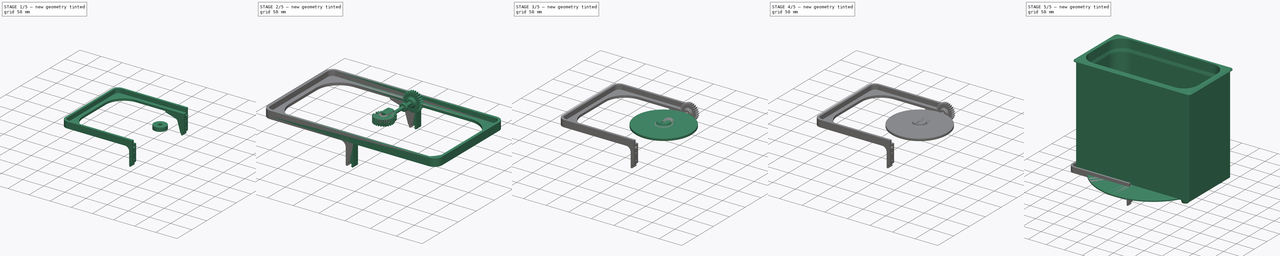
[diagram: build sequence overview — one tinted view per stage of 5, left to right]
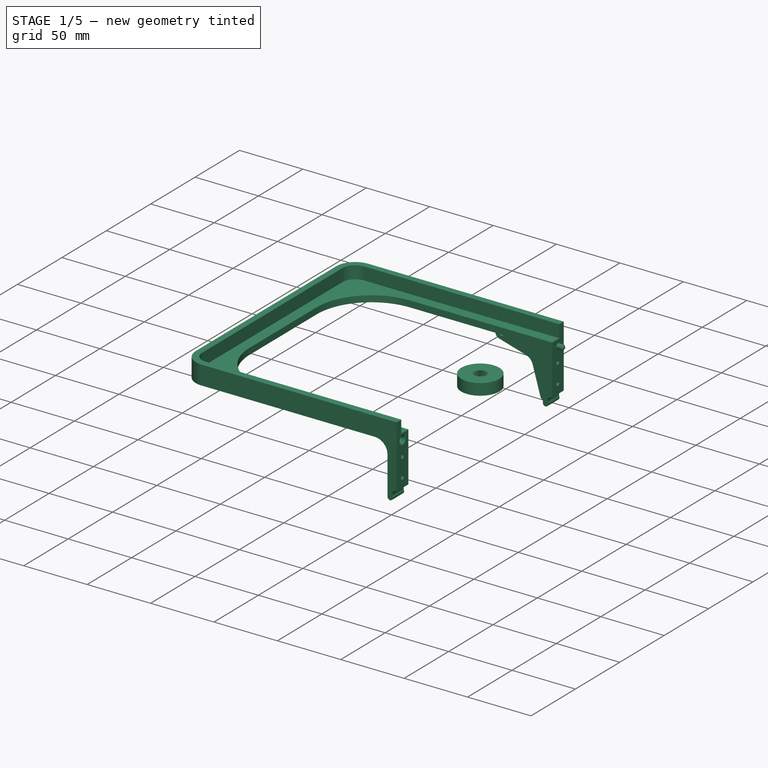
[diagram: stage 1 of 5 — iso view after this stage's code; geometry added in this stage tinted green]
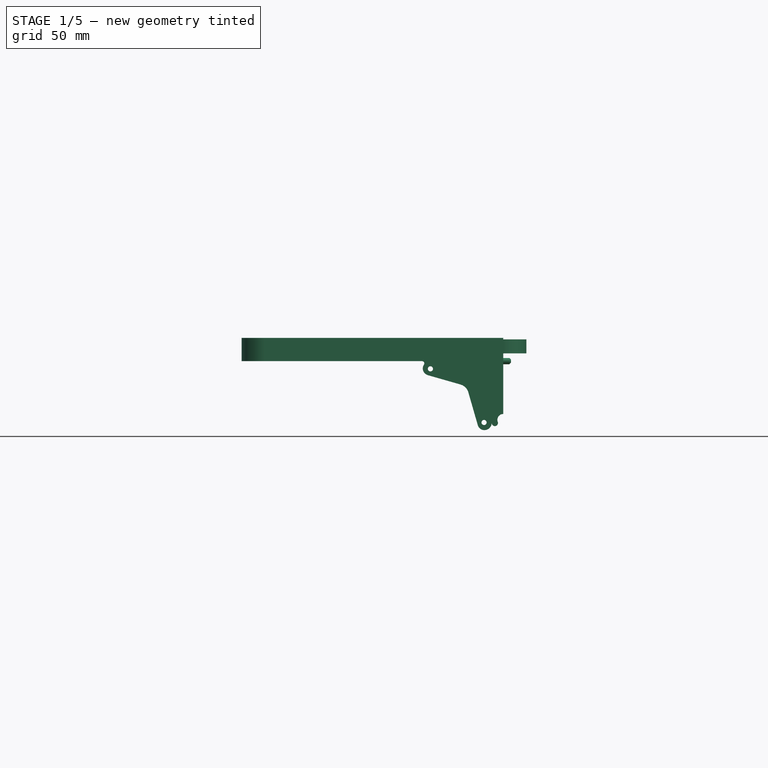
[diagram: stage 1 of 5 — front view after this stage's code; geometry added in this stage tinted green]
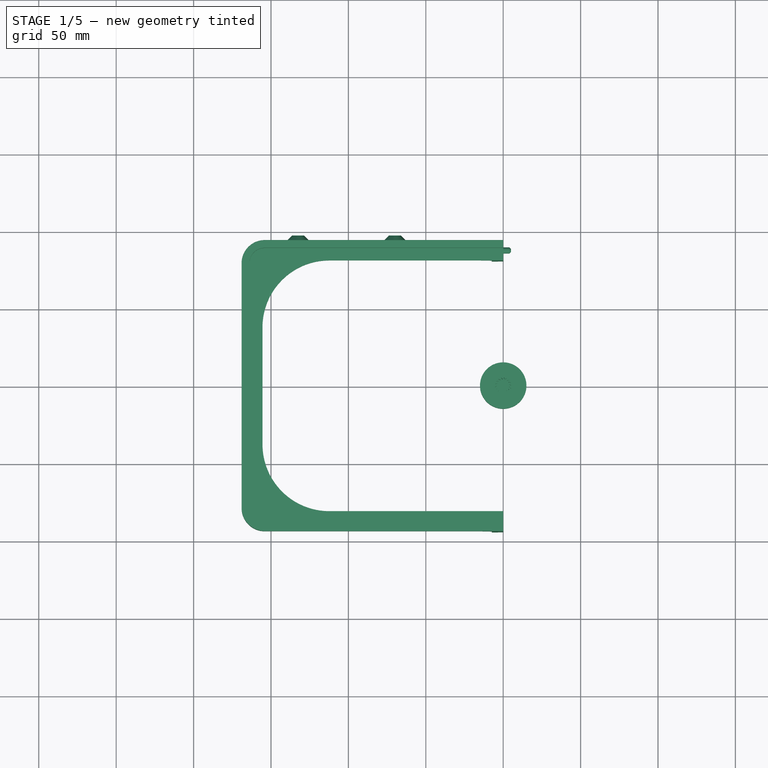
[diagram: stage 1 of 5 — top view after this stage's code; geometry added in this stage tinted green]
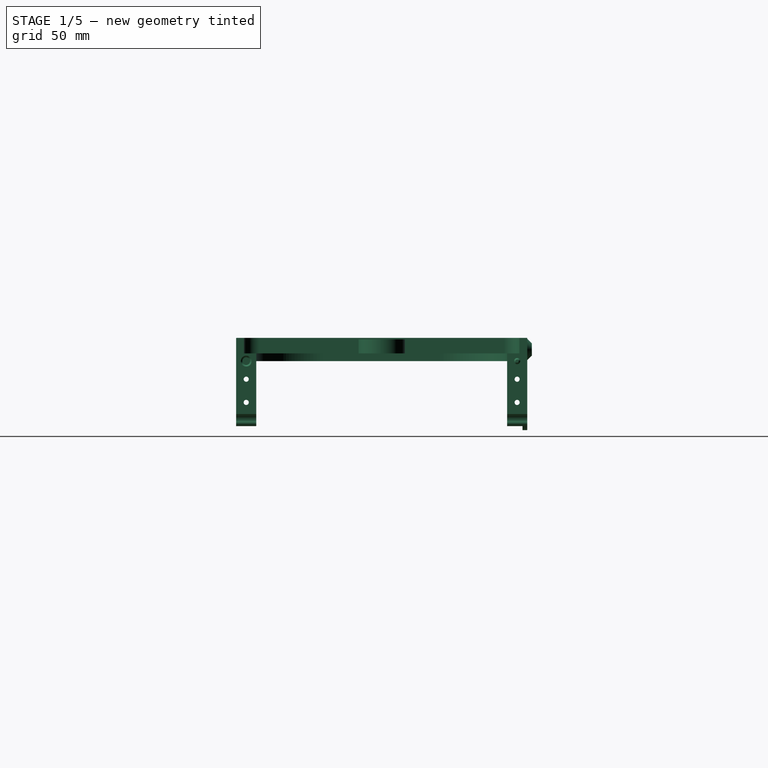
[diagram: stage 1 of 5 — right view after this stage's code; geometry added in this stage tinted green]
FCSTD DOCUMENT  (FreeCAD 0.21R38947 (Git))
Label: assembly-ultrasonic-cleaner-exploded
License: All rights reserved
LicenseURL: http://en.wikipedia.org/wiki/All_rights_reserved
objects: Part::FeaturePython×112, Sketcher::SketchObject×77, PartDesign::Pocket×41, PartDesign::Pad×38, App::FeaturePython×28, PartDesign::Fillet×20, PartDesign::Chamfer×19, PartDesign::Body×14, Part::Plane×10, PartDesign::Draft×7, PartDesign::Mirrored×6, PartDesign::Revolution×5, Part::Part2DObjectPython×4, PartDesign::ShapeBinder×2, PartDesign::SubShapeBinder×2, App::Link×2, PartDesign::SubtractiveLoft×1, PartDesign::AdditiveLoft×1, PartDesign::MultiTransform×1, PartDesign::PolarPattern×1
note: 704 computed .brp shape members not serialized (recipe doc carries the construction recipe); baked Part::Feature solids carry a one-line shape summary decoded from their .brp
EXTERNAL_REF file=screws/6mm-M3.FCStd obj=Assembly

FEATURE [PartDesign::Body] Body
  AutoGroupSolids = false
  ClaimAllChildren = false
  ExportMode = 0
  Group = -> [Sketch,Pad,Sketch001,Pad001,Fillet,Sketch002,Pad002,Draft,Fillet001,Sketch003,Pocket,Sketch004,CopySketch004,SubtractiveLoft,Pocket001,Fillet002,Fillet003,Sketch006,AdditiveLoft,Sketch008,Pocket002,MultiTransform,Mirrored,Mirrored001,Fillet004,Fillet005]
  InvalidShape = false
  Origin = -> Origin
  SingleSolid = true
  Tip = -> Fillet005
  TreeRank = 0
  ValidateShape = false
  _ExportChildren = -> [Pad,Pad001,Fillet,Pad002,Draft,Fillet001,Pocket,Sketch004,SubtractiveLoft,Pocket001,Fillet002,Fillet003,AdditiveLoft,Pocket002,MultiTransform,Fillet004,Fillet005]
  _GroupVersion = 1
FEATURE [Sketcher::SketchObject] Sketch018
  ArcFitTolerance = 0
  AttachmentSupport = -> [XY_Plane001]
  ExternalBSplineMaxDegree = 0
  ExternalBSplineTolerance = 0
  FullyConstrained = false
  InternalTolerance = 1e-06
  InvalidShape = false
  MakeInternals = false
  MapMode = 5
  Support = -> [XY_Plane001]
  TreeRank = 0
  ValidateShape = false
  sketch-geometry (16):
    g0: LineSegment StartX=-154 StartY=89 StartZ=0 EndX=154 EndY=89 EndZ=0
    g1: LineSegment StartX=164 StartY=79 StartZ=0 EndX=164 EndY=-79 EndZ=0
    g2: LineSegment StartX=154 StartY=-89 StartZ=0 EndX=-154 EndY=-89 EndZ=0
    g3: LineSegment StartX=-164 StartY=-79 StartZ=0 EndX=-164 EndY=79 EndZ=0
    g4: ArcOfCircle CenterX=-154 CenterY=79 CenterZ=0 NormalX=0 NormalY=0 NormalZ=1 AngleXU=0 Radius=10 StartAngle=1.5708 EndAngle=3.14159
    g5: ArcOfCircle CenterX=154 CenterY=79 CenterZ=0 NormalX=0 NormalY=0 NormalZ=1 AngleXU=0 Radius=10 StartAngle=-9e-16 EndAngle=1.5708
    g6: ArcOfCircle CenterX=154 CenterY=-79 CenterZ=0 NormalX=0 NormalY=0 NormalZ=1 AngleXU=0 Radius=10 StartAngle=4.71239 EndAngle=6.28319
    g7: ArcOfCircle CenterX=-154 CenterY=-79 CenterZ=0 NormalX=0 NormalY=0 NormalZ=1 AngleXU=0 Radius=10 StartAngle=3.14159 EndAngle=4.71239
    g8: LineSegment StartX=-154 StartY=94 StartZ=0 EndX=154 EndY=94 EndZ=0
    g9: LineSegment StartX=169 StartY=79 StartZ=0 EndX=169 EndY=-79 EndZ=0
    g10: LineSegment StartX=154 StartY=-94 StartZ=0 EndX=-154 EndY=-94 EndZ=0
    g11: LineSegment StartX=-169 StartY=-79 StartZ=0 EndX=-169 EndY=79 EndZ=0
    g12: ArcOfCircle CenterX=-154 CenterY=79 CenterZ=0 NormalX=0 NormalY=0 NormalZ=1 AngleXU=0 Radius=15 StartAngle=1.5708 EndAngle=3.14159
    g13: ArcOfCircle CenterX=154 CenterY=79 CenterZ=0 NormalX=0 NormalY=0 NormalZ=1 AngleXU=0 Radius=15 StartAngle=1e-16 EndAngle=1.5708
    g14: ArcOfCircle CenterX=154 CenterY=-79 CenterZ=0 NormalX=0 NormalY=0 NormalZ=1 AngleXU=0 Radius=15 StartAngle=4.71239 EndAngle=6.28319
    g15: ArcOfCircle CenterX=-154 CenterY=-79 CenterZ=0 NormalX=0 NormalY=0 NormalZ=1 AngleXU=0 Radius=15 StartAngle=3.14159 EndAngle=4.71239
  constraints (35):
    c: Tangent(g3,g4) = 1.5708
    c: Tangent(g0,g4) = 1.5708
    c: Tangent(g0,g5) = 1.5708
    c: Tangent(g1,g5) = 1.5708
    c: Tangent(g1,g6) = 1.5708
    c: Tangent(g2,g6) = 1.5708
    c: Tangent(g2,g7) = 1.5708
    c: Tangent(g3,g7) = 1.5708
    c: Equal(g5,g6)
    c: Equal(g6,g7)
    c: Equal(g7,g4)
    c: Symmetric(g3,g1,g-2)
    c: Symmetric(g3,g1,g-2)
    c: Symmetric(g3,g3,g-1)
    c: DistanceX(g3,g1) = 328
    c: DistanceY(g2,g0) = 178
    c: Radius(g5) = 10
    c: Tangent(g11,g12) = 1.5708
    c: Tangent(g8,g12) = 1.5708
    c: Tangent(g8,g13) = 1.5708
    c: Tangent(g9,g13) = 1.5708
    c: Tangent(g9,g14) = 1.5708
    c: Tangent(g10,g14) = 1.5708
    c: Tangent(g10,g15) = 1.5708
    c: Tangent(g11,g15) = 1.5708
    c: Horizontal(g8)
    c: Horizontal(g10)
    c: Vertical(g9)
    c: Vertical(g11)
    c: DistanceX(g11,g3) = 5
    c: DistanceY(g0,g8) = 5
    c: Equal(g14,g13)
    c: Equal(g13,g12)
    c: Coincident(g15,g7)
    c: Coincident(g13,g5)
FEATURE [PartDesign::Pad] Pad007
  AddSubType = 0
  AutoTaperInnerAngle = true
  CheckUpToFaceLimits = true
  ClaimChildren = false
  Direction = (1,1,1)
  Fit = 0
  FitJoin = 0
  InnerFit = 0
  InnerFitJoin = 0
  InvalidShape = false
  Length = 10
  Length2 = 100
  NewSolid = false
  Profile = -> Sketch018
  Suppress = false
  TaperInnerAngle = 0
  TaperInnerAngleRev = 0
  TreeRank = 0
  Type = 0
  ValidateShape = true
  _ProfileBasedVersion = 0
FEATURE [Sketcher::SketchObject] Sketch019
  ArcFitTolerance = 0
  AttachmentSupport = -> [XY_Plane001]
  ExternalBSplineMaxDegree = 0
  ExternalBSplineTolerance = 0
  FullyConstrained = false
  InternalTolerance = 1e-06
  InvalidShape = false
  MakeInternals = false
  MapMode = 5
  Support = -> [XY_Plane001]
  TreeRank = 0
  ValidateShape = false
  sketch-geometry (32):
    g0: LineSegment [constr] StartX=-154 StartY=89 StartZ=0 EndX=154 EndY=89 EndZ=0
    g1: LineSegment [constr] StartX=164 StartY=79 StartZ=0 EndX=164 EndY=-79 EndZ=0
    g2: LineSegment [constr] StartX=154 StartY=-89 StartZ=0 EndX=-154 EndY=-89 EndZ=0
    g3: LineSegment [constr] StartX=-164 StartY=-79 StartZ=0 EndX=-164 EndY=79 EndZ=0
    g4: ArcOfCircle [constr] CenterX=-154 CenterY=79 CenterZ=0 NormalX=0 NormalY=0 NormalZ=1 AngleXU=0 Radius=10 StartAngle=1.5708 EndAngle=3.14159
    g5: ArcOfCircle [constr] CenterX=154 CenterY=79 CenterZ=0 NormalX=0 NormalY=0 NormalZ=1 AngleXU=0 Radius=10 StartAngle=-9e-16 EndAngle=1.5708
    g6: ArcOfCircle [constr] CenterX=154 CenterY=-79 CenterZ=0 NormalX=0 NormalY=0 NormalZ=1 AngleXU=0 Radius=10 StartAngle=4.71239 EndAngle=6.28319
    g7: ArcOfCircle [constr] CenterX=-154 CenterY=-79 CenterZ=0 NormalX=0 NormalY=0 NormalZ=1 AngleXU=0 Radius=10 StartAngle=3.14159 EndAngle=4.71239
    g8: LineSegment StartX=-154 StartY=94 StartZ=0 EndX=154 EndY=94 EndZ=0
    g9: LineSegment StartX=169 StartY=79 StartZ=0 EndX=169 EndY=-79 EndZ=0
    g10: LineSegment StartX=154 StartY=-94 StartZ=0 EndX=-154 EndY=-94 EndZ=0
    g11: LineSegment StartX=-169 StartY=-79 StartZ=0 EndX=-169 EndY=79 EndZ=0
    g12: ArcOfCircle CenterX=-154 CenterY=79 CenterZ=0 NormalX=0 NormalY=0 NormalZ=1 AngleXU=0 Radius=15 StartAngle=1.5708 EndAngle=3.14159
    g13: ArcOfCircle CenterX=154 CenterY=79 CenterZ=0 NormalX=0 NormalY=0 NormalZ=1 AngleXU=0 Radius=15 StartAngle=1e-16 EndAngle=1.5708
    g14: ArcOfCircle CenterX=154 CenterY=-79 CenterZ=0 NormalX=0 NormalY=0 NormalZ=1 AngleXU=0 Radius=15 StartAngle=4.71239 EndAngle=6.28319
    g15: ArcOfCircle CenterX=-154 CenterY=-79 CenterZ=0 NormalX=0 NormalY=0 NormalZ=1 AngleXU=0 Radius=15 StartAngle=3.14159 EndAngle=4.71239
    g16: LineSegment [constr] StartX=-150.5 StartY=37.81 StartZ=0 EndX=-150.5 EndY=-37.81 EndZ=0
    g17: LineSegment [constr] StartX=-112.31 StartY=-76 StartZ=0 EndX=112.31 EndY=-76 EndZ=0
    g18: LineSegment [constr] StartX=150.5 StartY=-37.81 StartZ=0 EndX=150.5 EndY=37.81 EndZ=0
    g19: LineSegment [constr] StartX=112.31 StartY=76 StartZ=0 EndX=-112.31 EndY=76 EndZ=0
    g20: ArcOfCircle [constr] CenterX=112.31 CenterY=37.81 CenterZ=0 NormalX=0 NormalY=0 NormalZ=1 AngleXU=0 Radius=38.19 StartAngle=0 EndAngle=1.5708
    g21: ArcOfCircle [constr] CenterX=112.31 CenterY=-37.81 CenterZ=0 NormalX=0 NormalY=0 NormalZ=1 AngleXU=0 Radius=38.19 StartAngle=4.71239 EndAngle=6.28319
    g22: ArcOfCircle [constr] CenterX=-112.31 CenterY=-37.81 CenterZ=0 NormalX=0 NormalY=0 NormalZ=1 AngleXU=0 Radius=38.19 StartAngle=3.14159 EndAngle=4.71239
    g23: ArcOfCircle [constr] CenterX=-112.31 CenterY=37.81 CenterZ=0 NormalX=0 NormalY=0 NormalZ=1 AngleXU=0 Radius=38.19 StartAngle=1.5708 EndAngle=3.14159
    g24: LineSegment StartX=112.31 StartY=81 StartZ=0 EndX=-112.31 EndY=81 EndZ=0
    g25: ArcOfCircle CenterX=-112.31 CenterY=37.81 CenterZ=0 NormalX=0 NormalY=0 NormalZ=1 AngleXU=0 Radius=43.19 StartAngle=1.5708 EndAngle=3.14159
    g26: LineSegment StartX=-155.5 StartY=37.81 StartZ=0 EndX=-155.5 EndY=-37.81 EndZ=0
    g27: ArcOfCircle CenterX=-112.31 CenterY=-37.81 CenterZ=0 NormalX=0 NormalY=0 NormalZ=1 AngleXU=0 Radius=43.19 StartAngle=3.14159 EndAngle=4.71239
    g28: LineSegment StartX=-112.31 StartY=-81 StartZ=0 EndX=112.31 EndY=-81 EndZ=0
    g29: ArcOfCircle CenterX=112.31 CenterY=-37.81 CenterZ=0 NormalX=0 NormalY=0 NormalZ=1 AngleXU=0 Radius=43.19 StartAngle=4.71239 EndAngle=6.28319
    g30: LineSegment StartX=155.5 StartY=-37.81 StartZ=0 EndX=155.5 EndY=37.81 EndZ=0
    g31: ArcOfCircle CenterX=112.31 CenterY=37.81 CenterZ=0 NormalX=0 NormalY=0 NormalZ=1 AngleXU=0 Radius=43.19 StartAngle=0 EndAngle=1.5708
  constraints (73):
    c: Tangent(g3,g4) = 1.5708
    c: Tangent(g0,g4) = 1.5708
    c: Tangent(g0,g5) = 1.5708
    c: Tangent(g1,g5) = 1.5708
    c: Tangent(g1,g6) = 1.5708
    c: Tangent(g2,g6) = 1.5708
    c: Tangent(g2,g7) = 1.5708
    c: Tangent(g3,g7) = 1.5708
    c: Equal(g5,g6)
    c: Equal(g6,g7)
    c: Equal(g7,g4)
    c: Symmetric(g3,g1,g-2)
    c: Symmetric(g3,g1,g-2)
    c: Symmetric(g3,g3,g-1)
    c: DistanceX(g3,g1) = 328
    c: DistanceY(g2,g0) = 178
    c: Radius(g5) = 10
    c: Tangent(g11,g12) = 1.5708
    c: Tangent(g8,g12) = 1.5708
    c: Tangent(g8,g13) = 1.5708
    c: Tangent(g9,g13) = 1.5708
    c: Tangent(g9,g14) = 1.5708
    c: Tangent(g10,g14) = 1.5708
    c: Tangent(g10,g15) = 1.5708
    c: Tangent(g11,g15) = 1.5708
    c: Horizontal(g8)
    c: Horizontal(g10)
    c: Vertical(g9)
    c: Vertical(g11)
    c: DistanceX(g11,g3) = 5
    c: DistanceY(g0,g8) = 5
    c: Equal(g14,g13)
    c: Equal(g13,g12)
    c: Coincident(g15,g7)
    c: Coincident(g13,g5)
    c: Vertical(g16)
    c: Horizontal(g17)
    c: Tangent(g19,g20) = -1.5708
    c: Tangent(g18,g20) = -1.5708
    c: Tangent(g18,g21) = -1.5708
    c: Tangent(g17,g21) = -1.5708
    c: Tangent(g17,g22) = -1.5708
    c: Tangent(g16,g22) = -1.5708
    c: Tangent(g16,g23) = -1.5708
    c: Tangent(g19,g23) = -1.5708
    c: DistanceX(g16,g18) = 301
    c: DistanceY(g17,g19) = 152
    c: Equal(g23,g20)
    c: Equal(g20,g21)
    c: Equal(g21,g22)
    c: Symmetric(g17,g19,g-1)
    c: Symmetric(g16,g18,g-2)
    c: Radius(g23) = 38.19
    c: Vertical(g26)
    c: Horizontal(g28)
    c: Tangent(g24,g31) = -1.5708
    c: Tangent(g30,g31) = -1.5708
    c: Tangent(g30,g29) = -1.5708
    c: Tangent(g28,g29) = -1.5708
    c: Tangent(g28,g27) = -1.5708
    c: Tangent(g26,g27) = -1.5708
    c: Tangent(g26,g25) = -1.5708
    c: Tangent(g24,g25) = -1.5708
    c: Vertical(g24,g19)
    c: Horizontal(g30,g18)
    c: Vertical(g24,g19)
    c: Horizontal(g24)
    c: Horizontal(g18,g29)
    c: Vertical(g28,g17)
    c: Vertical(g30)
    c: Vertical(g27,g17)
    c: Horizontal(g26,g16)
    c: DistanceY(g19,g24) = 5
FEATURE [PartDesign::Pad] Pad006
  AddSubType = 0
  AutoTaperInnerAngle = true
  BaseFeature = -> Pad007
  CheckUpToFaceLimits = true
  ClaimChildren = false
  Direction = (0,0,1)
  Fit = 0
  FitJoin = 0
  InnerFit = 0
  InnerFitJoin = 0
  InvalidShape = false
  Length = 5
  Length2 = 100
  NewSolid = false
  Profile = -> Sketch019
  Reversed = true
  Suppress = false
  TaperInnerAngle = 0
  TaperInnerAngleRev = 0
  TreeRank = 0
  Type = 0
  ValidateShape = true
  _ProfileBasedVersion = 0
FEATURE [Sketcher::SketchObject] Sketch017
  ArcFitTolerance = 0
  AttachmentSupport = -> [Pad006]
  ExternalBSplineMaxDegree = 0
  ExternalBSplineTolerance = 0
  ExternalGeometry = -> [Pad006]
  FullyConstrained = true
  InternalTolerance = 1e-06
  InvalidShape = false
  MakeInternals = false
  MapMode = 5
  Placement = pos=(0,94,0) rot=(0,0.707107,0.707107;3.14159rad)
  Support = -> [Pad006]
  TreeRank = 0
  ValidateShape = false
  sketch-geometry (6):
    g0: LineSegment StartX=-7.36667 StartY=-5 StartZ=0 EndX=7.36667 EndY=-5 EndZ=0
    g1: LineSegment StartX=-7.36667 StartY=-5 StartZ=0 EndX=-7.36667 EndY=-45 EndZ=0
    g2: LineSegment StartX=7.36667 StartY=-45 StartZ=0 EndX=7.36667 EndY=-5 EndZ=0
    g3: ArcOfCircle CenterX=5.36667 CenterY=-45 CenterZ=0 NormalX=0 NormalY=0 NormalZ=1 AngleXU=0 Radius=2 StartAngle=2.77438 EndAngle=6.28319
    g4: ArcOfCircle CenterX=-1e-16 CenterY=-42.9357 CenterZ=0 NormalX=0 NormalY=0 NormalZ=1 AngleXU=0 Radius=3.75 StartAngle=5.91598 EndAngle=9.79199
    g5: ArcOfCircle CenterX=-5.36667 CenterY=-45 CenterZ=0 NormalX=0 NormalY=0 NormalZ=1 AngleXU=0 Radius=2 StartAngle=3.14159 EndAngle=6.65039
  constraints (15):
    c: Symmetric(g0,g0,g-2)
    c: Coincident(g1,g0)
    c: Vertical(g1)
    c: Coincident(g2,g0)
    c: PointOnObject(g0,g-4)
    c: Symmetric(g2,g1,g-2)
    c: Tangent(g3,g2) = -1.5708
    c: Coincident(g5,g4)
    c: Tangent(g1,g5) = -1.5708
    c: Symmetric(g3,g4,g-2)
    c: Tangent(g4,g3) = 1.5708
    c: Diameter(g4) = 7.5
    c: Radius(g3) = 2
    c: DistanceX(g4,g3) = 7
    c: DistanceY(g1,g1) = 40
FEATURE [PartDesign::Pad] Pad005
  AddSubType = 0
  AutoTaperInnerAngle = true
  BaseFeature = -> Pad006
  CheckUpToFaceLimits = true
  ClaimChildren = false
  Direction = (0,1,-2e-16)
  Fit = 0
  FitJoin = 0
  InnerFit = 0
  InnerFitJoin = 0
  InvalidShape = false
  Length = 10
  Length2 = 100
  NewSolid = false
  Profile = -> Sketch017
  Reversed = true
  Suppress = false
  TaperInnerAngle = 0
  TaperInnerAngleRev = 0
  TreeRank = 0
  Type = 3
  UpToFace = -> Pad006 [Face27]
  ValidateShape = true
  _ProfileBasedVersion = 0
FEATURE [PartDesign::Mirrored] Mirrored003
  AddSubType = 0
  BaseFeature = -> Pad005
  CopyShape = true
  InvalidShape = false
  MirrorPlane = -> XZ_Plane001
  NewSolid = false
  OriginalSubs = -> [Pad005]
  Originals = -> [Pad005]
  ParallelTransform = true
  SubTransform = true
  Suppress = false
  TreeRank = 0
  ValidateShape = true
  _Version = 0
FEATURE [PartDesign::Fillet] Fillet006
  AddSubType = 0
  Base = -> Mirrored003 [Edge104,Edge36,Edge42,Edge100]
  BaseFeature = -> Mirrored003
  InvalidShape = false
  NewSolid = false
  Radius = 10
  SupportTransform = true
  Suppress = false
  TreeRank = 0
  UseAllEdges = false
  ValidateShape = true
FEATURE [Sketcher::SketchObject] Sketch016
  ArcFitTolerance = 0
  AttachmentSupport = -> [Fillet006]
  ExternalBSplineMaxDegree = 0
  ExternalBSplineTolerance = 0
  ExternalGeometry = -> [Fillet006]
  FullyConstrained = true
  InternalTolerance = 1e-06
  InvalidShape = false
  MakeInternals = false
  MapMode = 5
  Placement = pos=(0,94,-3.37e-14) rot=(0,0.707107,0.707107;3.14159rad)
  Support = -> [Fillet006]
  TreeRank = 0
  ValidateShape = false
  sketch-geometry (4):
    g0: LineSegment StartX=-5.36666 StartY=-47 StartZ=0 EndX=5.36667 EndY=-47 EndZ=0
    g1: ArcOfCircle CenterX=-5.36667 CenterY=-45 CenterZ=0 NormalX=0 NormalY=0 NormalZ=1 AngleXU=0 Radius=2 StartAngle=4.71239 EndAngle=6.65039
    g2: ArcOfCircle CenterX=5.36667 CenterY=-45 CenterZ=0 NormalX=0 NormalY=0 NormalZ=1 AngleXU=0 Radius=2 StartAngle=2.77438 EndAngle=4.71239
    g3: ArcOfCircle CenterX=7e-16 CenterY=-42.9357 CenterZ=0 NormalX=0 NormalY=0 NormalZ=1 AngleXU=0 Radius=3.75 StartAngle=5.91598 EndAngle=9.79199
  constraints (11):
    c: Tangent(g0,g-3)
    c: Coincident(g1,g0)
    c: Coincident(g1,g-3)
    c: Coincident(g1,g-4)
    c: Coincident(g2,g0)
    c: Coincident(g2,g-5)
    c: Coincident(g2,g-5)
    c: Tangent(g0,g-5)
    c: Coincident(g3,g2)
    c: Coincident(g3,g1)
    c: Coincident(g3,g-4)
FEATURE [PartDesign::Pad] Pad003
  AddSubType = 0
  AutoTaperInnerAngle = true
  BaseFeature = -> Fillet006
  CheckUpToFaceLimits = true
  ClaimChildren = false
  Direction = (0,1,-4e-16)
  Fit = 0
  FitJoin = 0
  InnerFit = 0
  InnerFitJoin = 0
  InvalidShape = false
  Length = 1.5
  Length2 = 100
  NewSolid = false
  Profile = -> Sketch016
  Reversed = true
  Suppress = false
  TaperInnerAngle = 0
  TaperInnerAngleRev = 0
  TreeRank = 0
  Type = 0
  ValidateShape = true
  _ProfileBasedVersion = 0
FEATURE [PartDesign::Mirrored] Mirrored002
  AddSubType = 0
  BaseFeature = -> Pad003
  CopyShape = true
  InvalidShape = false
  MirrorPlane = -> XZ_Plane001
  NewSolid = false
  OriginalSubs = -> [Pad003]
  Originals = -> [Pad003]
  ParallelTransform = true
  SubTransform = true
  Suppress = false
  TreeRank = 0
  ValidateShape = true
  _Version = 0
FEATURE [PartDesign::Chamfer] Chamfer002
  AddSubType = 0
  Angle = 45
  Base = -> Mirrored002 [Edge114]
  BaseFeature = -> Mirrored002
  ChamferType = 0
  FlipDirection = false
  InvalidShape = false
  NewSolid = false
  Size = 0.1
  Size2 = 1
  SupportTransform = true
  Suppress = false
  TreeRank = 0
  UseAllEdges = false
  ValidateShape = true
FEATURE [Sketcher::SketchObject] Sketch015
  ArcFitTolerance = 0
  AttachmentSupport = -> [Chamfer002]
  ExternalBSplineMaxDegree = 0
  ExternalBSplineTolerance = 0
  FullyConstrained = false
  InternalTolerance = 1e-06
  InvalidShape = false
  MakeInternals = false
  MapMode = 5
  Placement = pos=(0,0,10) rot=(0,0,1;0rad)
  Support = -> [Chamfer002]
  TreeRank = 0
  ValidateShape = false
  sketch-geometry (4):
    g0: LineSegment StartX=0 StartY=119.45 StartZ=0 EndX=0 EndY=-119.45 EndZ=0
    g1: LineSegment StartX=0 StartY=119.45 StartZ=0 EndX=200.233 EndY=119.45 EndZ=0
    g2: LineSegment StartX=200.233 StartY=119.45 StartZ=0 EndX=200.233 EndY=-119.45 EndZ=0
    g3: LineSegment StartX=200.233 StartY=-119.45 StartZ=0 EndX=0 EndY=-119.45 EndZ=0
  constraints (9):
    c: PointOnObject(g0,g-2)
    c: Symmetric(g0,g0,g-1)
    c: Coincident(g0,g1)
    c: Horizontal(g1)
    c: Coincident(g1,g2)
    c: Vertical(g2)
    c: Coincident(g2,g3)
    c: Coincident(g3,g0)
    c: Horizontal(g3)
FEATURE [PartDesign::Pocket] Pocket010
  AddSubType = 1
  AutoTaperInnerAngle = true
  BaseFeature = -> Chamfer002
  CheckUpToFaceLimits = true
  ClaimChildren = false
  Direction = (0,0,-1)
  Fit = 0
  FitJoin = 0
  InnerFit = 0
  InnerFitJoin = 0
  InvalidShape = false
  Length = 5
  Length2 = 100
  NewSolid = false
  Profile = -> Sketch015
  Suppress = false
  TaperInnerAngle = 0
  TaperInnerAngleRev = 0
  TreeRank = 0
  Type = 1
  ValidateShape = true
  _ProfileBasedVersion = 0
  _Version = 0
FEATURE [Sketcher::SketchObject] Sketch014
  ArcFitTolerance = 0
  AttachmentSupport = -> [Pocket010]
  ExternalBSplineMaxDegree = 0
  ExternalBSplineTolerance = 0
  FullyConstrained = true
  InternalTolerance = 1e-06
  InvalidShape = false
  MakeInternals = false
  MapMode = 5
  Placement = pos=(0,0,0) rot=(0.57735,0.57735,0.57735;2.0944rad)
  Support = -> [Pocket010]
  TreeRank = 0
  ValidateShape = false
  sketch-geometry (1):
    g0: Circle CenterX=87.5 CenterY=-5 CenterZ=0 NormalX=0 NormalY=0 NormalZ=1 AngleXU=0 Radius=2
  constraints (3):
    c: Diameter(g0) = 4
    c: DistanceY(g0,g-1) = 5
    c: DistanceX(g-1,g0) = 87.5
FEATURE [PartDesign::Pad] Pad004
  AddSubType = 0
  AutoTaperInnerAngle = true
  BaseFeature = -> Pocket010
  CheckUpToFaceLimits = true
  ClaimChildren = false
  Direction = (1,0,0)
  Fit = 0
  FitJoin = 0
  InnerFit = 0
  InnerFitJoin = 0
  InvalidShape = false
  Length = 5
  Length2 = 100
  NewSolid = false
  Profile = -> Sketch014
  Suppress = false
  TaperInnerAngle = 0
  TaperInnerAngleRev = 0
  TreeRank = 0
  Type = 0
  ValidateShape = true
  _ProfileBasedVersion = 0
FEATURE [Sketcher::SketchObject] Sketch013
  ArcFitTolerance = 0
  AttachmentSupport = -> [Pad004]
  ExternalBSplineMaxDegree = 0
  ExternalBSplineTolerance = 0
  FullyConstrained = true
  InternalTolerance = 1e-06
  InvalidShape = false
  MakeInternals = false
  MapMode = 5
  Placement = pos=(0,0,0) rot=(0.57735,0.57735,0.57735;2.0944rad)
  Support = -> [Pad004]
  TreeRank = 0
  ValidateShape = false
  sketch-geometry (1):
    g0: Circle CenterX=-87.5 CenterY=-5 CenterZ=0 NormalX=0 NormalY=0 NormalZ=1 AngleXU=0 Radius=2.5
  constraints (3):
    c: Diameter(g0) = 5
    c: DistanceY(g0,g-1) = 5
    c: DistanceX(g0,g-1) = 87.5
FEATURE [PartDesign::Pocket] Pocket009
  AddSubType = 1
  AutoTaperInnerAngle = true
  BaseFeature = -> Pad004
  CheckUpToFaceLimits = true
  ClaimChildren = false
  Direction = (-1,0,0)
  Fit = 0
  FitJoin = 0
  InnerFit = 0
  InnerFitJoin = 0
  InvalidShape = false
  Length = 5.5
  Length2 = 100
  NewSolid = false
  Profile = -> Sketch013
  Suppress = false
  TaperInnerAngle = 0
  TaperInnerAngleRev = 0
  TreeRank = 0
  Type = 0
  ValidateShape = true
  _ProfileBasedVersion = 0
  _Version = 0
FEATURE [PartDesign::Chamfer] Chamfer003
  AddSubType = 0
  Angle = 45
  Base = -> Pocket009 [Edge84,Edge115]
  BaseFeature = -> Pocket009
  ChamferType = 0
  FlipDirection = false
  InvalidShape = false
  NewSolid = false
  Size = 1
  Size2 = 1
  SupportTransform = true
  Suppress = false
  TreeRank = 0
  UseAllEdges = false
  ValidateShape = true
FEATURE [Sketcher::SketchObject] Sketch012
  ArcFitTolerance = 0
  AttachmentSupport = -> [Chamfer003]
  ExternalBSplineMaxDegree = 0
  ExternalBSplineTolerance = 0
  FullyConstrained = true
  InternalTolerance = 1e-06
  InvalidShape = false
  MakeInternals = false
  MapMode = 5
  Placement = pos=(0,0,0) rot=(0.57735,0.57735,0.57735;2.0944rad)
  Support = -> [Chamfer003]
  TreeRank = 0
  ValidateShape = false
  sketch-geometry (4):
    g0: Circle CenterX=87.5 CenterY=-16.69 CenterZ=0 NormalX=0 NormalY=0 NormalZ=1 AngleXU=0 Radius=1.65
    g1: Circle CenterX=87.5 CenterY=-31.69 CenterZ=0 NormalX=0 NormalY=0 NormalZ=1 AngleXU=0 Radius=1.65
    g2: Circle CenterX=-87.5 CenterY=-16.69 CenterZ=0 NormalX=0 NormalY=0 NormalZ=1 AngleXU=0 Radius=1.65
    g3: Circle CenterX=-87.5 CenterY=-31.69 CenterZ=0 NormalX=0 NormalY=0 NormalZ=1 AngleXU=0 Radius=1.65
  constraints (10):
    c: Equal(g1,g0)
    c: Equal(g2,g3)
    c: Equal(g3,g0)
    c: Symmetric(g2,g0,g-2)
    c: Symmetric(g3,g1,g-2)
    c: Diameter(g0) = 3.3
    c: DistanceY(g0,g-1) = 16.69
    c: DistanceY(g1,g-1) = 31.69
    c: DistanceX(g-1,g0) = 87.5
    c: DistanceX(g-1,g1) = 87.5
FEATURE [PartDesign::Pocket] Pocket008
  AddSubType = 1
  AutoTaperInnerAngle = true
  BaseFeature = -> Chamfer003
  CheckUpToFaceLimits = true
  ClaimChildren = false
  Direction = (-1,0,0)
  Fit = 0
  FitJoin = 0
  InnerFit = 0
  InnerFitJoin = 0
  InvalidShape = false
  Length = 5
  Length2 = 100
  NewSolid = false
  Profile = -> Sketch012
  Suppress = false
  TaperInnerAngle = 0
  TaperInnerAngleRev = 0
  TreeRank = 0
  Type = 1
  ValidateShape = true
  _ProfileBasedVersion = 0
  _Version = 0
FEATURE [Sketcher::SketchObject] Sketch011
  ArcFitTolerance = 0
  AttachmentSupport = -> [Pocket008]
  ExternalBSplineMaxDegree = 0
  ExternalBSplineTolerance = 0
  FullyConstrained = true
  InternalTolerance = 1e-06
  InvalidShape = false
  MakeInternals = false
  MapMode = 5
  Placement = pos=(-7.36667,0,0) rot=(0.57735,-0.57735,-0.57735;2.0944rad)
  Support = -> [Pocket008]
  TreeRank = 0
  ValidateShape = false
  sketch-geometry (2):
    g0: Circle CenterX=-87.5 CenterY=-16.75 CenterZ=0 NormalX=0 NormalY=0 NormalZ=1 AngleXU=0 Radius=2
    g1: Circle CenterX=-87.5 CenterY=-31.75 CenterZ=0 NormalX=0 NormalY=0 NormalZ=1 AngleXU=0 Radius=2
  constraints (6):
    c: Equal(g1,g0)
    c: Diameter(g0) = 4
    c: DistanceY(g0,g-1) = 16.75
    c: DistanceX(g0,g-1) = 87.5
    c: Vertical(g1,g0)
    c: DistanceY(g1,g0) = 15
FEATURE [PartDesign::Pocket] Pocket003
  AddSubType = 1
  AutoTaperInnerAngle = true
  BaseFeature = -> Pocket008
  CheckUpToFaceLimits = true
  ClaimChildren = false
  Direction = (1,0,0)
  Fit = 0
  FitJoin = 0
  InnerFit = 0
  InnerFitJoin = 0
  InvalidShape = false
  Length = 6
  Length2 = 100
  NewSolid = false
  Profile = -> Sketch011
  Suppress = false
  TaperInnerAngle = 0
  TaperInnerAngleRev = 0
  TreeRank = 0
  Type = 0
  ValidateShape = true
  _ProfileBasedVersion = 0
  _Version = 0
FEATURE [PartDesign::Pocket] Pocket004
  AddSubType = 1
  AutoTaperInnerAngle = true
  BaseFeature = -> Pocket003
  CheckUpToFaceLimits = true
  ClaimChildren = false
  Direction = (1,0,0)
  Fit = 0
  FitJoin = 0
  InnerFit = 0
  InnerFitJoin = 0
  InvalidShape = false
  Length = 5
  Length2 = 100
  NewSolid = false
  Profile = -> Sketch011
  Reversed = true
  Suppress = false
  TaperInnerAngle = 0
  TaperInnerAngleRev = 0
  TreeRank = 0
  Type = 1
  ValidateShape = true
  _ProfileBasedVersion = 0
  _Version = 0
FEATURE [Sketcher::SketchObject] Sketch009
  ArcFitTolerance = 0
  AttachmentSupport = -> [Pocket004]
  ExternalBSplineMaxDegree = 0
  ExternalBSplineTolerance = 0
  FullyConstrained = true
  InternalTolerance = 1e-06
  InvalidShape = false
  MakeInternals = false
  MapMode = 5
  Placement = pos=(-7.36667,0,0) rot=(0.57735,-0.57735,-0.57735;2.0944rad)
  Support = -> [Pocket004]
  TreeRank = 0
  ValidateShape = false
  sketch-geometry (2):
    g0: Circle CenterX=87.5 CenterY=-16.69 CenterZ=0 NormalX=0 NormalY=0 NormalZ=1 AngleXU=0 Radius=3
    g1: Circle CenterX=87.5 CenterY=-31.69 CenterZ=0 NormalX=0 NormalY=0 NormalZ=1 AngleXU=0 Radius=3
  constraints (6):
    c: Equal(g0,g1)
    c: Diameter(g0) = 6
    c: DistanceX(g-1,g0) = 87.5
    c: DistanceY(g0,g-1) = 16.69
    c: DistanceY(g1,g-1) = 31.69
    c: Vertical(g1,g0)
FEATURE [PartDesign::Pocket] Pocket005
  AddSubType = 1
  AutoTaperInnerAngle = true
  BaseFeature = -> Pocket004
  CheckUpToFaceLimits = true
  ClaimChildren = false
  Direction = (1,0,0)
  Fit = 0
  FitJoin = 0
  InnerFit = 0
  InnerFitJoin = 0
  InvalidShape = false
  Length = 3
  Length2 = 100
  NewSolid = false
  Profile = -> Sketch009
  Suppress = false
  TaperInnerAngle = 0
  TaperInnerAngleRev = 0
  TreeRank = 0
  Type = 0
  ValidateShape = true
  _ProfileBasedVersion = 0
  _Version = 0
FEATURE [PartDesign::Pocket] Pocket006
  AddSubType = 1
  AutoTaperInnerAngle = true
  BaseFeature = -> Pocket005
  CheckUpToFaceLimits = true
  ClaimChildren = false
  Direction = (1,0,0)
  Fit = 0
  FitJoin = 0
  InnerFit = 0
  InnerFitJoin = 0
  InvalidShape = false
  Length = 5
  Length2 = 100
  NewSolid = false
  Profile = -> Sketch009
  Reversed = true
  Suppress = false
  TaperInnerAngle = 0
  TaperInnerAngleRev = 0
  TreeRank = 0
  Type = 1
  ValidateShape = true
  _ProfileBasedVersion = 0
  _Version = 0
FEATURE [PartDesign::Pocket] Pocket007
  AddSubType = 1
  AutoTaperInnerAngle = true
  BaseFeature = -> Pocket006
  CheckUpToFaceLimits = true
  ClaimChildren = false
  Direction = (0,1,0)
  Fit = 0
  FitJoin = 0
  InnerFit = 0
  InnerFitJoin = 0
  InvalidShape = false
  Length = 5
  Length2 = 100
  Midplane = true
  NewSolid = false
  Profile = -> Pocket006 [Face17]
  Suppress = false
  TaperInnerAngle = 0
  TaperInnerAngleRev = 0
  TreeRank = 0
  Type = 1
  ValidateShape = true
  _ProfileBasedVersion = 0
  _Version = 0
FEATURE [Sketcher::SketchObject] Sketch010
  ArcFitTolerance = 0
  AttachmentSupport = -> [Pocket007]
  ExternalBSplineMaxDegree = 0
  ExternalBSplineTolerance = 0
  ExternalGeometry = -> [Pocket007]
  FullyConstrained = true
  InternalTolerance = 1e-06
  InvalidShape = false
  MakeInternals = false
  MapMode = 5
  Placement = pos=(0,94,-3.37e-14) rot=(0,0.707107,0.707107;3.14159rad)
  Support = -> [Pocket007]
  TreeRank = 0
  ValidateShape = false
  sketch-geometry (9):
    g0: LineSegment StartX=7.36667 StartY=-15 StartZ=0 EndX=7.36667 EndY=-44.6482 EndZ=0
    g1: ArcOfCircle CenterX=17.3667 CenterY=-15 CenterZ=0 NormalX=0 NormalY=0 NormalZ=1 AngleXU=0 Radius=10 StartAngle=1.5708 EndAngle=3.14159
    g2: LineSegment StartX=17.3667 StartY=-5 StartZ=0 EndX=47.0149 EndY=-5 EndZ=0
    g3: ArcOfCircle CenterX=47.0149 CenterY=-10 CenterZ=0 NormalX=0 NormalY=0 NormalZ=1 AngleXU=0 Radius=5 StartAngle=5.49779 EndAngle=7.85398
    g4: ArcOfCircle CenterX=12.3667 CenterY=-44.6482 CenterZ=0 NormalX=0 NormalY=0 NormalZ=1 AngleXU=0 Radius=5 StartAngle=3.14159 EndAngle=5.49779
    g5: LineSegment StartX=50.5504 StartY=-13.5355 StartZ=0 EndX=15.9022 EndY=-48.1838 EndZ=0
    g6: LineSegment [constr] StartX=12.3667 StartY=-44.6482 StartZ=0 EndX=47.0149 EndY=-10 EndZ=0
    g7: Circle CenterX=47.0149 CenterY=-10 CenterZ=0 NormalX=0 NormalY=0 NormalZ=1 AngleXU=0 Radius=1.65
    g8: Circle CenterX=12.3667 CenterY=-44.6482 CenterZ=0 NormalX=0 NormalY=0 NormalZ=1 AngleXU=0 Radius=1.65
  constraints (20):
    c: Coincident(g0,g-4)
    c: Tangent(g1,g0) = -1.5708
    c: Coincident(g2,g1)
    c: Horizontal(g2)
    c: Coincident(g1,g-3)
    c: Tangent(g3,g2) = 1.5708
    c: Tangent(g5,g4) = 1.5708
    c: Tangent(g5,g3) = 1.5708
    c: Equal(g4,g3)
    c: Radius(g3) = 5
    c: Coincident(g6,g4)
    c: Coincident(g6,g3)
    c: Distance(g6) = 49
    c: Coincident(g7,g3)
    c: Coincident(g8,g4)
    c: Equal(g8,g7)
    c: Diameter(g7) = 3.3
    c: Tangent(g4,g0) = -1.5708
    c: Vertical(g0)
    c: Equal(g2,g0)
FEATURE [PartDesign::Pad] Pad008
  AddSubType = 0
  AutoTaperInnerAngle = true
  BaseFeature = -> Pocket007
  CheckUpToFaceLimits = true
  ClaimChildren = false
  Direction = (0,1,-4e-16)
  Fit = 0
  FitJoin = 0
  InnerFit = 0
  InnerFitJoin = 0
  InvalidShape = false
  Length = 3
  Length2 = 100
  NewSolid = false
  Profile = -> Sketch010
  Reversed = true
  Suppress = false
  TaperInnerAngle = 0
  TaperInnerAngleRev = 0
  TreeRank = 0
  Type = 0
  ValidateShape = true
  _ProfileBasedVersion = 0
FEATURE [App::FeaturePython] Constraints001  # WARN: FeaturePython — macro-defined, semantics opaque (R4)
  TreeRank = 0
  _LinkVersion = 1
  _Version = 1
FEATURE [Sketcher::SketchObject] Sketch020
  ArcFitTolerance = 0
  AttachmentSupport = -> [Pad008]
  ExternalBSplineMaxDegree = 0
  ExternalBSplineTolerance = 0
  FullyConstrained = false
  InternalTolerance = 1e-06
  InvalidShape = false
  MakeInternals = false
  MapMode = 5
  Placement = pos=(0,94,-5.73e-14) rot=(0,0.707107,0.707107;3.14159rad)
  Support = -> [Pad008]
  TreeRank = 0
  ValidateShape = false
  sketch-geometry (7):
    g0: LineSegment [constr] StartX=12.3667 StartY=-44.6482 StartZ=0 EndX=29.6908 EndY=-27.3241 EndZ=0
    g1: LineSegment [constr] StartX=47.0149 StartY=-10 StartZ=0 EndX=29.6908 EndY=-27.3241 EndZ=0
    g2: ArcOfCircle CenterX=29.6908 CenterY=-27.3241 CenterZ=0 NormalX=0 NormalY=0 NormalZ=1 AngleXU=0 Radius=7.5 StartAngle=1.85025 EndAngle=2.86214
    g3: LineSegment StartX=22.4817 StartY=-25.2554 StartZ=0 EndX=15.9022 EndY=-48.1838 EndZ=0
    g4: LineSegment StartX=27.6221 StartY=-20.1151 StartZ=0 EndX=50.5504 EndY=-13.5355 EndZ=0
    g5: LineSegment [constr] StartX=29.6908 StartY=-27.3241 StartZ=0 EndX=33.2263 EndY=-30.8597 EndZ=0
    g6: LineSegment StartX=15.9022 StartY=-48.1838 StartZ=0 EndX=50.5504 EndY=-13.5355 EndZ=0
  constraints (12):
    c: Coincident(g1,g0)
    c: Equal(g1,g0)
    c: Parallel(g1,g0)
    c: Coincident(g2,g0)
    c: Tangent(g4,g2) = 1.5708
    c: Tangent(g3,g2) = -1.5708
    c: Coincident(g5,g2)
    c: Perpendicular(g1,g5)
    c: Symmetric(g4,g3,g5)
    c: Radius(g2) = 7.5
    c: Coincident(g6,g3)
    c: Coincident(g6,g4)
FEATURE [PartDesign::Pocket] Pocket011
  AddSubType = 1
  AutoTaperInnerAngle = true
  BaseFeature = -> Pad008
  CheckUpToFaceLimits = true
  ClaimChildren = false
  Direction = (0,-1,7e-16)
  Fit = 0
  FitJoin = 0
  InnerFit = 0
  InnerFitJoin = 0
  InvalidShape = false
  Length = 5
  Length2 = 100
  NewSolid = false
  Profile = -> Sketch020
  Suppress = false
  TaperInnerAngle = 0
  TaperInnerAngleRev = 0
  TreeRank = 0
  Type = 1
  ValidateShape = true
  _ProfileBasedVersion = 0
  _Version = 0
FEATURE [PartDesign::Fillet] Fillet007
  AddSubType = 0
  Base = -> Pocket011 [Edge164,Edge178]
  BaseFeature = -> Pocket011
  InvalidShape = false
  NewSolid = false
  Radius = 4.5
  SupportTransform = true
  Suppress = false
  TreeRank = 0
  UseAllEdges = false
  ValidateShape = true
FEATURE [PartDesign::Body] Body003
  AutoGroupSolids = false
  ClaimAllChildren = false
  ExportMode = 0
  Group = -> [Sketch029,Pad017,Sketch030,Pocket012,Binder,Pocket013]
  InvalidShape = false
  Origin = -> Origin003
  SingleSolid = true
  Tip = -> Pocket013
  TreeRank = 0
  ValidateShape = false
  _ExportChildren = -> [Pad017,Pocket012,Pocket013]
  _GroupVersion = 1
FEATURE [Sketcher::SketchObject] Sketch055
  ArcFitTolerance = 0
  AttachmentSupport = -> [XY_Plane011]
  ExternalBSplineMaxDegree = 0
  ExternalBSplineTolerance = 0
  FullyConstrained = false
  InternalTolerance = 1e-06
  InvalidShape = false
  MakeInternals = false
  MapMode = 5
  Support = -> [XY_Plane011]
  TreeRank = 0
  ValidateShape = false
  sketch-geometry (1):
    g0: Circle CenterX=0 CenterY=0 CenterZ=0 NormalX=0 NormalY=0 NormalZ=1 AngleXU=0 Radius=15
  constraints (2):
    c: Coincident(g0,g-1)
    c: Diameter(g0) = 30
FEATURE [PartDesign::Pad] Pad027
  AddSubType = 0
  AutoTaperInnerAngle = true
  CheckUpToFaceLimits = true
  ClaimChildren = false
  Direction = (1,1,1)
  Fit = 0
  FitJoin = 0
  InnerFit = 0
  InnerFitJoin = 0
  InvalidShape = false
  Length = 9
  Length2 = 100
  NewSolid = false
  Profile = -> Sketch055
  Suppress = false
  TaperInnerAngle = 0
  TaperInnerAngleRev = 0
  TreeRank = 0
  Type = 0
  ValidateShape = true
  _ProfileBasedVersion = 0
FEATURE [Sketcher::SketchObject] Sketch056
  ArcFitTolerance = 0
  AttachmentSupport = -> [Pad027]
  ExternalBSplineMaxDegree = 0
  ExternalBSplineTolerance = 0
  FullyConstrained = false
  InternalTolerance = 1e-06
  InvalidShape = false
  MakeInternals = false
  MapMode = 5
  Placement = pos=(0,0,9) rot=(0,0,1;0rad)
  Support = -> [Pad027]
  TreeRank = 0
  ValidateShape = false
  sketch-geometry (1):
    g0: Circle CenterX=0 CenterY=0 CenterZ=0 NormalX=0 NormalY=0 NormalZ=1 AngleXU=0 Radius=2
  constraints (2):
    c: Coincident(g0,g-1)
    c: Diameter(g0) = 4
FEATURE [PartDesign::Pocket] Pocket028
  AddSubType = 1
  AutoTaperInnerAngle = true
  BaseFeature = -> Pad027
  CheckUpToFaceLimits = true
  ClaimChildren = false
  Direction = (1,1,1)
  Fit = 0
  FitJoin = 0
  InnerFit = 0
  InnerFitJoin = 0
  InvalidShape = false
  Length = 8
  Length2 = 100
  NewSolid = false
  Profile = -> Sketch056
  Suppress = false
  TaperInnerAngle = 0
  TaperInnerAngleRev = 0
  TreeRank = 0
  Type = 0
  ValidateShape = true
  _ProfileBasedVersion = 0
  _Version = 0
FEATURE [Part::Part2DObjectPython] InvoluteGear001  # Draft 2D object (typed FeaturePython)
  AddendumCoefficient = 1
  AttachmentSupport = -> [Pocket028]
  DedendumCoefficient = 1.25
  ExternalGear = true
  HighPrecision = true
  InvalidShape = false
  MapMode = 5
  Modules = 0.55
  NumberOfTeeth = 17
  Placement = pos=(0,0,9) rot=(0,0,1;0rad)
  PressureAngle = 35
  ProfileShiftCoefficient = 0
  RootFilletCoefficient = 0.375
  Support = -> [Pocket028]
  TreeRank = 0
  ValidateShape = false
FEATURE [PartDesign::Pocket] Pocket029
  AddSubType = 1
  AutoTaperInnerAngle = true
  BaseFeature = -> Pocket028
  CheckUpToFaceLimits = true
  ClaimChildren = false
  Direction = (1,1,1)
  Fit = 0
  FitJoin = 0
  InnerFit = 0
  InnerFitJoin = 0
  InvalidShape = false
  Length = 0
  Length2 = 100
  NewSolid = false
  Profile = -> InvoluteGear001
  Suppress = false
  TaperInnerAngle = 0
  TaperInnerAngleRev = 0
  TreeRank = 0
  Type = 3
  UpToFace = -> Pocket028 [Face5]
  ValidateShape = true
  _ProfileBasedVersion = 0
  _Version = 0
FEATURE [PartDesign::Body] Body005
  AutoGroupSolids = false
  ClaimAllChildren = false
  ExportMode = 0
  Group = -> [Sketch043,Revolution,Sketch041,Pocket022,PolarPattern,Fillet009,Fillet010,Chamfer008,Sketch042,Pocket023,Chamfer009,InvoluteGear003,Pad036,Sketch079,Pad037,Binder001,Sketch080,Pad038,Fillet020,Fillet021,Chamfer029]
  InvalidShape = false
  Origin = -> Origin005
  SingleSolid = true
  Tip = -> Chamfer029
  TreeRank = 0
  ValidateShape = false
  _ExportChildren = -> [Revolution,Pocket022,PolarPattern,Fillet009,Fillet010,Chamfer008,Pocket023,Chamfer009,Pad036,Pad037,Binder001,Pad038,Fillet020,Fillet021,Chamfer029]
  _GroupVersion = 1
FEATURE [Part::FeaturePython] Parts006  # WARN: FeaturePython — macro-defined, semantics opaque (R4)
  Group = -> [Body005,Plane010]
  GroupMode = 0
  InvalidShape = false
  TreeRank = 0
  ValidateShape = false
  _LinkVersion = 1
FEATURE [Sketcher::SketchObject] Sketch081
  ArcFitTolerance = 0
  AttachmentSupport = -> [Fillet007]
  ExternalBSplineMaxDegree = 0
  ExternalBSplineTolerance = 0
  FullyConstrained = true
  InternalTolerance = 1e-06
  InvalidShape = false
  MakeInternals = false
  MapMode = 5
  Placement = pos=(0,94,0) rot=(0,0.707107,0.707107;3.14159rad)
  Support = -> [Fillet007]
  TreeRank = 0
  ValidateShape = false
  sketch-geometry (4):
    g0: Circle CenterX=70 CenterY=2.5 CenterZ=0 NormalX=0 NormalY=0 NormalZ=1 AngleXU=0 Radius=2
    g1: Circle CenterX=132.5 CenterY=2.5 CenterZ=0 NormalX=0 NormalY=0 NormalZ=1 AngleXU=0 Radius=2
    g2: Circle CenterX=70 CenterY=2.5 CenterZ=0 NormalX=0 NormalY=0 NormalZ=1 AngleXU=0 Radius=4
    g3: Circle CenterX=132.5 CenterY=2.5 CenterZ=0 NormalX=0 NormalY=0 NormalZ=1 AngleXU=0 Radius=4
  constraints (10):
    c: DistanceX(g-1,g0) = 70
    c: DistanceX(g0,g1) = 62.5
    c: Equal(g1,g0)
    c: Diameter(g1) = 4
    c: DistanceY(g-1,g0) = 2.5
    c: Coincident(g2,g0)
    c: Coincident(g3,g1)
    c: Equal(g3,g2)
    c: Diameter(g3) = 8
    c: Horizontal(g1,g0)
FEATURE [PartDesign::Pad] Pad039
  AddSubType = 0
  AutoTaperInnerAngle = true
  BaseFeature = -> Fillet007
  CheckUpToFaceLimits = true
  ClaimChildren = false
  Direction = (0,1,-2e-16)
  Fit = 0
  FitJoin = 0
  InnerFit = 0
  InnerFitJoin = 0
  InvalidShape = false
  Length = 3
  Length2 = 100
  NewSolid = false
  Profile = -> Sketch081
  Suppress = false
  TaperInnerAngle = 0
  TaperInnerAngleRev = 0
  TreeRank = 0
  Type = 0
  ValidateShape = true
  _ProfileBasedVersion = 0
FEATURE [Sketcher::SketchObject] Sketch082
  ArcFitTolerance = 0
  AttachmentSupport = -> [Pad039]
  ExternalBSplineMaxDegree = 0
  ExternalBSplineTolerance = 0
  FullyConstrained = true
  InternalTolerance = 1e-06
  InvalidShape = false
  MakeInternals = false
  MapMode = 5
  Placement = pos=(0,94,0) rot=(0,0.707107,0.707107;3.14159rad)
  Support = -> [Pad039]
  TreeRank = 0
  ValidateShape = false
  sketch-geometry (2):
    g0: Circle CenterX=70 CenterY=2.5 CenterZ=0 NormalX=0 NormalY=0 NormalZ=1 AngleXU=0 Radius=2
    g1: Circle CenterX=132.5 CenterY=2.5 CenterZ=0 NormalX=0 NormalY=0 NormalZ=1 AngleXU=0 Radius=2
  constraints (6):
    c: Equal(g0,g1)
    c: Diameter(g1) = 4
    c: DistanceX(g0,g1) = 62.5
    c: DistanceX(g-1,g0) = 70
    c: DistanceY(g-1,g0) = 2.5
    c: Horizontal(g0,g1)
FEATURE [PartDesign::Pocket] Pocket045
  AddSubType = 1
  AutoTaperInnerAngle = true
  BaseFeature = -> Pad039
  CheckUpToFaceLimits = true
  ClaimChildren = false
  Direction = (0,-1,2e-16)
  Fit = 0
  FitJoin = 0
  InnerFit = 0
  InnerFitJoin = 0
  InvalidShape = false
  Length = 3
  Length2 = 100
  NewSolid = false
  Profile = -> Sketch082
  Suppress = false
  TaperInnerAngle = 0
  TaperInnerAngleRev = 0
  TreeRank = 0
  Type = 0
  ValidateShape = true
  _ProfileBasedVersion = 0
  _Version = 0
FEATURE [PartDesign::Chamfer] Chamfer030
  AddSubType = 0
  Angle = 45
  Base = -> Pocket045 [Edge65,Edge67]
  BaseFeature = -> Pocket045
  ChamferType = 0
  FlipDirection = false
  InvalidShape = false
  NewSolid = false
  Size = 2.9
  Size2 = 1
  SupportTransform = true
  Suppress = false
  TreeRank = 0
  UseAllEdges = false
  ValidateShape = true
FEATURE [PartDesign::Body] Body011
  AutoGroupSolids = false
  ClaimAllChildren = false
  ExportMode = 0
  Group = -> [Sketch055,Pad027,Sketch056,Pocket028,InvoluteGear001,Pocket029,InvoluteGear002,Pad030,Pad031,Sketch066,Pocket036,Sketch067,Pocket037,Chamfer021,Pad032,Fillet016,Sketch083,Pocket046,Chamfer031]
  InvalidShape = false
  Origin = -> Origin011
  SingleSolid = true
  Tip = -> Chamfer031
  TreeRank = 0
  ValidateShape = false
  _ExportChildren = -> [Pad027,Pocket028,Pocket029,Pad030,Pad031,Pocket036,Pocket037,Chamfer021,Pad032,Fillet016,Pocket046,Chamfer031]
  _GroupVersion = 1
FEATURE [Part::FeaturePython] Parts004  # WARN: FeaturePython — macro-defined, semantics opaque (R4)
  Group = -> [Body003,Body011,Plane007,Plane008]
  GroupMode = 0
  InvalidShape = false
  TreeRank = 0
  ValidateShape = false
  _LinkVersion = 1
FEATURE [PartDesign::Fillet] Fillet022
  AddSubType = 0
  Base = -> Chamfer030 [Edge25]
  BaseFeature = -> Chamfer030
  InvalidShape = false
  NewSolid = false
  Radius = 1.5
  SupportTransform = true
  Suppress = false
  TreeRank = 0
  UseAllEdges = false
  ValidateShape = true
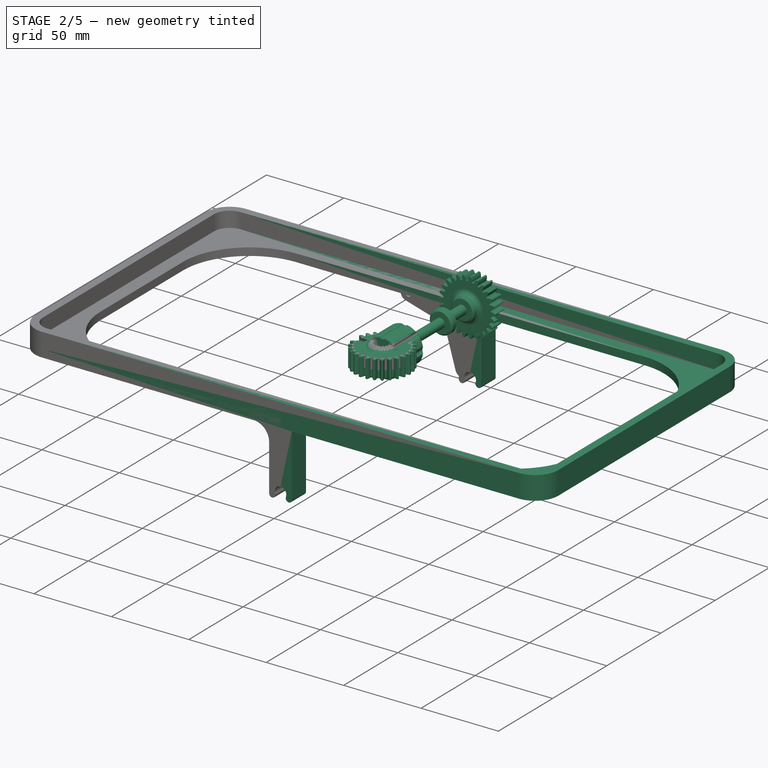
[diagram: stage 2 of 5 — iso view after this stage's code; geometry added in this stage tinted green]
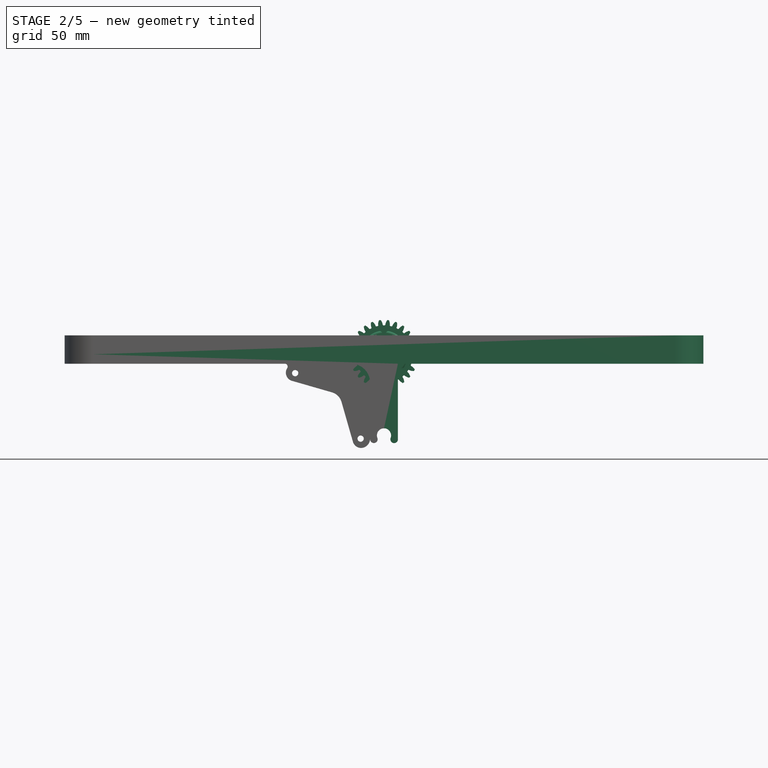
[diagram: stage 2 of 5 — front view after this stage's code; geometry added in this stage tinted green]
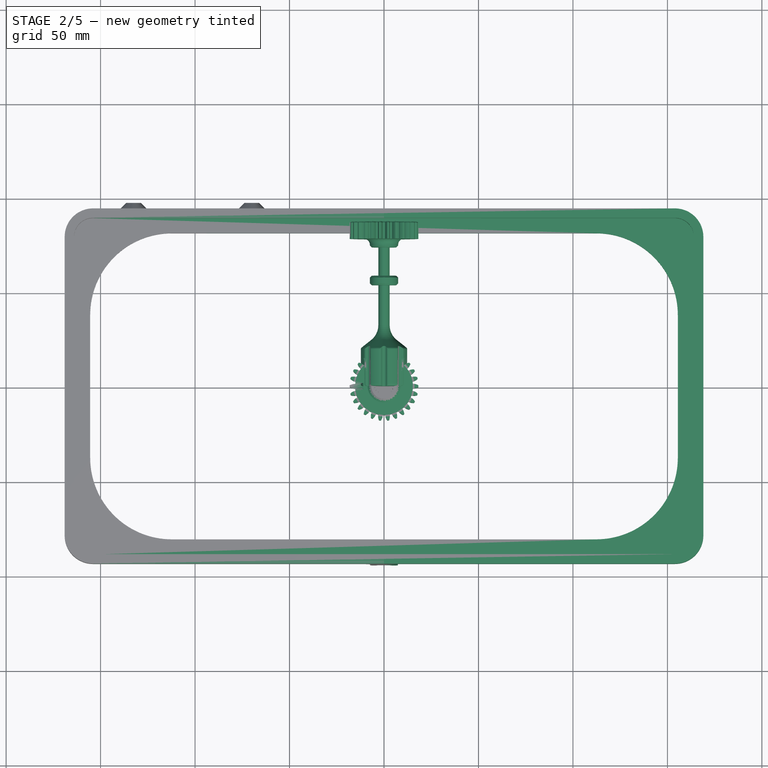
[diagram: stage 2 of 5 — top view after this stage's code; geometry added in this stage tinted green]
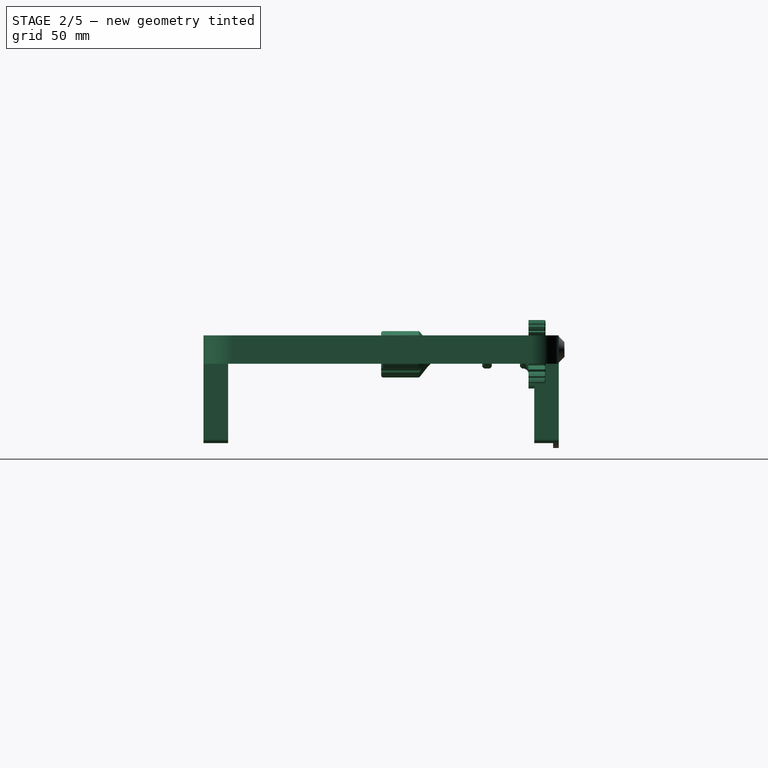
[diagram: stage 2 of 5 — right view after this stage's code; geometry added in this stage tinted green]
FEATURE [Sketcher::SketchObject] Sketch025
  ArcFitTolerance = 0
  AttachmentSupport = -> [Pad013]
  ExternalBSplineMaxDegree = 0
  ExternalBSplineTolerance = 0
  FullyConstrained = true
  InternalTolerance = 1e-06
  InvalidShape = false
  MakeInternals = false
  MapMode = 5
  Placement = pos=(0,0,14.625) rot=(0,0,1;0rad)
  Support = -> [Pad013]
  TreeRank = 0
  ValidateShape = false
FEATURE [PartDesign::Body] Body002
  AutoGroupSolids = false
  ClaimAllChildren = false
  ExportMode = 0
  Group = -> [Sketch026,Pad015,Sketch027,Pad016,Sketch028,Pad009,Sketch021,Pad010,Sketch022,Pad011,Sketch023,Pad012,Sketch024,Pad013,Sketch025,Pad014]
  InvalidShape = false
  Origin = -> Origin002
  SingleSolid = true
  Tip = -> Pad014
  TreeRank = 0
  ValidateShape = false
  _ExportChildren = -> [Pad015,Pad016,Pad009,Pad010,Pad011,Pad012,Pad013,Sketch025,Pad014]
  _GroupVersion = 1
FEATURE [Part::FeaturePython] Parts003  # WARN: FeaturePython — macro-defined, semantics opaque (R4)
  Group = -> [Body002,Plane003]
  GroupMode = 0
  InvalidShape = false
  TreeRank = 0
  ValidateShape = false
  _LinkVersion = 1
FEATURE [App::FeaturePython] Constraints004  # WARN: FeaturePython — macro-defined, semantics opaque (R4)
  TreeRank = 0
  _LinkVersion = 1
  _Version = 1
FEATURE [Sketcher::SketchObject] Sketch031
  ArcFitTolerance = 0
  AttachmentSupport = -> [XY_Plane004]
  ExternalBSplineMaxDegree = 0
  ExternalBSplineTolerance = 0
  FullyConstrained = false
  InternalTolerance = 1e-06
  InvalidShape = false
  MakeInternals = false
  MapMode = 5
  Support = -> [XY_Plane004]
  TreeRank = 0
  ValidateShape = false
  sketch-geometry (16):
    g0: LineSegment StartX=-154 StartY=89 StartZ=0 EndX=154 EndY=89 EndZ=0
    g1: LineSegment StartX=164 StartY=79 StartZ=0 EndX=164 EndY=-79 EndZ=0
    g2: LineSegment StartX=154 StartY=-89 StartZ=0 EndX=-154 EndY=-89 EndZ=0
    g3: LineSegment StartX=-164 StartY=-79 StartZ=0 EndX=-164 EndY=79 EndZ=0
    g4: ArcOfCircle CenterX=-154 CenterY=79 CenterZ=0 NormalX=0 NormalY=0 NormalZ=1 AngleXU=0 Radius=10 StartAngle=1.5708 EndAngle=3.14159
    g5: ArcOfCircle CenterX=154 CenterY=79 CenterZ=0 NormalX=0 NormalY=0 NormalZ=1 AngleXU=0 Radius=10 StartAngle=-9e-16 EndAngle=1.5708
    g6: ArcOfCircle CenterX=154 CenterY=-79 CenterZ=0 NormalX=0 NormalY=0 NormalZ=1 AngleXU=0 Radius=10 StartAngle=4.71239 EndAngle=6.28319
    g7: ArcOfCircle CenterX=-154 CenterY=-79 CenterZ=0 NormalX=0 NormalY=0 NormalZ=1 AngleXU=0 Radius=10 StartAngle=3.14159 EndAngle=4.71239
    g8: LineSegment StartX=-154 StartY=94 StartZ=0 EndX=154 EndY=94 EndZ=0
    g9: LineSegment StartX=169 StartY=79 StartZ=0 EndX=169 EndY=-79 EndZ=0
    g10: LineSegment StartX=154 StartY=-94 StartZ=0 EndX=-154 EndY=-94 EndZ=0
    g11: LineSegment StartX=-169 StartY=-79 StartZ=0 EndX=-169 EndY=79 EndZ=0
    g12: ArcOfCircle CenterX=-154 CenterY=79 CenterZ=0 NormalX=0 NormalY=0 NormalZ=1 AngleXU=0 Radius=15 StartAngle=1.5708 EndAngle=3.14159
    g13: ArcOfCircle CenterX=154 CenterY=79 CenterZ=0 NormalX=0 NormalY=0 NormalZ=1 AngleXU=0 Radius=15 StartAngle=1e-16 EndAngle=1.5708
    g14: ArcOfCircle CenterX=154 CenterY=-79 CenterZ=0 NormalX=0 NormalY=0 NormalZ=1 AngleXU=0 Radius=15 StartAngle=4.71239 EndAngle=6.28319
    g15: ArcOfCircle CenterX=-154 CenterY=-79 CenterZ=0 NormalX=0 NormalY=0 NormalZ=1 AngleXU=0 Radius=15 StartAngle=3.14159 EndAngle=4.71239
  constraints (35):
    c: Tangent(g3,g4) = 1.5708
    c: Tangent(g0,g4) = 1.5708
    c: Tangent(g0,g5) = 1.5708
    c: Tangent(g1,g5) = 1.5708
    c: Tangent(g1,g6) = 1.5708
    c: Tangent(g2,g6) = 1.5708
    c: Tangent(g2,g7) = 1.5708
    c: Tangent(g3,g7) = 1.5708
    c: Equal(g5,g6)
    c: Equal(g6,g7)
    c: Equal(g7,g4)
    c: Symmetric(g3,g1,g-2)
    c: Symmetric(g3,g1,g-2)
    c: Symmetric(g3,g3,g-1)
    c: DistanceX(g3,g1) = 328
    c: DistanceY(g2,g0) = 178
    c: Radius(g5) = 10
    c: Tangent(g11,g12) = 1.5708
    c: Tangent(g8,g12) = 1.5708
    c: Tangent(g8,g13) = 1.5708
    c: Tangent(g9,g13) = 1.5708
    c: Tangent(g9,g14) = 1.5708
    c: Tangent(g10,g14) = 1.5708
    c: Tangent(g10,g15) = 1.5708
    c: Tangent(g11,g15) = 1.5708
    c: Horizontal(g8)
    c: Horizontal(g10)
    c: Vertical(g9)
    c: Vertical(g11)
    c: DistanceX(g11,g3) = 5
    c: DistanceY(g0,g8) = 5
    c: Equal(g14,g13)
    c: Equal(g13,g12)
    c: Coincident(g15,g7)
    c: Coincident(g13,g5)
FEATURE [PartDesign::Pad] Pad018
  AddSubType = 0
  AutoTaperInnerAngle = true
  CheckUpToFaceLimits = true
  ClaimChildren = false
  Direction = (1,1,1)
  Fit = 0
  FitJoin = 0
  InnerFit = 0
  InnerFitJoin = 0
  InvalidShape = false
  Length = 10
  Length2 = 100
  NewSolid = false
  Profile = -> Sketch031
  Suppress = false
  TaperInnerAngle = 0
  TaperInnerAngleRev = 0
  TreeRank = 0
  Type = 0
  ValidateShape = true
  _ProfileBasedVersion = 0
FEATURE [Sketcher::SketchObject] Sketch032
  ArcFitTolerance = 0
  AttachmentSupport = -> [XY_Plane004]
  ExternalBSplineMaxDegree = 0
  ExternalBSplineTolerance = 0
  FullyConstrained = false
  InternalTolerance = 1e-06
  InvalidShape = false
  MakeInternals = false
  MapMode = 5
  Support = -> [XY_Plane004]
  TreeRank = 0
  ValidateShape = false
  sketch-geometry (32):
    g0: LineSegment [constr] StartX=-154 StartY=89 StartZ=0 EndX=154 EndY=89 EndZ=0
    g1: LineSegment [constr] StartX=164 StartY=79 StartZ=0 EndX=164 EndY=-79 EndZ=0
    g2: LineSegment [constr] StartX=154 StartY=-89 StartZ=0 EndX=-154 EndY=-89 EndZ=0
    g3: LineSegment [constr] StartX=-164 StartY=-79 StartZ=0 EndX=-164 EndY=79 EndZ=0
    g4: ArcOfCircle [constr] CenterX=-154 CenterY=79 CenterZ=0 NormalX=0 NormalY=0 NormalZ=1 AngleXU=0 Radius=10 StartAngle=1.5708 EndAngle=3.14159
    g5: ArcOfCircle [constr] CenterX=154 CenterY=79 CenterZ=0 NormalX=0 NormalY=0 NormalZ=1 AngleXU=0 Radius=10 StartAngle=-9e-16 EndAngle=1.5708
    g6: ArcOfCircle [constr] CenterX=154 CenterY=-79 CenterZ=0 NormalX=0 NormalY=0 NormalZ=1 AngleXU=0 Radius=10 StartAngle=4.71239 EndAngle=6.28319
    g7: ArcOfCircle [constr] CenterX=-154 CenterY=-79 CenterZ=0 NormalX=0 NormalY=0 NormalZ=1 AngleXU=0 Radius=10 StartAngle=3.14159 EndAngle=4.71239
    g8: LineSegment StartX=-154 StartY=94 StartZ=0 EndX=154 EndY=94 EndZ=0
    g9: LineSegment StartX=169 StartY=79 StartZ=0 EndX=169 EndY=-79 EndZ=0
    g10: LineSegment StartX=154 StartY=-94 StartZ=0 EndX=-154 EndY=-94 EndZ=0
    g11: LineSegment StartX=-169 StartY=-79 StartZ=0 EndX=-169 EndY=79 EndZ=0
    g12: ArcOfCircle CenterX=-154 CenterY=79 CenterZ=0 NormalX=0 NormalY=0 NormalZ=1 AngleXU=0 Radius=15 StartAngle=1.5708 EndAngle=3.14159
    g13: ArcOfCircle CenterX=154 CenterY=79 CenterZ=0 NormalX=0 NormalY=0 NormalZ=1 AngleXU=0 Radius=15 StartAngle=1e-16 EndAngle=1.5708
    g14: ArcOfCircle CenterX=154 CenterY=-79 CenterZ=0 NormalX=0 NormalY=0 NormalZ=1 AngleXU=0 Radius=15 StartAngle=4.71239 EndAngle=6.28319
    g15: ArcOfCircle CenterX=-154 CenterY=-79 CenterZ=0 NormalX=0 NormalY=0 NormalZ=1 AngleXU=0 Radius=15 StartAngle=3.14159 EndAngle=4.71239
    g16: LineSegment [constr] StartX=-150.5 StartY=37.81 StartZ=0 EndX=-150.5 EndY=-37.81 EndZ=0
    g17: LineSegment [constr] StartX=-112.31 StartY=-76 StartZ=0 EndX=112.31 EndY=-76 EndZ=0
    g18: LineSegment [constr] StartX=150.5 StartY=-37.81 StartZ=0 EndX=150.5 EndY=37.81 EndZ=0
    g19: LineSegment [constr] StartX=112.31 StartY=76 StartZ=0 EndX=-112.31 EndY=76 EndZ=0
    g20: ArcOfCircle [constr] CenterX=112.31 CenterY=37.81 CenterZ=0 NormalX=0 NormalY=0 NormalZ=1 AngleXU=0 Radius=38.19 StartAngle=0 EndAngle=1.5708
    g21: ArcOfCircle [constr] CenterX=112.31 CenterY=-37.81 CenterZ=0 NormalX=0 NormalY=0 NormalZ=1 AngleXU=0 Radius=38.19 StartAngle=4.71239 EndAngle=6.28319
    g22: ArcOfCircle [constr] CenterX=-112.31 CenterY=-37.81 CenterZ=0 NormalX=0 NormalY=0 NormalZ=1 AngleXU=0 Radius=38.19 StartAngle=3.14159 EndAngle=4.71239
    g23: ArcOfCircle [constr] CenterX=-112.31 CenterY=37.81 CenterZ=0 NormalX=0 NormalY=0 NormalZ=1 AngleXU=0 Radius=38.19 StartAngle=1.5708 EndAngle=3.14159
    g24: LineSegment StartX=112.31 StartY=81 StartZ=0 EndX=-112.31 EndY=81 EndZ=0
    g25: ArcOfCircle CenterX=-112.31 CenterY=37.81 CenterZ=0 NormalX=0 NormalY=0 NormalZ=1 AngleXU=0 Radius=43.19 StartAngle=1.5708 EndAngle=3.14159
    g26: LineSegment StartX=-155.5 StartY=37.81 StartZ=0 EndX=-155.5 EndY=-37.81 EndZ=0
    g27: ArcOfCircle CenterX=-112.31 CenterY=-37.81 CenterZ=0 NormalX=0 NormalY=0 NormalZ=1 AngleXU=0 Radius=43.19 StartAngle=3.14159 EndAngle=4.71239
    g28: LineSegment StartX=-112.31 StartY=-81 StartZ=0 EndX=112.31 EndY=-81 EndZ=0
    g29: ArcOfCircle CenterX=112.31 CenterY=-37.81 CenterZ=0 NormalX=0 NormalY=0 NormalZ=1 AngleXU=0 Radius=43.19 StartAngle=4.71239 EndAngle=6.28319
    g30: LineSegment StartX=155.5 StartY=-37.81 StartZ=0 EndX=155.5 EndY=37.81 EndZ=0
    g31: ArcOfCircle CenterX=112.31 CenterY=37.81 CenterZ=0 NormalX=0 NormalY=0 NormalZ=1 AngleXU=0 Radius=43.19 StartAngle=0 EndAngle=1.5708
  constraints (73):
    c: Tangent(g3,g4) = 1.5708
    c: Tangent(g0,g4) = 1.5708
    c: Tangent(g0,g5) = 1.5708
    c: Tangent(g1,g5) = 1.5708
    c: Tangent(g1,g6) = 1.5708
    c: Tangent(g2,g6) = 1.5708
    c: Tangent(g2,g7) = 1.5708
    c: Tangent(g3,g7) = 1.5708
    c: Equal(g5,g6)
    c: Equal(g6,g7)
    c: Equal(g7,g4)
    c: Symmetric(g3,g1,g-2)
    c: Symmetric(g3,g1,g-2)
    c: Symmetric(g3,g3,g-1)
    c: DistanceX(g3,g1) = 328
    c: DistanceY(g2,g0) = 178
    c: Radius(g5) = 10
    c: Tangent(g11,g12) = 1.5708
    c: Tangent(g8,g12) = 1.5708
    c: Tangent(g8,g13) = 1.5708
    c: Tangent(g9,g13) = 1.5708
    c: Tangent(g9,g14) = 1.5708
    c: Tangent(g10,g14) = 1.5708
    c: Tangent(g10,g15) = 1.5708
    c: Tangent(g11,g15) = 1.5708
    c: Horizontal(g8)
    c: Horizontal(g10)
    c: Vertical(g9)
    c: Vertical(g11)
    c: DistanceX(g11,g3) = 5
    c: DistanceY(g0,g8) = 5
    c: Equal(g14,g13)
    c: Equal(g13,g12)
    c: Coincident(g15,g7)
    c: Coincident(g13,g5)
    c: Vertical(g16)
    c: Horizontal(g17)
    c: Tangent(g19,g20) = -1.5708
    c: Tangent(g18,g20) = -1.5708
    c: Tangent(g18,g21) = -1.5708
    c: Tangent(g17,g21) = -1.5708
    c: Tangent(g17,g22) = -1.5708
    c: Tangent(g16,g22) = -1.5708
    c: Tangent(g16,g23) = -1.5708
    c: Tangent(g19,g23) = -1.5708
    c: DistanceX(g16,g18) = 301
    c: DistanceY(g17,g19) = 152
    c: Equal(g23,g20)
    c: Equal(g20,g21)
    c: Equal(g21,g22)
    c: Symmetric(g17,g19,g-1)
    c: Symmetric(g16,g18,g-2)
    c: Radius(g23) = 38.19
    c: Vertical(g26)
    c: Horizontal(g28)
    c: Tangent(g24,g31) = -1.5708
    c: Tangent(g30,g31) = -1.5708
    c: Tangent(g30,g29) = -1.5708
    c: Tangent(g28,g29) = -1.5708
    c: Tangent(g28,g27) = -1.5708
    c: Tangent(g26,g27) = -1.5708
    c: Tangent(g26,g25) = -1.5708
    c: Tangent(g24,g25) = -1.5708
    c: Vertical(g24,g19)
    c: Horizontal(g30,g18)
    c: Vertical(g24,g19)
    c: Horizontal(g24)
    c: Horizontal(g18,g29)
    c: Vertical(g28,g17)
    c: Vertical(g30)
    c: Vertical(g27,g17)
    c: Horizontal(g26,g16)
    c: DistanceY(g19,g24) = 5
FEATURE [PartDesign::Pad] Pad019
  AddSubType = 0
  AutoTaperInnerAngle = true
  BaseFeature = -> Pad018
  CheckUpToFaceLimits = true
  ClaimChildren = false
  Direction = (1,1,1)
  Fit = 0
  FitJoin = 0
  InnerFit = 0
  InnerFitJoin = 0
  InvalidShape = false
  Length = 5
  Length2 = 100
  NewSolid = false
  Profile = -> Sketch032
  Reversed = true
  Suppress = false
  TaperInnerAngle = 0
  TaperInnerAngleRev = 0
  TreeRank = 0
  Type = 0
  ValidateShape = true
  _ProfileBasedVersion = 0
FEATURE [Sketcher::SketchObject] Sketch033
  ArcFitTolerance = 0
  AttachmentSupport = -> [Pad019]
  ExternalBSplineMaxDegree = 0
  ExternalBSplineTolerance = 0
  ExternalGeometry = -> [Pad019]
  FullyConstrained = false
  InternalTolerance = 1e-06
  InvalidShape = false
  MakeInternals = false
  MapMode = 5
  Placement = pos=(0,94,0) rot=(0,0.707107,0.707107;3.14159rad)
  Support = -> [Pad019]
  TreeRank = 0
  ValidateShape = false
  sketch-geometry (6):
    g0: LineSegment StartX=-7.36667 StartY=-5 StartZ=0 EndX=7.36667 EndY=-5 EndZ=0
    g1: LineSegment StartX=-7.36667 StartY=-5 StartZ=0 EndX=-7.36667 EndY=-45 EndZ=0
    g2: LineSegment StartX=7.36667 StartY=-45 StartZ=0 EndX=7.36667 EndY=-5 EndZ=0
    g3: ArcOfCircle CenterX=5.36667 CenterY=-45 CenterZ=0 NormalX=0 NormalY=0 NormalZ=1 AngleXU=0 Radius=2 StartAngle=2.77438 EndAngle=6.28319
    g4: ArcOfCircle CenterX=-1e-16 CenterY=-42.9357 CenterZ=0 NormalX=0 NormalY=0 NormalZ=1 AngleXU=0 Radius=3.75 StartAngle=5.91598 EndAngle=9.79199
    g5: ArcOfCircle CenterX=-5.36667 CenterY=-45 CenterZ=0 NormalX=0 NormalY=0 NormalZ=1 AngleXU=0 Radius=2 StartAngle=3.14159 EndAngle=6.65039
  constraints (15):
    c: Symmetric(g0,g0,g-2)
    c: Coincident(g1,g0)
    c: Vertical(g1)
    c: Coincident(g2,g0)
    c: PointOnObject(g0,g-4)
    c: Symmetric(g2,g1,g-2)
    c: Tangent(g3,g2) = -1.5708
    c: Coincident(g5,g4)
    c: Tangent(g1,g5) = -1.5708
    c: Symmetric(g3,g4,g-2)
    c: Tangent(g4,g3) = 1.5708
    c: Diameter(g4) = 7.5
    c: Radius(g3) = 2
    c: DistanceX(g4,g3) = 7
    c: DistanceY(g1,g1) = 40
FEATURE [PartDesign::Pad] Pad020
  AddSubType = 0
  AutoTaperInnerAngle = true
  BaseFeature = -> Pad019
  CheckUpToFaceLimits = true
  ClaimChildren = false
  Direction = (1,1,1)
  Fit = 0
  FitJoin = 0
  InnerFit = 0
  InnerFitJoin = 0
  InvalidShape = false
  Length = 10
  Length2 = 100
  NewSolid = false
  Profile = -> Sketch033
  Reversed = true
  Suppress = false
  TaperInnerAngle = 0
  TaperInnerAngleRev = 0
  TreeRank = 0
  Type = 3
  UpToFace = -> Pad019 [Face27]
  ValidateShape = true
  _ProfileBasedVersion = 0
FEATURE [PartDesign::Mirrored] Mirrored004
  AddSubType = 0
  BaseFeature = -> Pad020
  CopyShape = true
  InvalidShape = false
  MirrorPlane = -> XZ_Plane004
  NewSolid = false
  OriginalSubs = -> [Pad020]
  Originals = -> [Pad020]
  ParallelTransform = true
  SubTransform = true
  Suppress = false
  TreeRank = 0
  ValidateShape = true
  _Version = 0
FEATURE [Sketcher::SketchObject] Sketch035
  ArcFitTolerance = 0
  ExternalBSplineMaxDegree = 0
  ExternalBSplineTolerance = 0
  FullyConstrained = false
  InternalTolerance = 1e-06
  InvalidShape = false
  MakeInternals = false
  MapMode = 5
  Placement = pos=(0,0,10) rot=(0,0,1;0rad)
  TreeRank = 0
  ValidateShape = false
  sketch-geometry (4):
    g0: LineSegment StartX=0 StartY=119.45 StartZ=0 EndX=0 EndY=-119.45 EndZ=0
    g1: LineSegment StartX=0 StartY=119.45 StartZ=0 EndX=200.233 EndY=119.45 EndZ=0
    g2: LineSegment StartX=200.233 StartY=119.45 StartZ=0 EndX=200.233 EndY=-119.45 EndZ=0
    g3: LineSegment StartX=200.233 StartY=-119.45 StartZ=0 EndX=0 EndY=-119.45 EndZ=0
  constraints (9):
    c: PointOnObject(g0,g-2)
    c: Symmetric(g0,g0,g-1)
    c: Coincident(g0,g1)
    c: Horizontal(g1)
    c: Coincident(g1,g2)
    c: Vertical(g2)
    c: Coincident(g2,g3)
    c: Coincident(g3,g0)
    c: Horizontal(g3)
FEATURE [App::FeaturePython] Constraints005  # WARN: FeaturePython — macro-defined, semantics opaque (R4)
  TreeRank = 0
  _LinkVersion = 1
  _Version = 1
FEATURE [Sketcher::SketchObject] Sketch043
  ArcFitTolerance = 0
  AttachmentSupport = -> [XY_Plane005]
  ExternalBSplineMaxDegree = 0
  ExternalBSplineTolerance = 0
  FullyConstrained = false
  InternalTolerance = 1e-06
  InvalidShape = false
  MakeInternals = false
  MapMode = 5
  Support = -> [XY_Plane005]
  TreeRank = 0
  ValidateShape = false
  sketch-geometry (10):
    g0: LineSegment [constr] StartX=0 StartY=0 StartZ=0 EndX=2 EndY=0 EndZ=0
    g1: LineSegment StartX=2 StartY=0 StartZ=0 EndX=2 EndY=6 EndZ=0
    g2: LineSegment StartX=2 StartY=6 StartZ=0 EndX=0 EndY=6 EndZ=0
    g3: LineSegment StartX=0 StartY=6 StartZ=0 EndX=0 EndY=78 EndZ=0
    g4: LineSegment StartX=0 StartY=78 StartZ=0 EndX=3 EndY=78 EndZ=0
    g5: LineSegment StartX=3 StartY=78 StartZ=0 EndX=3 EndY=27.5 EndZ=0
    g6: LineSegment StartX=3 StartY=27.5 StartZ=0 EndX=12.5 EndY=20 EndZ=0
    g7: LineSegment StartX=12.5 StartY=20 StartZ=0 EndX=12.5 EndY=0 EndZ=0
    g8: LineSegment StartX=12.5 StartY=0 StartZ=0 EndX=2 EndY=0 EndZ=0
    g9: GeomPoint [constr] X=-12.5 Y=0 Z=0
  constraints (27):
    c: Coincident(g0,g-1)
    c: PointOnObject(g0,g-1)
    c: Coincident(g1,g0)
    c: Vertical(g1)
    c: Coincident(g1,g2)
    c: PointOnObject(g2,g-2)
    c: Horizontal(g2)
    c: Coincident(g2,g3)
    c: PointOnObject(g3,g-2)
    c: Coincident(g4,g3)
    c: Horizontal(g4)
    c: Coincident(g4,g5)
    c: Vertical(g5)
    c: Coincident(g5,g6)
    c: Coincident(g6,g7)
    c: PointOnObject(g7,g-1)
    c: Vertical(g7)
    c: Coincident(g7,g8)
    c: Coincident(g8,g0)
    c: DistanceY(g1,g1) = 6
    c: DistanceX(g2,g2) = 2
    c: DistanceX(g4,g4) = 3
    c: DistanceY(g-1,g3) = 78
    c: DistanceY(g7,g7) = 20
    c: DistanceY(g6,g5) = 7.5
    c: Symmetric(g9,g7,g-2)
    c: DistanceX(g9,g7) = 25
FEATURE [PartDesign::Revolution] Revolution
  AddSubType = 0
  Angle = 360
  Axis = (0,1,0)
  Base = (0,0,0)
  ClaimChildren = false
  Fit = 0
  FitJoin = 0
  InnerFit = 0
  InnerFitJoin = 0
  InvalidShape = false
  NewSolid = false
  Profile = -> Sketch043
  ReferenceAxis = -> Sketch043 [V_Axis]
  Reversed = true
  Suppress = false
  TreeRank = 0
  ValidateShape = true
  _ProfileBasedVersion = 0
FEATURE [Sketcher::SketchObject] Sketch041
  ArcFitTolerance = 0
  AttachmentSupport = -> [Revolution]
  ExternalBSplineMaxDegree = 0
  ExternalBSplineTolerance = 0
  ExternalGeometry = -> [Revolution]
  FullyConstrained = false
  InternalTolerance = 1e-06
  InvalidShape = false
  MakeInternals = false
  MapMode = 5
  Placement = pos=(0,0,0) rot=(1,0,0;1.5708rad)
  Support = -> [Revolution]
  TreeRank = 0
  ValidateShape = false
  sketch-geometry (1):
    g0: Circle CenterX=0 CenterY=12.5 CenterZ=0 NormalX=0 NormalY=0 NormalZ=1 AngleXU=0 Radius=1.5
  constraints (3):
    c: PointOnObject(g0,g-2)
    c: PointOnObject(g0,g-3)
    c: Diameter(g0) = 3
FEATURE [PartDesign::Pocket] Pocket022
  AddSubType = 1
  AutoTaperInnerAngle = true
  BaseFeature = -> Revolution
  CheckUpToFaceLimits = true
  ClaimChildren = false
  Direction = (1,1,1)
  Fit = 0
  FitJoin = 0
  InnerFit = 0
  InnerFitJoin = 0
  InvalidShape = false
  Length = 5
  Length2 = 100
  NewSolid = false
  Profile = -> Sketch041
  Suppress = false
  TaperInnerAngle = 0
  TaperInnerAngleRev = 0
  TreeRank = 0
  Type = 1
  ValidateShape = true
  _ProfileBasedVersion = 0
  _Version = 0
FEATURE [PartDesign::PolarPattern] PolarPattern
  AddSubType = 0
  Angle = 360
  Axis = -> Sketch041 [N_Axis]
  BaseFeature = -> Pocket022
  CopyShape = true
  InvalidShape = false
  NewSolid = false
  Occurrences = 8
  OriginalSubs = -> [Pocket022]
  Originals = -> [Pocket022]
  ParallelTransform = true
  SubTransform = true
  Suppress = false
  TreeRank = 0
  ValidateShape = true
  _Version = 0
FEATURE [PartDesign::Fillet] Fillet009
  AddSubType = 0
  Base = -> PolarPattern [Face15,Face13,Face11,Face9,Face7,Face5,Face19,Face17]
  BaseFeature = -> PolarPattern
  InvalidShape = false
  NewSolid = false
  Radius = 1.25
  SupportTransform = true
  Suppress = false
  TreeRank = 0
  UseAllEdges = false
  ValidateShape = true
FEATURE [PartDesign::Fillet] Fillet010
  AddSubType = 0
  Base = -> Fillet009 [Edge94]
  BaseFeature = -> Fillet009
  InvalidShape = false
  NewSolid = false
  Radius = 10
  SupportTransform = true
  Suppress = false
  TreeRank = 0
  UseAllEdges = false
  ValidateShape = true
FEATURE [PartDesign::Chamfer] Chamfer008
  AddSubType = 0
  Angle = 45
  Base = -> Fillet010 [Edge144]
  BaseFeature = -> Fillet010
  ChamferType = 0
  FlipDirection = false
  InvalidShape = false
  NewSolid = false
  Size = 0.5
  Size2 = 1
  SupportTransform = true
  Suppress = false
  TreeRank = 0
  UseAllEdges = false
  ValidateShape = true
FEATURE [Sketcher::SketchObject] Sketch042
  ArcFitTolerance = 0
  AttachmentSupport = -> [Chamfer008]
  ExternalBSplineMaxDegree = 0
  ExternalBSplineTolerance = 0
  FullyConstrained = false
  InternalTolerance = 1e-06
  InvalidShape = false
  MakeInternals = false
  MapMode = 5
  Placement = pos=(0,6,0) rot=(1,0,0;1.5708rad)
  Support = -> [Chamfer008]
  TreeRank = 0
  ValidateShape = false
  sketch-geometry (1):
    g0: Circle CenterX=0 CenterY=0 CenterZ=0 NormalX=0 NormalY=0 NormalZ=1 AngleXU=0 Radius=1.5
  constraints (2):
    c: Coincident(g0,g-1)
    c: Diameter(g0) = 3
FEATURE [PartDesign::Pocket] Pocket023
  AddSubType = 1
  AutoTaperInnerAngle = true
  BaseFeature = -> Chamfer008
  CheckUpToFaceLimits = true
  ClaimChildren = false
  Direction = (1,1,1)
  Fit = 0
  FitJoin = 0
  InnerFit = 0
  InnerFitJoin = 0
  InvalidShape = false
  Length = 12
  Length2 = 100
  NewSolid = false
  Profile = -> Sketch042
  Suppress = false
  TaperInnerAngle = 0
  TaperInnerAngleRev = 0
  TreeRank = 0
  Type = 0
  ValidateShape = true
  _ProfileBasedVersion = 0
  _Version = 0
FEATURE [PartDesign::Chamfer] Chamfer009
  AddSubType = 0
  Angle = 45
  Base = -> Pocket023 [Edge153]
  BaseFeature = -> Pocket023
  ChamferType = 0
  FlipDirection = false
  InvalidShape = false
  NewSolid = false
  Size = 0.25
  Size2 = 1
  SupportTransform = true
  Suppress = false
  TreeRank = 0
  UseAllEdges = false
  ValidateShape = true
FEATURE [Part::Part2DObjectPython] InvoluteGear002  # Draft 2D object (typed FeaturePython)
  AddendumCoefficient = 1
  DedendumCoefficient = 1.25
  ExternalGear = true
  HighPrecision = true
  InvalidShape = false
  Modules = 1.3
  NumberOfTeeth = 26
  PressureAngle = 20
  ProfileShiftCoefficient = 0
  RootFilletCoefficient = 0.375
  TreeRank = 0
  ValidateShape = false
FEATURE [PartDesign::Pad] Pad030
  AddSubType = 0
  AutoTaperInnerAngle = true
  BaseFeature = -> Pocket029
  CheckUpToFaceLimits = true
  ClaimChildren = false
  Direction = (1,1,1)
  Fit = 0
  FitJoin = 0
  InnerFit = 0
  InnerFitJoin = 0
  InvalidShape = false
  Length = 0.5
  Length2 = 100
  NewSolid = false
  Profile = -> InvoluteGear002
  Suppress = false
  TaperInnerAngle = 0
  TaperInnerAngleRev = 0
  TreeRank = 0
  Type = 0
  ValidateShape = true
  _ProfileBasedVersion = 0
FEATURE [PartDesign::Pad] Pad031
  AddSubType = 0
  AutoTaperInnerAngle = true
  BaseFeature = -> Pad030
  CheckUpToFaceLimits = true
  ClaimChildren = false
  Direction = (1,1,1)
  Fit = 0
  FitJoin = 0
  InnerFit = 0
  InnerFitJoin = 0
  InvalidShape = false
  Length = 8.5
  Length2 = 100
  NewSolid = false
  Profile = -> Pad030 [Face263]
  Suppress = false
  TaperInnerAngle = 0
  TaperInnerAngleRev = 0
  TreeRank = 0
  Type = 0
  ValidateShape = true
  _ProfileBasedVersion = 0
FEATURE [Sketcher::SketchObject] Sketch066
  ArcFitTolerance = 0
  AttachmentSupport = -> [YZ_Plane011]
  ExternalBSplineMaxDegree = 0
  ExternalBSplineTolerance = 0
  FullyConstrained = false
  InternalTolerance = 1e-06
  InvalidShape = false
  MakeInternals = false
  MapMode = 5
  Placement = pos=(0,0,0) rot=(0.57735,0.57735,0.57735;2.0944rad)
  Support = -> [YZ_Plane011]
  TreeRank = 0
  ValidateShape = false
  sketch-geometry (1):
    g0: Circle CenterX=0 CenterY=4.5 CenterZ=0 NormalX=0 NormalY=0 NormalZ=1 AngleXU=0 Radius=1.4
  constraints (3):
    c: PointOnObject(g0,g-2)
    c: DistanceY(g-1,g0) = 4.5
    c: Diameter(g0) = 2.8
FEATURE [PartDesign::Pocket] Pocket036
  AddSubType = 1
  AutoTaperInnerAngle = true
  BaseFeature = -> Pad031
  CheckUpToFaceLimits = true
  ClaimChildren = false
  Direction = (1,1,1)
  Fit = 0
  FitJoin = 0
  InnerFit = 0
  InnerFitJoin = 0
  InvalidShape = false
  Length = 5
  Length2 = 100
  NewSolid = false
  Profile = -> Sketch066
  Suppress = false
  TaperInnerAngle = 0
  TaperInnerAngleRev = 0
  TreeRank = 0
  Type = 1
  ValidateShape = true
  _ProfileBasedVersion = 0
  _Version = 0
FEATURE [Part::Plane] Plane007
  AttacherType = Attacher::AttachEngine3D
  InvalidShape = false
  Length = 25
  Placement = pos=(-4,0,0) rot=(0.57735,0.57735,0.57735;2.0944rad)
  TreeRank = 0
  ValidateShape = false
  Width = 25
FEATURE [Part::Plane] Plane008
  AttacherType = Attacher::AttachEngine3D
  InvalidShape = false
  Length = 25
  Placement = pos=(-11,0,0) rot=(0.57735,0.57735,0.57735;2.0944rad)
  TreeRank = 0
  ValidateShape = false
  Width = 25
FEATURE [Sketcher::SketchObject] Sketch067
  ArcFitTolerance = 0
  ExternalBSplineMaxDegree = 0
  ExternalBSplineTolerance = 0
  FullyConstrained = false
  InternalTolerance = 1e-06
  InvalidShape = false
  MakeInternals = false
  MapMode = 5
  Placement = pos=(-11,0,0) rot=(0.57735,0.57735,0.57735;2.0944rad)
  TreeRank = 0
  ValidateShape = false
  sketch-geometry (1):
    g0: Circle CenterX=0 CenterY=4.5 CenterZ=0 NormalX=0 NormalY=0 NormalZ=1 AngleXU=0 Radius=3
  constraints (3):
    c: PointOnObject(g0,g-2)
    c: Diameter(g0) = 6
    c: DistanceY(g-1,g0) = 4.5
FEATURE [PartDesign::Pocket] Pocket037
  AddSubType = 1
  AutoTaperInnerAngle = true
  BaseFeature = -> Pocket036
  CheckUpToFaceLimits = true
  ClaimChildren = false
  Direction = (1,1,1)
  Fit = 0
  FitJoin = 0
  InnerFit = 0
  InnerFitJoin = 0
  InvalidShape = false
  Length = 5
  Length2 = 100
  NewSolid = false
  Profile = -> Sketch067
  Suppress = false
  TaperInnerAngle = 0
  TaperInnerAngleRev = 0
  TreeRank = 0
  Type = 1
  ValidateShape = true
  _ProfileBasedVersion = 0
  _Version = 0
FEATURE [PartDesign::Chamfer] Chamfer021
  AddSubType = 0
  Angle = 45
  Base = -> Pocket037 [Edge1462]
  BaseFeature = -> Pocket037
  ChamferType = 1
  FlipDirection = false
  InvalidShape = false
  NewSolid = false
  Size = 0.25
  Size2 = 2
  SupportTransform = true
  Suppress = false
  TreeRank = 0
  UseAllEdges = false
  ValidateShape = true
FEATURE [PartDesign::Pad] Pad032
  AddSubType = 0
  AutoTaperInnerAngle = true
  BaseFeature = -> Chamfer021
  CheckUpToFaceLimits = true
  ClaimChildren = false
  Direction = (1,1,1)
  Fit = 0
  FitJoin = 0
  InnerFit = 0
  InnerFitJoin = 0
  InvalidShape = false
  Length = 5
  Length2 = 100
  NewSolid = false
  Profile = -> InvoluteGear002
  Reversed = true
  Suppress = false
  TaperInnerAngle = 0
  TaperInnerAngleRev = 0
  TreeRank = 0
  Type = 0
  ValidateShape = true
  _ProfileBasedVersion = 0
FEATURE [PartDesign::Fillet] Fillet016
  AddSubType = 0
  Base = -> Pad032 [Face439]
  BaseFeature = -> Pad032
  InvalidShape = false
  NewSolid = false
  Radius = 0.7
  SupportTransform = true
  Suppress = false
  TreeRank = 0
  UseAllEdges = false
  ValidateShape = true
FEATURE [PartDesign::Body] Body004
  AutoGroupSolids = false
  ClaimAllChildren = false
  ExportMode = 0
  Group = -> [Sketch031,Pad018,Pad019,Sketch033,Pad020,Mirrored004,Fillet008,Sketch034,Pad021,Sketch035,Pocket014,Sketch036,Pad022,Sketch037,Pocket015,Chamfer007,Sketch038,Pocket016,Sketch039,Pocket017,Pocket018,Sketch040,Pocket019,Pocket020,Pocket021]
  InvalidShape = false
  Origin = -> Origin004
  SingleSolid = true
  Tip = -> Pocket021
  TreeRank = 0
  ValidateShape = false
  _ExportChildren = -> [Pad018,Pad019,Pad020,Mirrored004,Fillet008,Pad021,Pocket014,Pad022,Pocket015,Chamfer007,Pocket016,Pocket017,Pocket018,Pocket019,Pocket020,Pocket021]
  _GroupVersion = 1
FEATURE [Part::FeaturePython] Parts005  # WARN: FeaturePython — macro-defined, semantics opaque (R4)
  Group = -> [Body004]
  GroupMode = 0
  InvalidShape = false
  TreeRank = 0
  ValidateShape = false
  _LinkVersion = 1
FEATURE [Part::Part2DObjectPython] InvoluteGear003  # Draft 2D object (typed FeaturePython)
  AddendumCoefficient = 1
  AttachmentSupport = -> [Chamfer009]
  DedendumCoefficient = 1.25
  ExternalGear = true
  HighPrecision = true
  InvalidShape = false
  MapMode = 5
  Modules = 1.3
  NumberOfTeeth = 26
  Placement = pos=(0,78,0) rot=(0,0.707107,0.707107;3.14159rad)
  PressureAngle = 20
  ProfileShiftCoefficient = 0
  RootFilletCoefficient = 0.375
  Support = -> [Chamfer009]
  TreeRank = 0
  ValidateShape = false
FEATURE [PartDesign::Pad] Pad036
  AddSubType = 0
  AutoTaperInnerAngle = true
  BaseFeature = -> Chamfer009
  CheckUpToFaceLimits = true
  ClaimChildren = false
  Direction = (1,1,1)
  Fit = 0
  FitJoin = 0
  InnerFit = 0
  InnerFitJoin = 0
  InvalidShape = false
  Length = 9
  Length2 = 100
  NewSolid = false
  Profile = -> InvoluteGear003
  Suppress = false
  TaperInnerAngle = 0
  TaperInnerAngleRev = 0
  TreeRank = 0
  Type = 0
  ValidateShape = true
  _ProfileBasedVersion = 0
FEATURE [Sketcher::SketchObject] Sketch079
  ArcFitTolerance = 0
  AttachmentSupport = -> [Pad036]
  ExternalBSplineMaxDegree = 0
  ExternalBSplineTolerance = 0
  FullyConstrained = false
  InternalTolerance = 1e-06
  InvalidShape = false
  MakeInternals = false
  MapMode = 5
  Placement = pos=(0,78,0) rot=(1,0,0;1.5708rad)
  Support = -> [Pad036]
  TreeRank = 0
  ValidateShape = false
  sketch-geometry (2):
    g0: Circle CenterX=0 CenterY=0 CenterZ=0 NormalX=0 NormalY=0 NormalZ=1 AngleXU=0 Radius=7.5
    g1: Circle CenterX=0 CenterY=0 CenterZ=0 NormalX=0 NormalY=0 NormalZ=1 AngleXU=0 Radius=3
  constraints (4):
    c: Coincident(g0,g-1)
    c: Diameter(g0) = 15
    c: Coincident(g1,g0)
    c: Diameter(g1) = 6
FEATURE [PartDesign::Pad] Pad037
  AddSubType = 0
  AutoTaperInnerAngle = true
  BaseFeature = -> Pad036
  CheckUpToFaceLimits = true
  ClaimChildren = false
  Direction = (1,1,1)
  Fit = 0
  FitJoin = 0
  InnerFit = 0
  InnerFitJoin = 0
  InvalidShape = false
  Length = 4.5
  Length2 = 100
  NewSolid = false
  Profile = -> Sketch079
  Suppress = false
  TaperInnerAngle = 0
  TaperInnerAngleRev = 0
  TreeRank = 0
  Type = 0
  ValidateShape = true
  _ProfileBasedVersion = 0
FEATURE [Part::Plane] Plane010
  AttacherType = Attacher::AttachEngine3D
  InvalidShape = false
  Length = 100
  Placement = pos=(0,58.5,0) rot=(0.57735,0.57735,0.57735;4.18879rad)
  TreeRank = 0
  ValidateShape = false
  Width = 100
FEATURE [PartDesign::SubShapeBinder] Binder001
  BindCopyOnChange = 0
  BindMode = 0
  ClaimChildren = false
  Context = -> Assembly002 [Parts002.Assembly006.Parts006.Body005.Binder001.]
  EdgeTolerance = 1e-06
  FillStyle = 0
  Fuse = false
  InvalidShape = false
  MakeFace = true
  MergeEdges = true
  OffsetFill = false
  OffsetIntersection = false
  OffsetJoinType = 0
  OffsetOpenResult = false
  Outline = false
  PartialLoad = false
  Refine = true
  Relative = true
  SplitEdges = false
  Support = -> [Plane010]
  TightBound = false
  TreeRank = 0
  ValidateShape = false
  _Version = 3
FEATURE [Sketcher::SketchObject] Sketch080
  ArcFitTolerance = 0
  AttachmentSupport = -> [Binder001]
  ExternalBSplineMaxDegree = 0
  ExternalBSplineTolerance = 0
  FullyConstrained = false
  InternalTolerance = 1e-06
  InvalidShape = false
  MakeInternals = false
  MapMode = 5
  Placement = pos=(0,58.5,0) rot=(0,0.707107,0.707107;3.14159rad)
  Support = -> [Binder001]
  TreeRank = 0
  ValidateShape = false
  sketch-geometry (2):
    g0: Circle CenterX=0 CenterY=0 CenterZ=0 NormalX=0 NormalY=0 NormalZ=1 AngleXU=0 Radius=3
    g1: Circle CenterX=0 CenterY=0 CenterZ=0 NormalX=0 NormalY=0 NormalZ=1 AngleXU=0 Radius=7.5
  constraints (4):
    c: Coincident(g0,g-1)
    c: Coincident(g1,g0)
    c: Diameter(g0) = 6
    c: Diameter(g1) = 15
FEATURE [PartDesign::Pad] Pad038
  AddSubType = 0
  AutoTaperInnerAngle = true
  BaseFeature = -> Pad037
  CheckUpToFaceLimits = true
  ClaimChildren = false
  Direction = (1,1,1)
  Fit = 0
  FitJoin = 0
  InnerFit = 0
  InnerFitJoin = 0
  InvalidShape = false
  Length = 5
  Length2 = 100
  NewSolid = false
  Profile = -> Sketch080
  Reversed = true
  Suppress = false
  TaperInnerAngle = 0
  TaperInnerAngleRev = 0
  TreeRank = 0
  Type = 0
  ValidateShape = true
  _ProfileBasedVersion = 0
FEATURE [PartDesign::Fillet] Fillet020
  AddSubType = 0
  Base = -> Pad038 [Face326]
  BaseFeature = -> Pad038
  InvalidShape = false
  NewSolid = false
  Radius = 0.7
  SupportTransform = true
  Suppress = false
  TreeRank = 0
  UseAllEdges = false
  ValidateShape = true
FEATURE [PartDesign::Fillet] Fillet021
  AddSubType = 0
  Base = -> Fillet020 [Edge269]
  BaseFeature = -> Fillet020
  InvalidShape = false
  NewSolid = false
  Radius = 3
  SupportTransform = true
  Suppress = false
  TreeRank = 0
  UseAllEdges = false
  ValidateShape = true
FEATURE [PartDesign::Chamfer] Chamfer029
  AddSubType = 0
  Angle = 45
  Base = -> Fillet021 [Edge785,Edge1310,Edge1312]
  BaseFeature = -> Fillet021
  ChamferType = 0
  FlipDirection = false
  InvalidShape = false
  NewSolid = false
  Size = 1
  Size2 = 1
  SupportTransform = true
  Suppress = false
  TreeRank = 0
  UseAllEdges = false
  ValidateShape = true
FEATURE [Sketcher::SketchObject] Sketch083
  ArcFitTolerance = 0
  AttachmentSupport = -> [Fillet016]
  ExternalBSplineMaxDegree = 0
  ExternalBSplineTolerance = 0
  FullyConstrained = false
  InternalTolerance = 1e-06
  InvalidShape = false
  MakeInternals = false
  MapMode = 5
  Placement = pos=(0,0,9) rot=(0,0,1;0rad)
  Support = -> [Fillet016]
  TreeRank = 0
  ValidateShape = false
  sketch-geometry (2):
    g0: Circle CenterX=0 CenterY=0 CenterZ=0 NormalX=0 NormalY=0 NormalZ=1 AngleXU=0 Radius=6.75
    g1: Circle CenterX=0 CenterY=0 CenterZ=0 NormalX=0 NormalY=0 NormalZ=1 AngleXU=0 Radius=20
  constraints (4):
    c: Coincident(g0,g-1)
    c: Diameter(g0) = 13.5
    c: Coincident(g1,g0)
    c: Diameter(g1) = 40
FEATURE [PartDesign::Pocket] Pocket046
  AddSubType = 1
  AutoTaperInnerAngle = true
  BaseFeature = -> Fillet016
  CheckUpToFaceLimits = true
  ClaimChildren = false
  Direction = (1,1,1)
  Fit = 0
  FitJoin = 0
  InnerFit = 0
  InnerFitJoin = 0
  InvalidShape = false
  Length = 2
  Length2 = 100
  NewSolid = false
  Profile = -> Sketch083
  Suppress = false
  TaperInnerAngle = 0
  TaperInnerAngleRev = 0
  TreeRank = 0
  Type = 0
  ValidateShape = true
  _ProfileBasedVersion = 0
  _Version = 0
FEATURE [PartDesign::Chamfer] Chamfer031
  AddSubType = 0
  Angle = 45
  Base = -> Pocket046 [Edge1096]
  BaseFeature = -> Pocket046
  ChamferType = 0
  FlipDirection = false
  InvalidShape = false
  NewSolid = false
  Size = 1.9
  Size2 = 1
  SupportTransform = true
  Suppress = false
  TreeRank = 0
  UseAllEdges = false
  ValidateShape = true
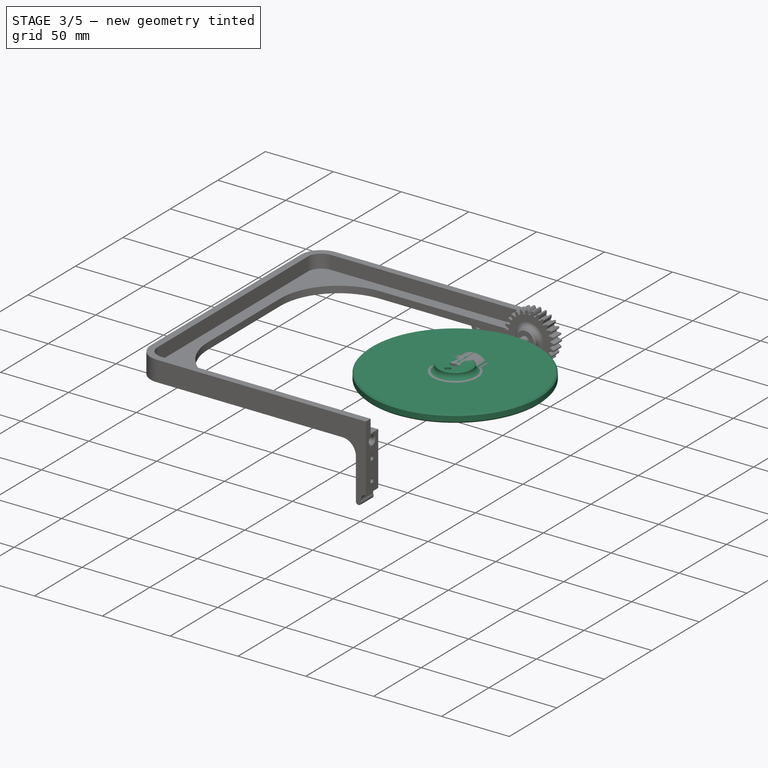
[diagram: stage 3 of 5 — iso view after this stage's code; geometry added in this stage tinted green]
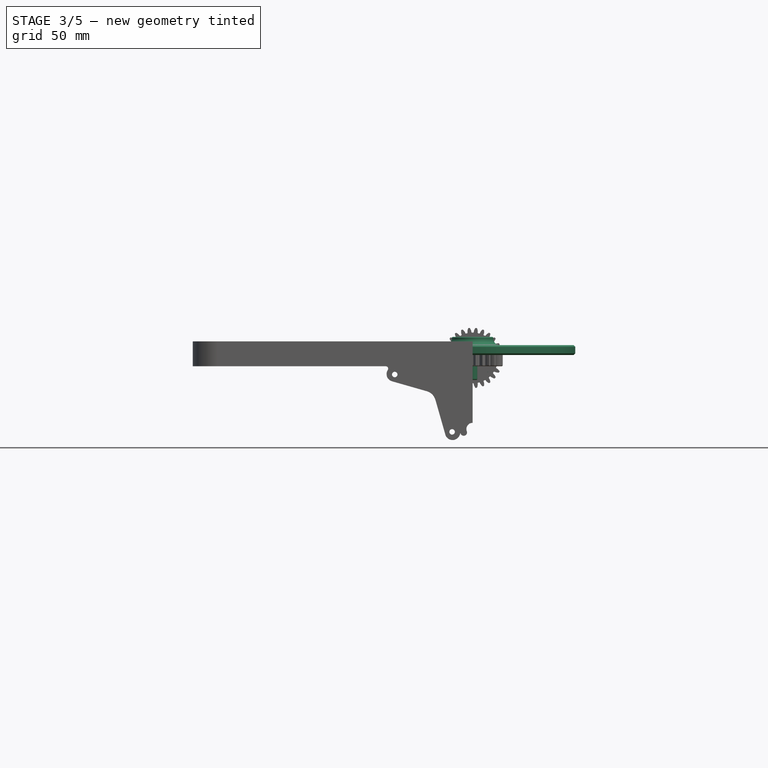
[diagram: stage 3 of 5 — front view after this stage's code; geometry added in this stage tinted green]
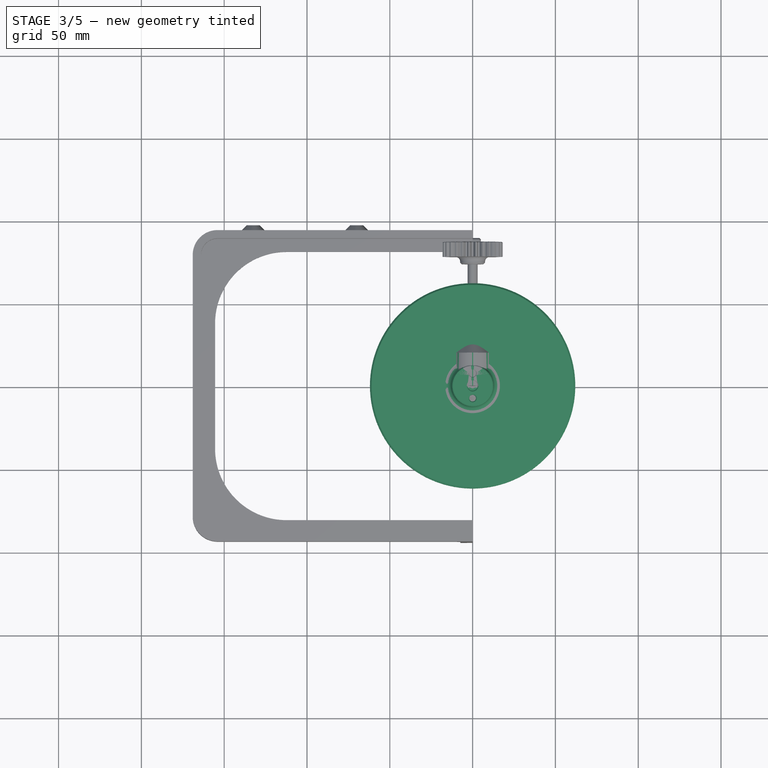
[diagram: stage 3 of 5 — top view after this stage's code; geometry added in this stage tinted green]
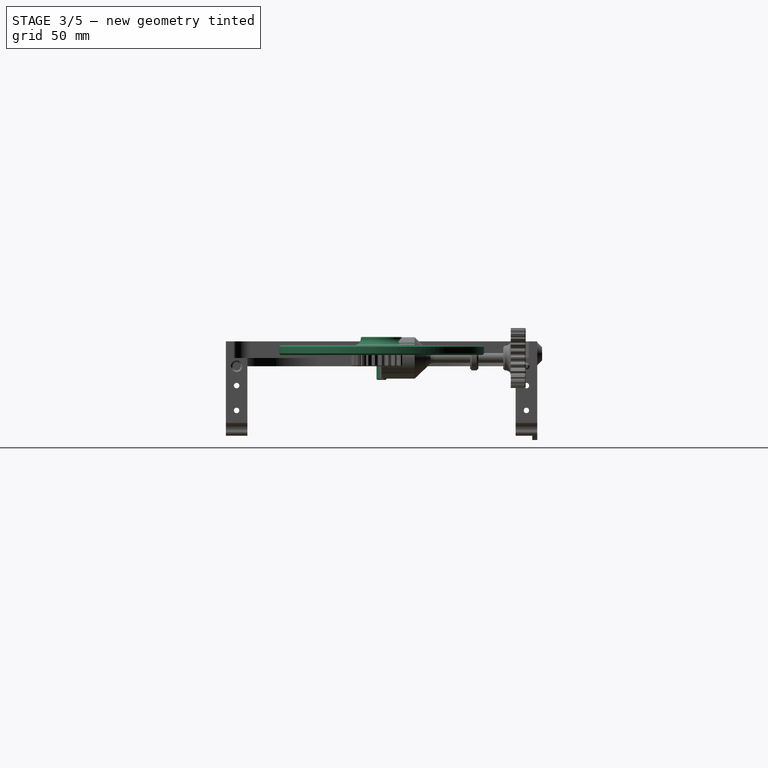
[diagram: stage 3 of 5 — right view after this stage's code; geometry added in this stage tinted green]
FEATURE [PartDesign::Fillet] Fillet008
  AddSubType = 0
  Base = -> Mirrored004 [Edge100,Edge42,Edge36,Edge104]
  BaseFeature = -> Mirrored004
  InvalidShape = false
  NewSolid = false
  Radius = 10
  SupportTransform = true
  Suppress = false
  TreeRank = 0
  UseAllEdges = false
  ValidateShape = true
FEATURE [Sketcher::SketchObject] Sketch068
  ArcFitTolerance = 0
  ExternalBSplineMaxDegree = 0
  ExternalBSplineTolerance = 0
  FullyConstrained = false
  InternalTolerance = 1e-06
  InvalidShape = false
  MakeInternals = false
  MapMode = 5
  Placement = pos=(0,0,1.75) rot=(1,0,0;3.14159rad)
  TreeRank = 0
  ValidateShape = false
  sketch-geometry (2):
    g0: Circle CenterX=0 CenterY=0 CenterZ=0 NormalX=0 NormalY=0 NormalZ=1 AngleXU=0 Radius=53.5
    g1: Circle CenterX=0 CenterY=0 CenterZ=0 NormalX=0 NormalY=0 NormalZ=1 AngleXU=0 Radius=56.5
  constraints (4):
    c: Coincident(g0,g-1)
    c: Coincident(g1,g0)
    c: Diameter(g0) = 107
    c: Diameter(g1) = 113
FEATURE [PartDesign::ShapeBinder] CopyMirrored003
  InvalidShape = false
  TraceSupport = false
  TreeRank = 0
  ValidateShape = false
FEATURE [Sketcher::SketchObject] Sketch070
  ArcFitTolerance = 0
  AttachmentSupport = -> [CopyMirrored003]
  ExternalBSplineMaxDegree = 0
  ExternalBSplineTolerance = 0
  FullyConstrained = false
  InternalTolerance = 1e-06
  InvalidShape = false
  MakeInternals = false
  MapMode = 5
  Placement = pos=(0,0,1.75) rot=(0,0,1;0rad)
  Support = -> [CopyMirrored003]
  TreeRank = 0
  ValidateShape = false
  sketch-geometry (2):
    g0: Circle CenterX=0 CenterY=0 CenterZ=0 NormalX=0 NormalY=0 NormalZ=1 AngleXU=0 Radius=62
    g1: Circle [constr] CenterX=0 CenterY=0 CenterZ=0 NormalX=0 NormalY=0 NormalZ=1 AngleXU=0 Radius=52
  constraints (4):
    c: Coincident(g0,g-1)
    c: Radius(g0) = 62
    c: Coincident(g1,g0)
    c: Radius(g1) = 52
FEATURE [Sketcher::SketchObject] Sketch071
  ArcFitTolerance = 0
  ExternalBSplineMaxDegree = 0
  ExternalBSplineTolerance = 0
  FullyConstrained = false
  InternalTolerance = 1e-06
  InvalidShape = false
  MakeInternals = false
  MapMode = 5
  Placement = pos=(0,0,-8.25) rot=(1,0,0;3.14159rad)
  TreeRank = 0
  ValidateShape = false
  sketch-geometry (1):
    g0: Circle CenterX=0 CenterY=0 CenterZ=0 NormalX=0 NormalY=0 NormalZ=1 AngleXU=0 Radius=1.5
  constraints (2):
    c: Coincident(g0,g-1)
    c: Diameter(g0) = 3
FEATURE [PartDesign::Pad] Pad034
  AddSubType = 0
  AllowMultiFace = false
  AutoTaperInnerAngle = true
  CheckUpToFaceLimits = true
  ClaimChildren = false
  Direction = (1,1,1)
  Fit = 0
  FitJoin = 0
  InnerFit = 0
  InnerFitJoin = 0
  InvalidShape = false
  Length = 6
  Length2 = 100
  NewSolid = false
  Profile = -> Sketch070
  Suppress = false
  TaperInnerAngle = 0
  TaperInnerAngleRev = 0
  TreeRank = 0
  Type = 0
  ValidateShape = true
  _ProfileBasedVersion = 0
FEATURE [Sketcher::SketchObject] Sketch074
  ArcFitTolerance = 0
  AttachmentSupport = -> [Pad034]
  ExternalBSplineMaxDegree = 0
  ExternalBSplineTolerance = 0
  FullyConstrained = false
  InternalTolerance = 1e-06
  InvalidShape = false
  MakeInternals = false
  MapMode = 5
  Placement = pos=(0,0,1.75) rot=(1,0,0;3.14159rad)
  Support = -> [Pad034]
  TreeRank = 0
  ValidateShape = false
  sketch-geometry (1):
    g0: Circle CenterX=0 CenterY=0 CenterZ=0 NormalX=0 NormalY=0 NormalZ=1 AngleXU=0 Radius=3
  constraints (2):
    c: Coincident(g0,g-1)
    c: Diameter(g0) = 6
FEATURE [PartDesign::Pad] Pad033
  AddSubType = 0
  AllowMultiFace = false
  AutoTaperInnerAngle = true
  BaseFeature = -> Pad034
  CheckUpToFaceLimits = true
  ClaimChildren = false
  Direction = (1,1,1)
  Fit = 0
  FitJoin = 0
  InnerFit = 0
  InnerFitJoin = 0
  InvalidShape = false
  Length = 15
  Length2 = 100
  NewSolid = false
  Profile = -> Sketch074
  Suppress = false
  TaperInnerAngle = 0
  TaperInnerAngleRev = 0
  TreeRank = 0
  Type = 0
  ValidateShape = true
  _ProfileBasedVersion = 0
FEATURE [PartDesign::Pocket] Pocket040
  AddSubType = 1
  AllowMultiFace = false
  AutoTaperInnerAngle = true
  BaseFeature = -> Pad033
  CheckUpToFaceLimits = true
  ClaimChildren = false
  Direction = (1,1,1)
  Fit = 0
  FitJoin = 0
  InnerFit = 0
  InnerFitJoin = 0
  InvalidShape = false
  Length = 5
  Length2 = 100
  Midplane = true
  NewSolid = false
  Profile = -> Sketch071
  Reversed = true
  Suppress = false
  TaperInnerAngle = 0
  TaperInnerAngleRev = 0
  TreeRank = 0
  Type = 1
  ValidateShape = true
  _ProfileBasedVersion = 0
  _Version = 0
FEATURE [PartDesign::Pocket] Pocket041
  AddSubType = 1
  AllowMultiFace = false
  AutoTaperInnerAngle = true
  BaseFeature = -> Pocket040
  CheckUpToFaceLimits = true
  ClaimChildren = false
  Direction = (1,1,1)
  Fit = 0
  FitJoin = 0
  InnerFit = 0
  InnerFitJoin = 0
  InvalidShape = false
  Length = 3
  Length2 = 100
  NewSolid = false
  Profile = -> Sketch068
  Suppress = false
  TaperInnerAngle = 0
  TaperInnerAngleRev = 0
  TreeRank = 0
  Type = 0
  ValidateShape = true
  _ProfileBasedVersion = 0
  _Version = 0
FEATURE [PartDesign::Draft] Draft007
  AddSubType = 0
  Angle = 5
  Base = -> Pocket041 [Face8]
  BaseFeature = -> Pocket041
  InvalidShape = false
  NeutralPlane = -> Pocket041 [Face3]
  NewSolid = false
  SupportTransform = false
  Suppress = false
  TreeRank = 0
  ValidateShape = true
FEATURE [PartDesign::Draft] Draft008
  AddSubType = 0
  Angle = 5
  Base = -> Draft007 [Face4]
  BaseFeature = -> Draft007
  InvalidShape = false
  NeutralPlane = -> Draft007 [Face10]
  NewSolid = false
  SupportTransform = false
  Suppress = false
  TreeRank = 0
  ValidateShape = true
FEATURE [Sketcher::SketchObject] Sketch075
  ArcFitTolerance = 0
  AttachmentSupport = -> [Draft008]
  ExternalBSplineMaxDegree = 0
  ExternalBSplineTolerance = 0
  ExternalGeometry = -> [Draft008]
  FullyConstrained = false
  InternalTolerance = 1e-06
  InvalidShape = false
  MakeInternals = false
  MapMode = 5
  Placement = pos=(0,0,7.75) rot=(0,0,1;0rad)
  Support = -> [Draft008]
  TreeRank = 0
  ValidateShape = false
  sketch-geometry (2):
    g0: Circle CenterX=0 CenterY=0 CenterZ=0 NormalX=0 NormalY=0 NormalZ=1 AngleXU=0 Radius=1.5
    g1: Circle CenterX=0 CenterY=0 CenterZ=0 NormalX=0 NormalY=0 NormalZ=1 AngleXU=0 Radius=12.5
  constraints (3):
    c: Coincident(g0,g-1)
    c: Coincident(g1,g0)
    c: Diameter(g1) = 25
FEATURE [PartDesign::Pad] Pad035
  AddSubType = 0
  AutoTaperInnerAngle = true
  BaseFeature = -> Draft008
  CheckUpToFaceLimits = true
  ClaimChildren = false
  Direction = (1,1,1)
  Fit = 0
  FitJoin = 0
  InnerFit = 0
  InnerFitJoin = 0
  InvalidShape = false
  Length = 5
  Length2 = 100
  NewSolid = false
  Profile = -> Sketch075
  Suppress = false
  TaperInnerAngle = 0
  TaperInnerAngleRev = 0
  TreeRank = 0
  Type = 0
  ValidateShape = true
  _ProfileBasedVersion = 0
FEATURE [Sketcher::SketchObject] Sketch072
  ArcFitTolerance = 0
  AttachmentSupport = -> [Pad035]
  ExternalBSplineMaxDegree = 0
  ExternalBSplineTolerance = 0
  FullyConstrained = false
  InternalTolerance = 1e-06
  InvalidShape = false
  MakeInternals = false
  MapMode = 5
  Placement = pos=(0,0,12.75) rot=(0,0,1;0rad)
  Support = -> [Pad035]
  TreeRank = 0
  ValidateShape = false
  sketch-geometry (1):
    g0: Circle CenterX=0 CenterY=0 CenterZ=0 NormalX=0 NormalY=0 NormalZ=1 AngleXU=0 Radius=2
  constraints (2):
    c: Coincident(g0,g-1)
    c: Diameter(g0) = 4
FEATURE [PartDesign::Pocket] Pocket042
  AddSubType = 1
  AutoTaperInnerAngle = true
  BaseFeature = -> Pad035
  CheckUpToFaceLimits = true
  ClaimChildren = false
  Direction = (1,1,1)
  Fit = 0
  FitJoin = 0
  InnerFit = 0
  InnerFitJoin = 0
  InvalidShape = false
  Length = 9
  Length2 = 100
  NewSolid = false
  Profile = -> Sketch072
  Suppress = false
  TaperInnerAngle = 0
  TaperInnerAngleRev = 0
  TreeRank = 0
  Type = 0
  ValidateShape = true
  _ProfileBasedVersion = 0
  _Version = 0
FEATURE [Sketcher::SketchObject] Sketch073
  ArcFitTolerance = 0
  AttachmentSupport = -> [Pocket042]
  ExternalBSplineMaxDegree = 0
  ExternalBSplineTolerance = 0
  FullyConstrained = false
  InternalTolerance = 1e-06
  InvalidShape = false
  MakeInternals = false
  MapMode = 5
  Placement = pos=(0,0,12.75) rot=(0,0,1;0rad)
  Support = -> [Pocket042]
  TreeRank = 0
  ValidateShape = false
  sketch-geometry (1):
    g0: Circle CenterX=0 CenterY=0 CenterZ=0 NormalX=0 NormalY=0 NormalZ=1 AngleXU=0 Radius=3
  constraints (2):
    c: Coincident(g0,g-1)
    c: Diameter(g0) = 6
FEATURE [PartDesign::Pocket] Pocket039
  AddSubType = 1
  AutoTaperInnerAngle = true
  BaseFeature = -> Pocket042
  CheckUpToFaceLimits = true
  ClaimChildren = false
  Direction = (1,1,1)
  Fit = 0
  FitJoin = 0
  InnerFit = 0
  InnerFitJoin = 0
  InvalidShape = false
  Length = 3
  Length2 = 100
  NewSolid = false
  Profile = -> Sketch073
  Suppress = false
  TaperInnerAngle = 0
  TaperInnerAngleRev = 0
  TreeRank = 0
  Type = 0
  ValidateShape = true
  _ProfileBasedVersion = 0
  _Version = 0
FEATURE [PartDesign::Fillet] Fillet017
  AddSubType = 0
  Base = -> Pocket039 [Edge5]
  BaseFeature = -> Pocket039
  InvalidShape = false
  NewSolid = false
  Radius = 4
  SupportTransform = true
  Suppress = false
  TreeRank = 0
  UseAllEdges = false
  ValidateShape = true
FEATURE [PartDesign::Chamfer] Chamfer025
  AddSubType = 0
  Angle = 45
  Base = -> Fillet017 [Face6]
  BaseFeature = -> Fillet017
  ChamferType = 0
  FlipDirection = false
  InvalidShape = false
  NewSolid = false
  Size = 0.5
  Size2 = 1
  SupportTransform = true
  Suppress = false
  TreeRank = 0
  UseAllEdges = false
  ValidateShape = true
FEATURE [PartDesign::Chamfer] Chamfer022
  AddSubType = 0
  Angle = 45
  Base = -> Chamfer025 [Face7]
  BaseFeature = -> Chamfer025
  ChamferType = 0
  FlipDirection = false
  InvalidShape = false
  NewSolid = false
  Size = 1
  Size2 = 1
  SupportTransform = true
  Suppress = false
  TreeRank = 0
  UseAllEdges = false
  ValidateShape = true
FEATURE [PartDesign::Chamfer] Chamfer024
  AddSubType = 0
  Angle = 45
  Base = -> Chamfer022 [Edge31]
  BaseFeature = -> Chamfer022
  ChamferType = 0
  FlipDirection = false
  InvalidShape = false
  NewSolid = false
  Size = 0.5
  Size2 = 1
  SupportTransform = true
  Suppress = false
  TreeRank = 0
  UseAllEdges = false
  ValidateShape = true
FEATURE [Sketcher::SketchObject] Sketch069
  ArcFitTolerance = 0
  AttachmentSupport = -> [Chamfer024]
  ExternalBSplineMaxDegree = 0
  ExternalBSplineTolerance = 0
  FullyConstrained = false
  InternalTolerance = 1e-06
  InvalidShape = false
  MakeInternals = false
  MapMode = 5
  Placement = pos=(0,0,12.75) rot=(0,0,1;0rad)
  Support = -> [Chamfer024]
  TreeRank = 0
  ValidateShape = false
  sketch-geometry (2):
    g0: Circle CenterX=0 CenterY=7.5 CenterZ=0 NormalX=0 NormalY=0 NormalZ=1 AngleXU=0 Radius=2
    g1: Circle CenterX=0 CenterY=-7.5 CenterZ=0 NormalX=0 NormalY=0 NormalZ=1 AngleXU=0 Radius=2
  constraints (5):
    c: PointOnObject(g0,g-2)
    c: Symmetric(g1,g0,g-1)
    c: Equal(g0,g1)
    c: DistanceY(g-1,g0) = 7.5
    c: Diameter(g0) = 4
FEATURE [PartDesign::Pocket] Pocket038
  AddSubType = 1
  AutoTaperInnerAngle = true
  BaseFeature = -> Chamfer024
  CheckUpToFaceLimits = true
  ClaimChildren = false
  Direction = (1,1,1)
  Fit = 0
  FitJoin = 0
  InnerFit = 0
  InnerFitJoin = 0
  InvalidShape = false
  Length = 6
  Length2 = 100
  NewSolid = false
  Profile = -> Sketch069
  Suppress = false
  TaperInnerAngle = 0
  TaperInnerAngleRev = 0
  TreeRank = 0
  Type = 0
  ValidateShape = true
  _ProfileBasedVersion = 0
  _Version = 0
FEATURE [PartDesign::Chamfer] Chamfer023
  AddSubType = 0
  Angle = 45
  Base = -> Pocket038 [Edge32,Edge31]
  BaseFeature = -> Pocket038
  ChamferType = 0
  FlipDirection = false
  InvalidShape = false
  NewSolid = false
  Size = 0.5
  Size2 = 1
  SupportTransform = true
  Suppress = false
  TreeRank = 0
  UseAllEdges = false
  ValidateShape = true
FEATURE [PartDesign::Body] Body012
  AutoGroupSolids = false
  ClaimAllChildren = false
  ExportMode = 0
  Group = -> [CopyMirrored003,Sketch070,Pad034,Sketch074,Pad033,Sketch071,Pocket040,Sketch068,Pocket041,Draft007,Draft008,Sketch075,Pad035,Sketch072,Pocket042,Sketch073,Pocket039,Fillet017,Chamfer025,Chamfer022,Chamfer024,Sketch069,Pocket038,Chamfer023]
  InvalidShape = false
  Origin = -> Origin012
  SingleSolid = true
  Tip = -> Chamfer023
  TreeRank = 0
  ValidateShape = false
  _ExportChildren = -> [CopyMirrored003,Pad034,Pad033,Pocket040,Pocket041,Draft007,Draft008,Pad035,Pocket042,Pocket039,Fillet017,Chamfer025,Chamfer022,Chamfer024,Pocket038,Chamfer023]
  _GroupVersion = 1
FEATURE [App::FeaturePython] Constraints012  # WARN: FeaturePython — macro-defined, semantics opaque (R4)
  TreeRank = 0
  _LinkVersion = 1
  _Version = 1
FEATURE [Part::FeaturePython] Parts012  # WARN: FeaturePython — macro-defined, semantics opaque (R4)
  Group = -> [Body012]
  GroupMode = 0
  InvalidShape = false
  TreeRank = 0
  ValidateShape = false
  _LinkVersion = 1
FEATURE [Sketcher::SketchObject] Sketch076
  ArcFitTolerance = 0
  AttachmentSupport = -> [XY_Plane013]
  ExternalBSplineMaxDegree = 0
  ExternalBSplineTolerance = 0
  FullyConstrained = false
  InternalTolerance = 1e-06
  InvalidShape = false
  MakeInternals = false
  MapMode = 5
  Support = -> [XY_Plane013]
  TreeRank = 0
  ValidateShape = false
  sketch-geometry (7):
    g0: LineSegment StartX=0 StartY=0 StartZ=0 EndX=12.5 EndY=0 EndZ=0
    g1: LineSegment StartX=12.5 StartY=0 StartZ=0 EndX=12.5 EndY=20 EndZ=0
    g2: LineSegment StartX=12.5 StartY=20 StartZ=0 EndX=3 EndY=30 EndZ=0
    g3: LineSegment StartX=3 StartY=30 StartZ=0 EndX=3 EndY=82 EndZ=0
    g4: LineSegment StartX=3 StartY=82 StartZ=0 EndX=0 EndY=82 EndZ=0
    g5: LineSegment StartX=0 StartY=82 StartZ=0 EndX=0 EndY=0 EndZ=0
    g6: LineSegment [constr] StartX=0 StartY=0 StartZ=0 EndX=-12.5 EndY=1e-16 EndZ=0
  constraints (19):
    c: Coincident(g-1,g0)
    c: PointOnObject(g0,g-1)
    c: Coincident(g0,g1)
    c: Vertical(g1)
    c: Coincident(g1,g2)
    c: Coincident(g2,g3)
    c: Vertical(g3)
    c: Coincident(g3,g4)
    c: Horizontal(g4)
    c: Coincident(g4,g5)
    c: Coincident(g5,g0)
    c: Vertical(g5)
    c: DistanceX(g4,g4) = 3
    c: Coincident(g6,g0)
    c: Symmetric(g6,g0,g-2)
    c: DistanceX(g6,g0) = 25
    c: DistanceY(g1,g2) = 10
    c: DistanceY(g5,g5) = 82
    c: DistanceY(g1,g1) = 20
FEATURE [PartDesign::Revolution] Revolution004
  AddSubType = 0
  Angle = 360
  Axis = (0,1,0)
  Base = (0,0,0)
  ClaimChildren = false
  Fit = 0
  FitJoin = 0
  InnerFit = 0
  InnerFitJoin = 0
  InvalidShape = false
  NewSolid = false
  Profile = -> Sketch076
  ReferenceAxis = -> Sketch076 [V_Axis]
  Reversed = true
  Suppress = false
  TreeRank = 0
  ValidateShape = true
  _ProfileBasedVersion = 0
FEATURE [PartDesign::Body] Body013
  AutoGroupSolids = false
  ClaimAllChildren = false
  ExportMode = 0
  Group = -> [Sketch076,Revolution004,Sketch077,Pocket044,Sketch078,Pocket043,Chamfer026,Chamfer027,Fillet018,Fillet019,Chamfer028]
  InvalidShape = false
  Origin = -> Origin013
  SingleSolid = true
  Tip = -> Chamfer028
  TreeRank = 0
  ValidateShape = false
  _ExportChildren = -> [Revolution004,Pocket044,Pocket043,Chamfer026,Chamfer027,Fillet018,Fillet019,Chamfer028]
  _GroupVersion = 1
FEATURE [App::FeaturePython] Constraints013  # WARN: FeaturePython — macro-defined, semantics opaque (R4)
  TreeRank = 0
  _LinkVersion = 1
  _Version = 1
FEATURE [Part::FeaturePython] Parts013  # WARN: FeaturePython — macro-defined, semantics opaque (R4)
  Group = -> [Body013,Plane009]
  GroupMode = 0
  InvalidShape = false
  TreeRank = 0
  ValidateShape = false
  _LinkVersion = 1
FEATURE [App::Link] Link  label="M3-6mm"
  AutoLinkLabel = false
  AutoPlacement = true
  LinkPlacement = pos=(-12.3667,-107,319.148) rot=(-1,0,0;1.5708rad)
  LinkedObject = -> <external screws/6mm-M3.FCStd>#Assembly
  Placement = pos=(-12.3667,-107,319.148) rot=(-1,0,0;1.5708rad)
  SyncGroupVisibility = false
  TreeRank = 0
  _LinkVersion = 1
FEATURE [App::Link] Link001  label="M3-6mm001"
  AutoLinkLabel = false
  AutoPlacement = true
  LinkPlacement = pos=(-47.0149,-107,284.5) rot=(-1,0,0;1.5708rad)
  LinkedObject = -> <external screws/6mm-M3.FCStd>#Assembly
  Placement = pos=(-47.0149,-107,284.5) rot=(-1,0,0;1.5708rad)
  SyncGroupVisibility = false
  TreeRank = 0
  _LinkVersion = 1
FEATURE [Sketcher::SketchObject] Sketch034
  ArcFitTolerance = 0
  AttachmentSupport = -> [Fillet008]
  ExternalBSplineMaxDegree = 0
  ExternalBSplineTolerance = 0
  ExternalGeometry = -> [Fillet008]
  FullyConstrained = false
  InternalTolerance = 1e-06
  InvalidShape = false
  MakeInternals = false
  MapMode = 5
  Placement = pos=(0,94,-3.38e-14) rot=(0,0.707107,0.707107;3.14159rad)
  Support = -> [Fillet008]
  TreeRank = 0
  ValidateShape = false
  sketch-geometry (4):
    g0: LineSegment StartX=-5.36666 StartY=-47 StartZ=0 EndX=5.36667 EndY=-47 EndZ=0
    g1: ArcOfCircle CenterX=-5.36667 CenterY=-45 CenterZ=0 NormalX=0 NormalY=0 NormalZ=1 AngleXU=0 Radius=2 StartAngle=4.71239 EndAngle=6.65039
    g2: ArcOfCircle CenterX=5.36667 CenterY=-45 CenterZ=0 NormalX=0 NormalY=0 NormalZ=1 AngleXU=0 Radius=2 StartAngle=2.77438 EndAngle=4.71239
    g3: ArcOfCircle CenterX=7e-16 CenterY=-42.9357 CenterZ=0 NormalX=0 NormalY=0 NormalZ=1 AngleXU=0 Radius=3.75 StartAngle=5.91598 EndAngle=9.79199
  constraints (11):
    c: Tangent(g0,g-3)
    c: Coincident(g1,g0)
    c: Coincident(g1,g-3)
    c: Coincident(g1,g-4)
    c: Coincident(g2,g0)
    c: Coincident(g2,g-5)
    c: Coincident(g2,g-5)
    c: Tangent(g0,g-5)
    c: Coincident(g3,g2)
    c: Coincident(g3,g1)
    c: Coincident(g3,g-4)
FEATURE [PartDesign::Pad] Pad021
  AddSubType = 0
  AutoTaperInnerAngle = true
  BaseFeature = -> Fillet008
  CheckUpToFaceLimits = true
  ClaimChildren = false
  Direction = (1,1,1)
  Fit = 0
  FitJoin = 0
  InnerFit = 0
  InnerFitJoin = 0
  InvalidShape = false
  Length = 1.5
  Length2 = 100
  NewSolid = false
  Profile = -> Sketch034
  Reversed = true
  Suppress = false
  TaperInnerAngle = 0
  TaperInnerAngleRev = 0
  TreeRank = 0
  Type = 0
  ValidateShape = true
  _ProfileBasedVersion = 0
FEATURE [PartDesign::Pocket] Pocket014
  AddSubType = 1
  AutoTaperInnerAngle = true
  BaseFeature = -> Pad021
  CheckUpToFaceLimits = true
  ClaimChildren = false
  Direction = (1,1,1)
  Fit = 0
  FitJoin = 0
  InnerFit = 0
  InnerFitJoin = 0
  InvalidShape = false
  Length = 5
  Length2 = 100
  NewSolid = false
  Profile = -> Sketch035
  Suppress = false
  TaperInnerAngle = 0
  TaperInnerAngleRev = 0
  TreeRank = 0
  Type = 1
  ValidateShape = true
  _ProfileBasedVersion = 0
  _Version = 0
FEATURE [Sketcher::SketchObject] Sketch036
  ArcFitTolerance = 0
  AttachmentSupport = -> [Pocket014]
  ExternalBSplineMaxDegree = 0
  ExternalBSplineTolerance = 0
  FullyConstrained = false
  InternalTolerance = 1e-06
  InvalidShape = false
  MakeInternals = false
  MapMode = 5
  Placement = pos=(0,0,0) rot=(0.57735,0.57735,0.57735;2.0944rad)
  Support = -> [Pocket014]
  TreeRank = 0
  ValidateShape = false
  sketch-geometry (1):
    g0: Circle CenterX=87.5 CenterY=-5 CenterZ=0 NormalX=0 NormalY=0 NormalZ=1 AngleXU=0 Radius=2
  constraints (3):
    c: Diameter(g0) = 4
    c: DistanceY(g0,g-1) = 5
    c: DistanceX(g-1,g0) = 87.5
FEATURE [PartDesign::Pad] Pad022
  AddSubType = 0
  AutoTaperInnerAngle = true
  BaseFeature = -> Pocket014
  CheckUpToFaceLimits = true
  ClaimChildren = false
  Direction = (1,1,1)
  Fit = 0
  FitJoin = 0
  InnerFit = 0
  InnerFitJoin = 0
  InvalidShape = false
  Length = 5
  Length2 = 100
  NewSolid = false
  Profile = -> Sketch036
  Suppress = false
  TaperInnerAngle = 0
  TaperInnerAngleRev = 0
  TreeRank = 0
  Type = 0
  ValidateShape = true
  _ProfileBasedVersion = 0
FEATURE [Sketcher::SketchObject] Sketch037
  ArcFitTolerance = 0
  AttachmentSupport = -> [Pad022]
  ExternalBSplineMaxDegree = 0
  ExternalBSplineTolerance = 0
  FullyConstrained = false
  InternalTolerance = 1e-06
  InvalidShape = false
  MakeInternals = false
  MapMode = 5
  Placement = pos=(0,0,0) rot=(0.57735,0.57735,0.57735;2.0944rad)
  Support = -> [Pad022]
  TreeRank = 0
  ValidateShape = false
  sketch-geometry (1):
    g0: Circle CenterX=-87.5 CenterY=-5 CenterZ=0 NormalX=0 NormalY=0 NormalZ=1 AngleXU=0 Radius=2.5
  constraints (3):
    c: Diameter(g0) = 5
    c: DistanceY(g0,g-1) = 5
    c: DistanceX(g0,g-1) = 87.5
FEATURE [PartDesign::Pocket] Pocket015
  AddSubType = 1
  AutoTaperInnerAngle = true
  BaseFeature = -> Pad022
  CheckUpToFaceLimits = true
  ClaimChildren = false
  Direction = (1,1,1)
  Fit = 0
  FitJoin = 0
  InnerFit = 0
  InnerFitJoin = 0
  InvalidShape = false
  Length = 5.5
  Length2 = 100
  NewSolid = false
  Profile = -> Sketch037
  Suppress = false
  TaperInnerAngle = 0
  TaperInnerAngleRev = 0
  TreeRank = 0
  Type = 0
  ValidateShape = true
  _ProfileBasedVersion = 0
  _Version = 0
FEATURE [PartDesign::Chamfer] Chamfer007
  AddSubType = 0
  Angle = 45
  Base = -> Pocket015 [Edge116,Edge56]
  BaseFeature = -> Pocket015
  ChamferType = 0
  FlipDirection = false
  InvalidShape = false
  NewSolid = false
  Size = 1
  Size2 = 1
  SupportTransform = true
  Suppress = false
  TreeRank = 0
  UseAllEdges = false
  ValidateShape = true
FEATURE [Sketcher::SketchObject] Sketch038
  ArcFitTolerance = 0
  AttachmentSupport = -> [Chamfer007]
  ExternalBSplineMaxDegree = 0
  ExternalBSplineTolerance = 0
  FullyConstrained = false
  InternalTolerance = 1e-06
  InvalidShape = false
  MakeInternals = false
  MapMode = 5
  Placement = pos=(0,0,0) rot=(0.57735,0.57735,0.57735;2.0944rad)
  Support = -> [Chamfer007]
  TreeRank = 0
  ValidateShape = false
  sketch-geometry (4):
    g0: Circle CenterX=87.5 CenterY=-16.69 CenterZ=0 NormalX=0 NormalY=0 NormalZ=1 AngleXU=0 Radius=1.65
    g1: Circle CenterX=87.5 CenterY=-31.69 CenterZ=0 NormalX=0 NormalY=0 NormalZ=1 AngleXU=0 Radius=1.65
    g2: Circle CenterX=-87.5 CenterY=-16.69 CenterZ=0 NormalX=0 NormalY=0 NormalZ=1 AngleXU=0 Radius=1.65
    g3: Circle CenterX=-87.5 CenterY=-31.69 CenterZ=0 NormalX=0 NormalY=0 NormalZ=1 AngleXU=0 Radius=1.65
  constraints (10):
    c: DistanceY(g0,g-1) = 16.69
    c: DistanceY(g1,g-1) = 31.69
    c: DistanceX(g-1,g0) = 87.5
    c: Symmetric(g0,g2,g-2)
    c: Symmetric(g3,g1,g-2)
    c: Vertical(g1,g0)
    c: Equal(g0,g1)
    c: Equal(g1,g2)
    c: Equal(g2,g3)
    c: Diameter(g0) = 3.3
FEATURE [PartDesign::Pocket] Pocket016
  AddSubType = 1
  AutoTaperInnerAngle = true
  BaseFeature = -> Chamfer007
  CheckUpToFaceLimits = true
  ClaimChildren = false
  Direction = (1,1,1)
  Fit = 0
  FitJoin = 0
  InnerFit = 0
  InnerFitJoin = 0
  InvalidShape = false
  Length = 5
  Length2 = 100
  NewSolid = false
  Profile = -> Sketch038
  Suppress = false
  TaperInnerAngle = 0
  TaperInnerAngleRev = 0
  TreeRank = 0
  Type = 1
  ValidateShape = true
  _ProfileBasedVersion = 0
  _Version = 0
FEATURE [Sketcher::SketchObject] Sketch039
  ArcFitTolerance = 0
  AttachmentSupport = -> [Pocket016]
  ExternalBSplineMaxDegree = 0
  ExternalBSplineTolerance = 0
  FullyConstrained = false
  InternalTolerance = 1e-06
  InvalidShape = false
  MakeInternals = false
  MapMode = 5
  Placement = pos=(-7.36667,0,-1e-16) rot=(0.57735,-0.57735,-0.57735;2.0944rad)
  Support = -> [Pocket016]
  TreeRank = 0
  ValidateShape = false
  sketch-geometry (2):
    g0: Circle CenterX=-87.5 CenterY=-31.69 CenterZ=0 NormalX=0 NormalY=0 NormalZ=1 AngleXU=0 Radius=2
    g1: Circle CenterX=-87.5 CenterY=-16.69 CenterZ=0 NormalX=0 NormalY=0 NormalZ=1 AngleXU=0 Radius=2
  constraints (6):
    c: Equal(g1,g0)
    c: Diameter(g0) = 4
    c: DistanceY(g1,g-1) = 16.69
    c: DistanceY(g0,g-1) = 31.69
    c: DistanceX(g1,g-1) = 87.5
    c: Vertical(g1,g0)
FEATURE [PartDesign::Pocket] Pocket017
  AddSubType = 1
  AutoTaperInnerAngle = true
  BaseFeature = -> Pocket016
  CheckUpToFaceLimits = true
  ClaimChildren = false
  Direction = (1,1,1)
  Fit = 0
  FitJoin = 0
  InnerFit = 0
  InnerFitJoin = 0
  InvalidShape = false
  Length = 6
  Length2 = 100
  NewSolid = false
  Profile = -> Sketch039
  Suppress = false
  TaperInnerAngle = 0
  TaperInnerAngleRev = 0
  TreeRank = 0
  Type = 0
  ValidateShape = true
  _ProfileBasedVersion = 0
  _Version = 0
FEATURE [PartDesign::Pocket] Pocket018
  AddSubType = 1
  AutoTaperInnerAngle = true
  BaseFeature = -> Pocket017
  CheckUpToFaceLimits = true
  ClaimChildren = false
  Direction = (1,1,1)
  Fit = 0
  FitJoin = 0
  InnerFit = 0
  InnerFitJoin = 0
  InvalidShape = false
  Length = 5
  Length2 = 100
  NewSolid = false
  Profile = -> Sketch039
  Reversed = true
  Suppress = false
  TaperInnerAngle = 0
  TaperInnerAngleRev = 0
  TreeRank = 0
  Type = 1
  ValidateShape = true
  _ProfileBasedVersion = 0
  _Version = 0
FEATURE [Sketcher::SketchObject] Sketch040
  ArcFitTolerance = 0
  AttachmentSupport = -> [Pocket018]
  ExternalBSplineMaxDegree = 0
  ExternalBSplineTolerance = 0
  FullyConstrained = false
  InternalTolerance = 1e-06
  InvalidShape = false
  MakeInternals = false
  MapMode = 5
  Placement = pos=(-7.36667,0,-1e-16) rot=(0.57735,-0.57735,-0.57735;2.0944rad)
  Support = -> [Pocket018]
  TreeRank = 0
  ValidateShape = false
  sketch-geometry (2):
    g0: Circle CenterX=87.5 CenterY=-16.69 CenterZ=0 NormalX=0 NormalY=0 NormalZ=1 AngleXU=0 Radius=3
    g1: Circle CenterX=87.5 CenterY=-31.69 CenterZ=0 NormalX=0 NormalY=0 NormalZ=1 AngleXU=0 Radius=3
  constraints (6):
    c: Equal(g0,g1)
    c: Diameter(g0) = 6
    c: DistanceY(g1,g-1) = 31.69
    c: DistanceY(g0,g-1) = 16.69
    c: DistanceX(g-1,g0) = 87.5
    c: Vertical(g0,g1)
FEATURE [PartDesign::Pocket] Pocket019
  AddSubType = 1
  AutoTaperInnerAngle = true
  BaseFeature = -> Pocket018
  CheckUpToFaceLimits = true
  ClaimChildren = false
  Direction = (1,1,1)
  Fit = 0
  FitJoin = 0
  InnerFit = 0
  InnerFitJoin = 0
  InvalidShape = false
  Length = 3
  Length2 = 100
  NewSolid = false
  Profile = -> Sketch040
  Suppress = false
  TaperInnerAngle = 0
  TaperInnerAngleRev = 0
  TreeRank = 0
  Type = 0
  ValidateShape = true
  _ProfileBasedVersion = 0
  _Version = 0
FEATURE [PartDesign::Pocket] Pocket020
  AddSubType = 1
  AutoTaperInnerAngle = true
  BaseFeature = -> Pocket019
  CheckUpToFaceLimits = true
  ClaimChildren = false
  Direction = (1,1,1)
  Fit = 0
  FitJoin = 0
  InnerFit = 0
  InnerFitJoin = 0
  InvalidShape = false
  Length = 5
  Length2 = 100
  NewSolid = false
  Profile = -> Sketch040
  Reversed = true
  Suppress = false
  TaperInnerAngle = 0
  TaperInnerAngleRev = 0
  TreeRank = 0
  Type = 1
  ValidateShape = true
  _ProfileBasedVersion = 0
  _Version = 0
FEATURE [PartDesign::Pocket] Pocket021
  AddSubType = 1
  AutoTaperInnerAngle = true
  BaseFeature = -> Pocket020
  CheckUpToFaceLimits = true
  ClaimChildren = false
  Direction = (1,1,1)
  Fit = 0
  FitJoin = 0
  InnerFit = 0
  InnerFitJoin = 0
  InvalidShape = false
  Length = 5
  Length2 = 100
  Midplane = true
  NewSolid = false
  Profile = -> Pocket020 [Face41]
  Suppress = false
  TaperInnerAngle = 0
  TaperInnerAngleRev = 0
  TreeRank = 0
  Type = 1
  ValidateShape = true
  _ProfileBasedVersion = 0
  _Version = 0
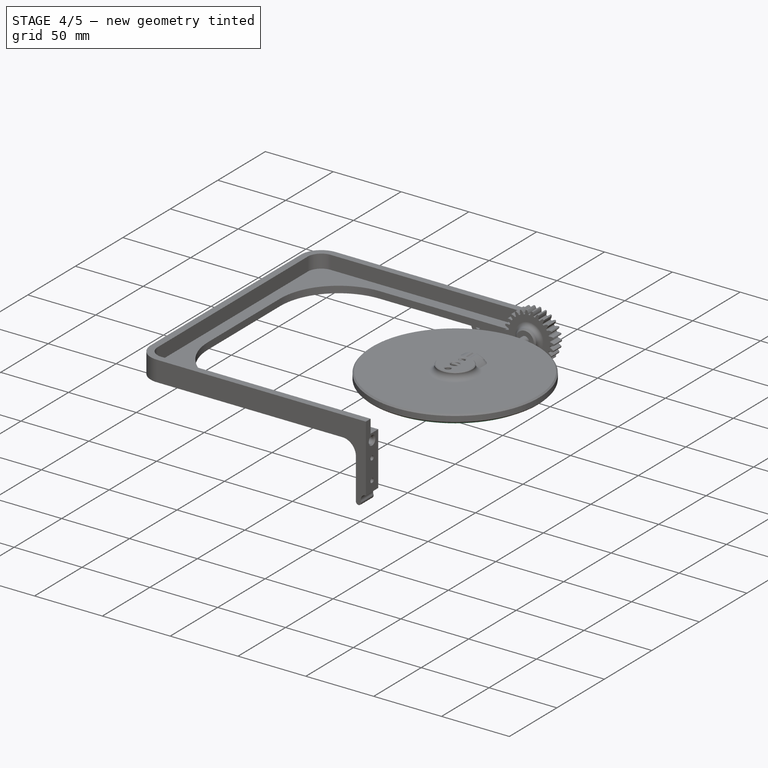
[diagram: stage 4 of 5 — iso view after this stage's code; geometry added in this stage tinted green]
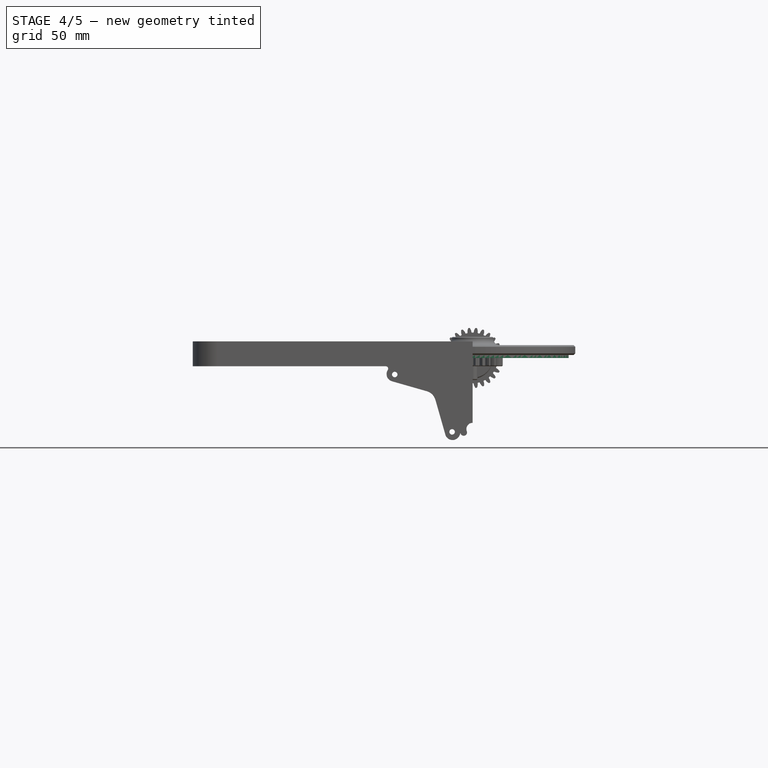
[diagram: stage 4 of 5 — front view after this stage's code; geometry added in this stage tinted green]
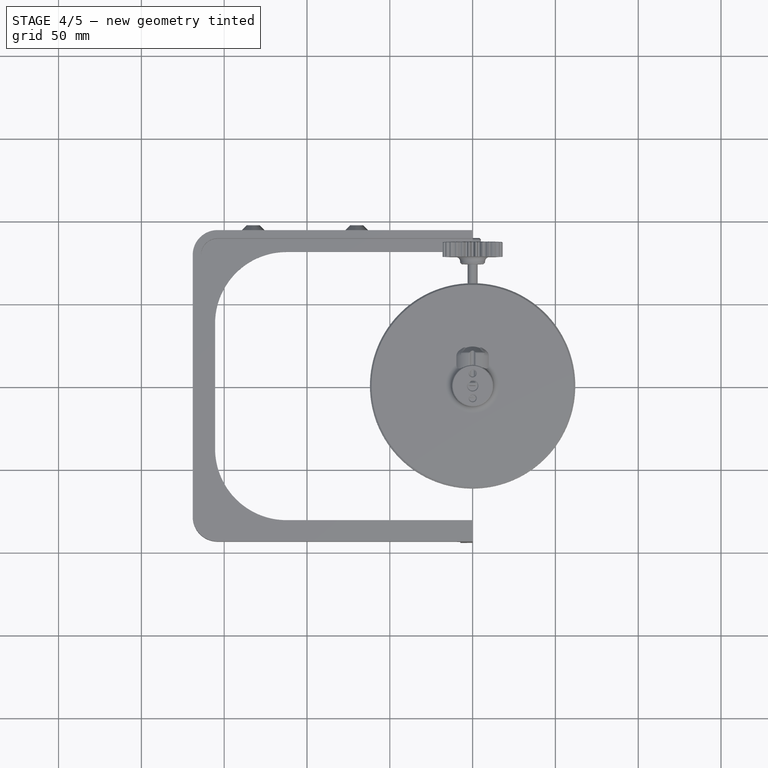
[diagram: stage 4 of 5 — top view after this stage's code; geometry added in this stage tinted green]
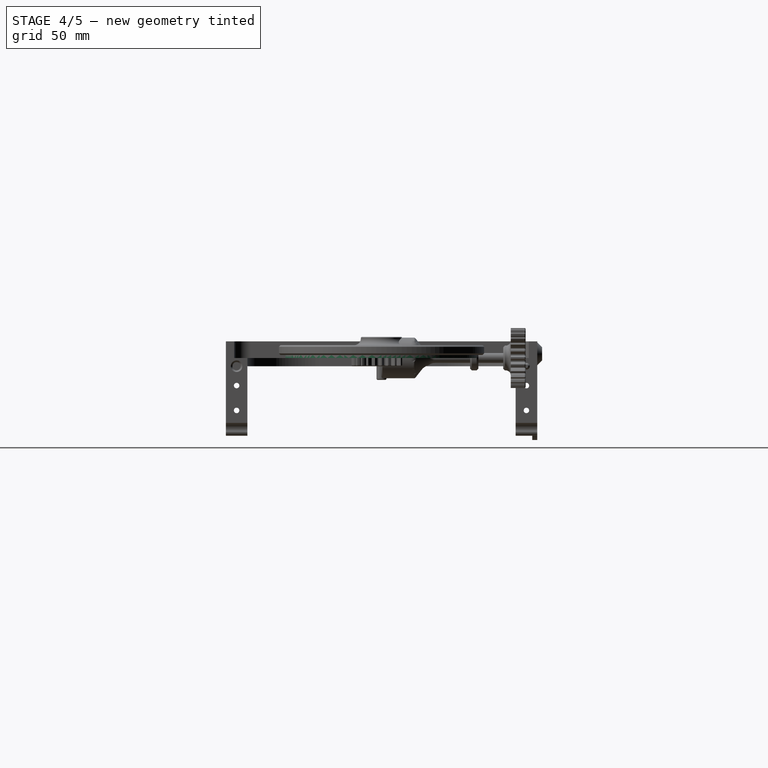
[diagram: stage 4 of 5 — right view after this stage's code; geometry added in this stage tinted green]
FEATURE [App::FeaturePython] Constraints  # WARN: FeaturePython — macro-defined, semantics opaque (R4)
  TreeRank = 0
  _LinkVersion = 1
  _Version = 1
FEATURE [Part::Plane] Plane002
  AttacherType = Attacher::AttachEngine3D
  InvalidShape = false
  Length = 300
  Placement = pos=(0,0,-11) rot=(1,0,0;3.14159rad)
  TreeRank = 0
  ValidateShape = false
  Width = 300
FEATURE [Sketcher::SketchObject] Sketch007
  ArcFitTolerance = 0
  AttachmentSupport = -> [Plane002]
  ExternalBSplineMaxDegree = 0
  ExternalBSplineTolerance = 0
  FullyConstrained = false
  InternalTolerance = 1e-06
  InvalidShape = false
  MakeInternals = false
  MapMode = 5
  Placement = pos=(0,0,-11) rot=(1,0,0;3.14159rad)
  Support = -> [Plane002]
  TreeRank = 0
  ValidateShape = false
  sketch-geometry (4):
    g0: Circle [constr] CenterX=-135 CenterY=65.5 CenterZ=0 NormalX=0 NormalY=0 NormalZ=1 AngleXU=0 Radius=8
    g1: Circle [constr] CenterX=135 CenterY=65.5 CenterZ=0 NormalX=0 NormalY=0 NormalZ=1 AngleXU=0 Radius=8
    g2: Circle CenterX=135 CenterY=-65.5 CenterZ=0 NormalX=0 NormalY=0 NormalZ=1 AngleXU=0 Radius=8
    g3: Circle [constr] CenterX=-135 CenterY=-65.5 CenterZ=0 NormalX=0 NormalY=0 NormalZ=1 AngleXU=0 Radius=8
  constraints (9):
    c: Symmetric(g0,g1,g-2)
    c: Symmetric(g3,g2,g-2)
    c: Symmetric(g3,g0,g-1)
    c: Equal(g0,g1)
    c: Equal(g1,g2)
    c: Equal(g2,g3)
    c: Diameter(g1) = 16
    c: DistanceY(g2,g1) = 131
    c: DistanceX(g3,g2) = 270
FEATURE [Sketcher::SketchObject] CopySketch004
  ArcFitTolerance = 0
  ExternalBSplineMaxDegree = 0
  ExternalBSplineTolerance = 0
  FullyConstrained = false
  InternalTolerance = 1e-06
  InvalidShape = false
  MakeInternals = false
  Placement = pos=(0,0,250.5) rot=(0,0,1;0rad)
  TreeRank = 0
  ValidateShape = false
  sketch-geometry (8):
    g0: ArcOfCircle CenterX=112.315 CenterY=-37.8146 CenterZ=0 NormalX=0 NormalY=0 NormalZ=1 AngleXU=0 Radius=38.1854 StartAngle=4.71239 EndAngle=6.28319
    g1: ArcOfCircle CenterX=112.315 CenterY=37.8146 CenterZ=0 NormalX=0 NormalY=0 NormalZ=1 AngleXU=0 Radius=38.1854 StartAngle=2e-16 EndAngle=1.5708
    g2: ArcOfCircle CenterX=-112.315 CenterY=37.8146 CenterZ=0 NormalX=0 NormalY=0 NormalZ=1 AngleXU=0 Radius=38.1854 StartAngle=1.5708 EndAngle=3.14159
    g3: ArcOfCircle CenterX=-112.315 CenterY=-37.8146 CenterZ=0 NormalX=0 NormalY=0 NormalZ=1 AngleXU=0 Radius=38.1854 StartAngle=3.14159 EndAngle=4.71239
    g4: LineSegment StartX=150.5 StartY=-37.8146 StartZ=0 EndX=150.5 EndY=37.8146 EndZ=0
    g5: LineSegment StartX=112.315 StartY=-76 StartZ=0 EndX=-112.315 EndY=-76 EndZ=0
    g6: LineSegment StartX=-150.5 StartY=-37.8146 StartZ=0 EndX=-150.5 EndY=37.8146 EndZ=0
    g7: LineSegment StartX=112.315 StartY=76 StartZ=0 EndX=-112.315 EndY=76 EndZ=0
  constraints (14):
    c: Symmetric(g4,g6,g-2)
    c: Symmetric(g6,g4,g-2)
    c: Symmetric(g4,g4,g-1)
    c: Symmetric(g5,g7,g-1)
    c: Symmetric(g5,g7,g-1)
    c: Symmetric(g5,g5,g-2)
    c: Tangent(g0,g4) = -1.5708
    c: Tangent(g4,g1) = -1.5708
    c: Tangent(g1,g7) = -1.5708
    c: Tangent(g2,g7) = -1.5708
    c: Tangent(g6,g2) = 1.5708
    c: Tangent(g3,g6) = 1.5708
    c: Tangent(g3,g5) = 1.5708
    c: Tangent(g0,g5) = 1.5708
FEATURE [Part::Plane] Plane
  AttacherType = Attacher::AttachEngine3D
  InvalidShape = false
  Length = 300
  Placement = pos=(0,0,242.5) rot=(0,0,1;0rad)
  TreeRank = 0
  ValidateShape = false
  Width = 300
FEATURE [Sketcher::SketchObject] Sketch
  ArcFitTolerance = 0
  AttachmentSupport = -> [XY_Plane]
  ExternalBSplineMaxDegree = 0
  ExternalBSplineTolerance = 0
  FullyConstrained = false
  InternalTolerance = 1e-06
  InvalidShape = false
  MakeInternals = false
  MapMode = 5
  Support = -> [XY_Plane]
  TreeRank = 0
  ValidateShape = false
  sketch-geometry (4):
    g0: LineSegment StartX=-156 StartY=82 StartZ=0 EndX=156 EndY=82 EndZ=0
    g1: LineSegment StartX=156 StartY=82 StartZ=0 EndX=156 EndY=-82 EndZ=0
    g2: LineSegment StartX=156 StartY=-82 StartZ=0 EndX=-156 EndY=-82 EndZ=0
    g3: LineSegment StartX=-156 StartY=-82 StartZ=0 EndX=-156 EndY=82 EndZ=0
  constraints (10):
    c: Coincident(g0,g1)
    c: Coincident(g1,g2)
    c: Coincident(g2,g3)
    c: Coincident(g3,g0)
    c: Horizontal(g2)
    c: Vertical(g1)
    c: Symmetric(g0,g2,g-1)
    c: Symmetric(g0,g0,g-2)
    c: DistanceX(g0,g0) = 312
    c: DistanceY(g3,g3) = 164
FEATURE [PartDesign::Pad] Pad
  AddSubType = 0
  AllowMultiFace = false
  AutoTaperInnerAngle = true
  CheckUpToFaceLimits = true
  ClaimChildren = false
  Direction = (1,1,1)
  Fit = 0
  FitJoin = 0
  InnerFit = 0
  InnerFitJoin = 0
  InvalidShape = false
  Length = 270
  Length2 = 100
  NewSolid = false
  Profile = -> Sketch
  Suppress = false
  TaperInnerAngle = 0
  TaperInnerAngleRev = 0
  TreeRank = 0
  Type = 0
  ValidateShape = true
  _ProfileBasedVersion = 0
FEATURE [Sketcher::SketchObject] Sketch001
  ArcFitTolerance = 0
  AttachmentSupport = -> [Pad]
  ExternalBSplineMaxDegree = 0
  ExternalBSplineTolerance = 0
  FullyConstrained = false
  InternalTolerance = 1e-06
  InvalidShape = false
  MakeInternals = false
  MapMode = 5
  Placement = pos=(0,0,270) rot=(0,0,1;0rad)
  Support = -> [Pad]
  TreeRank = 0
  ValidateShape = false
  sketch-geometry (4):
    g0: LineSegment StartX=-163 StartY=88 StartZ=0 EndX=163 EndY=88 EndZ=0
    g1: LineSegment StartX=163 StartY=88 StartZ=0 EndX=163 EndY=-88 EndZ=0
    g2: LineSegment StartX=163 StartY=-88 StartZ=0 EndX=-163 EndY=-88 EndZ=0
    g3: LineSegment StartX=-163 StartY=-88 StartZ=0 EndX=-163 EndY=88 EndZ=0
  constraints (10):
    c: Coincident(g0,g1)
    c: Coincident(g1,g2)
    c: Coincident(g2,g3)
    c: Coincident(g3,g0)
    c: Horizontal(g2)
    c: Vertical(g1)
    c: DistanceX(g0,g0) = 326
    c: DistanceY(g3,g3) = 176
    c: Symmetric(g0,g2,g-1)
    c: Symmetric(g0,g0,g-2)
FEATURE [PartDesign::Pad] Pad001
  AddSubType = 0
  AllowMultiFace = false
  AutoTaperInnerAngle = true
  BaseFeature = -> Pad
  CheckUpToFaceLimits = true
  ClaimChildren = false
  Direction = (1,1,1)
  Fit = 0
  FitJoin = 0
  InnerFit = 0
  InnerFitJoin = 0
  InvalidShape = false
  Length = 1.5
  Length2 = 100
  NewSolid = false
  Profile = -> Sketch001
  Suppress = false
  TaperInnerAngle = 0
  TaperInnerAngleRev = 0
  TreeRank = 0
  Type = 0
  ValidateShape = true
  _ProfileBasedVersion = 0
FEATURE [PartDesign::Fillet] Fillet
  AddSubType = 0
  Base = -> Pad001 [Edge22,Edge18,Edge17,Edge20]
  BaseFeature = -> Pad001
  InvalidShape = false
  NewSolid = false
  Radius = 10
  SupportTransform = false
  Suppress = false
  TreeRank = 0
  UseAllEdges = false
  ValidateShape = true
FEATURE [Sketcher::SketchObject] Sketch002
  ArcFitTolerance = 0
  AttachmentSupport = -> [Fillet]
  ExternalBSplineMaxDegree = 0
  ExternalBSplineTolerance = 0
  ExternalGeometry = -> [Fillet]
  FullyConstrained = false
  InternalTolerance = 1e-06
  InvalidShape = false
  MakeInternals = false
  MapMode = 5
  Placement = pos=(0,0,271.5) rot=(0,0,1;0rad)
  Support = -> [Fillet]
  TreeRank = 0
  ValidateShape = false
  sketch-geometry (8):
    g0: LineSegment StartX=-158 StartY=78 StartZ=0 EndX=-158 EndY=-78 EndZ=0
    g1: LineSegment StartX=-153 StartY=-83 StartZ=0 EndX=153 EndY=-83 EndZ=0
    g2: LineSegment StartX=158 StartY=-78 StartZ=0 EndX=158 EndY=78 EndZ=0
    g3: LineSegment StartX=153 StartY=83 StartZ=0 EndX=-153 EndY=83 EndZ=0
    g4: ArcOfCircle CenterX=-153 CenterY=78 CenterZ=0 NormalX=0 NormalY=0 NormalZ=1 AngleXU=0 Radius=5 StartAngle=1.5708 EndAngle=3.14159
    g5: ArcOfCircle CenterX=-153 CenterY=-78 CenterZ=0 NormalX=0 NormalY=0 NormalZ=1 AngleXU=0 Radius=5 StartAngle=3.14159 EndAngle=4.71239
    g6: ArcOfCircle CenterX=153 CenterY=-78 CenterZ=0 NormalX=0 NormalY=0 NormalZ=1 AngleXU=0 Radius=5 StartAngle=4.71239 EndAngle=6.28319
    g7: ArcOfCircle CenterX=153 CenterY=78 CenterZ=0 NormalX=0 NormalY=0 NormalZ=1 AngleXU=0 Radius=5 StartAngle=-9e-16 EndAngle=1.5708
  constraints (17):
    c: Vertical(g0)
    c: Horizontal(g1)
    c: Symmetric(g1,g3,g-1)
    c: Symmetric(g3,g1,g-1)
    c: Symmetric(g0,g2,g-2)
    c: Symmetric(g2,g0,g-2)
    c: Tangent(g7,g3) = -1.5708
    c: Tangent(g7,g2) = -1.5708
    c: Tangent(g6,g2) = -1.5708
    c: Tangent(g1,g6) = -1.5708
    c: Tangent(g1,g5) = -1.5708
    c: Tangent(g5,g0) = -1.5708
    c: Tangent(g4,g0) = -1.5708
    c: Tangent(g4,g3) = -1.5708
    c: DistanceY(g3,g-10) = 5
    c: DistanceX(g-4,g0) = 5
    c: Horizontal(g-4,g0)
FEATURE [PartDesign::Pad] Pad002
  AddSubType = 0
  AllowMultiFace = false
  AutoTaperInnerAngle = true
  BaseFeature = -> Fillet
  CheckUpToFaceLimits = true
  ClaimChildren = false
  Direction = (1,1,1)
  Fit = 0
  FitJoin = 0
  InnerFit = 0
  InnerFitJoin = 0
  InvalidShape = false
  Length = 3
  Length2 = 100
  NewSolid = false
  Profile = -> Sketch002
  Suppress = false
  TaperInnerAngle = 0
  TaperInnerAngleRev = 0
  TreeRank = 0
  Type = 0
  ValidateShape = true
  _ProfileBasedVersion = 0
FEATURE [PartDesign::Draft] Draft
  AddSubType = 0
  Angle = 45
  Base = -> Pad002 [Face21,Face22,Face23,Face16,Face17,Face18,Face19,Face20]
  BaseFeature = -> Pad002
  InvalidShape = false
  NeutralPlane = -> Pad002 [Face24]
  NewSolid = false
  SupportTransform = false
  Suppress = false
  TreeRank = 0
  ValidateShape = true
FEATURE [PartDesign::Fillet] Fillet001
  AddSubType = 0
  Base = -> Draft [Edge59,Edge60,Edge44,Edge43,Edge42,Edge57,Edge55,Edge41,Edge53,Edge40,Edge51,Edge49,Edge38,Edge39,Edge47,Edge37]
  BaseFeature = -> Draft
  InvalidShape = false
  NewSolid = false
  Radius = 4
  SupportTransform = false
  Suppress = false
  TreeRank = 0
  UseAllEdges = false
  ValidateShape = true
FEATURE [App::FeaturePython] Constraints002  label="constraints"  # WARN: FeaturePython — macro-defined, semantics opaque (R4)
  TreeRank = 0
  _LinkVersion = 1
  _Version = 1
FEATURE [App::FeaturePython] Constraints003  # WARN: FeaturePython — macro-defined, semantics opaque (R4)
  TreeRank = 0
  _LinkVersion = 1
  _Version = 1
FEATURE [Sketcher::SketchObject] Sketch026
  ArcFitTolerance = 0
  AttachmentSupport = -> [XY_Plane002]
  ExternalBSplineMaxDegree = 0
  ExternalBSplineTolerance = 0
  FullyConstrained = false
  InternalTolerance = 1e-06
  InvalidShape = false
  MakeInternals = false
  MapMode = 5
  Support = -> [XY_Plane002]
  TreeRank = 0
  ValidateShape = false
  sketch-geometry (1):
    g0: Circle CenterX=0 CenterY=0 CenterZ=0 NormalX=0 NormalY=0 NormalZ=1 AngleXU=0 Radius=21
  constraints (2):
    c: Coincident(g0,g-1)
    c: Diameter(g0) = 42
FEATURE [PartDesign::Pad] Pad015
  AddSubType = 0
  AutoTaperInnerAngle = true
  CheckUpToFaceLimits = true
  ClaimChildren = false
  Direction = (1,1,1)
  Fit = 0
  FitJoin = 0
  InnerFit = 0
  InnerFitJoin = 0
  InvalidShape = false
  Length = 22.25
  Length2 = 100
  Midplane = true
  NewSolid = false
  Profile = -> Sketch026
  Suppress = false
  TaperInnerAngle = 0
  TaperInnerAngleRev = 0
  TreeRank = 0
  Type = 0
  ValidateShape = true
  _ProfileBasedVersion = 0
FEATURE [Sketcher::SketchObject] Sketch027
  ArcFitTolerance = 0
  AttachmentSupport = -> [Pad015]
  ExternalBSplineMaxDegree = 0
  ExternalBSplineTolerance = 0
  FullyConstrained = false
  InternalTolerance = 1e-06
  InvalidShape = false
  MakeInternals = false
  MapMode = 5
  Placement = pos=(0,0,-11.125) rot=(1,0,0;3.14159rad)
  Support = -> [Pad015]
  TreeRank = 0
  ValidateShape = false
  sketch-geometry (1):
    g0: Circle CenterX=0 CenterY=0 CenterZ=0 NormalX=0 NormalY=0 NormalZ=1 AngleXU=0 Radius=4.95
  constraints (2):
    c: Coincident(g0,g-1)
    c: Diameter(g0) = 9.9
FEATURE [PartDesign::Pad] Pad016
  AddSubType = 0
  AutoTaperInnerAngle = true
  BaseFeature = -> Pad015
  CheckUpToFaceLimits = true
  ClaimChildren = false
  Direction = (1,1,1)
  Fit = 0
  FitJoin = 0
  InnerFit = 0
  InnerFitJoin = 0
  InvalidShape = false
  Length = 1.5
  Length2 = 100
  NewSolid = false
  Profile = -> Sketch027
  Suppress = false
  TaperInnerAngle = 0
  TaperInnerAngleRev = 0
  TreeRank = 0
  Type = 0
  ValidateShape = true
  _ProfileBasedVersion = 0
FEATURE [Part::Plane] Plane003
  AttacherType = Attacher::AttachEngine3D
  InvalidShape = false
  Length = 50
  Placement = pos=(0,0,-8.73) rot=(1,0,0;3.14159rad)
  TreeRank = 0
  ValidateShape = false
  Width = 50
FEATURE [Sketcher::SketchObject] Sketch028
  ArcFitTolerance = 0
  AttachmentSupport = -> [Plane003]
  ExternalBSplineMaxDegree = 0
  ExternalBSplineTolerance = 0
  ExternalGeometry = -> [Pad016]
  FullyConstrained = false
  InternalTolerance = 1e-06
  InvalidShape = false
  MakeInternals = false
  MapMode = 5
  Placement = pos=(0,0,-8.73) rot=(1,0,0;3.14159rad)
  Support = -> [Plane003]
  TreeRank = 0
  ValidateShape = false
  sketch-geometry (5):
    g0: ArcOfCircle CenterX=0 CenterY=0 CenterZ=0 NormalX=0 NormalY=0 NormalZ=1 AngleXU=0 Radius=21 StartAngle=1.26361 EndAngle=1.87799
    g1: LineSegment StartX=-6.35 StartY=20.0169 StartZ=0 EndX=-6.35 EndY=26.5 EndZ=0
    g2: LineSegment StartX=-6.35 StartY=26.5 StartZ=0 EndX=6.35 EndY=26.5 EndZ=0
    g3: LineSegment StartX=6.35 StartY=26.5 StartZ=0 EndX=6.35 EndY=20.0169 EndZ=0
    g4: LineSegment [constr] StartX=0 StartY=26.5 StartZ=0 EndX=0 EndY=21 EndZ=0
  constraints (16):
    c: Coincident(g0,g-1)
    c: PointOnObject(g0,g-3)
    c: Coincident(g0,g1)
    c: Coincident(g1,g2)
    c: Horizontal(g2)
    c: Coincident(g2,g3)
    c: Coincident(g3,g0)
    c: Vertical(g3)
    c: Symmetric(g0,g0,g-2)
    c: Vertical(g1)
    c: DistanceX(g2,g2) = 12.7
    c: PointOnObject(g4,g-2)
    c: PointOnObject(g4,g0)
    c: PointOnObject(g4,g-2)
    c: PointOnObject(g4,g2)
    c: DistanceY(g4,g4) = 5.5
FEATURE [PartDesign::Pad] Pad009
  AddSubType = 0
  AutoTaperInnerAngle = true
  BaseFeature = -> Pad016
  CheckUpToFaceLimits = true
  ClaimChildren = false
  Direction = (1,1,1)
  Fit = 0
  FitJoin = 0
  InnerFit = 0
  InnerFitJoin = 0
  InvalidShape = false
  Length = 11.8
  Length2 = 100
  NewSolid = false
  Profile = -> Sketch028
  Reversed = true
  Suppress = false
  TaperInnerAngle = 0
  TaperInnerAngleRev = 0
  TreeRank = 0
  Type = 0
  ValidateShape = true
  _ProfileBasedVersion = 0
FEATURE [Sketcher::SketchObject] Sketch021
  ArcFitTolerance = 0
  AttachmentSupport = -> [Pad009]
  ExternalBSplineMaxDegree = 0
  ExternalBSplineTolerance = 0
  ExternalGeometry = -> [Pad009]
  FullyConstrained = false
  InternalTolerance = 1e-06
  InvalidShape = false
  MakeInternals = false
  MapMode = 5
  Placement = pos=(0,9e-16,3.07) rot=(0,0,1;0rad)
  Support = -> [Pad009]
  TreeRank = 0
  ValidateShape = false
  sketch-geometry (4):
    g0: ArcOfCircle CenterX=-4.3e-15 CenterY=-1e-16 CenterZ=0 NormalX=0 NormalY=0 NormalZ=1 AngleXU=0 Radius=21 StartAngle=4.4052 EndAngle=5.01958
    g1: ArcOfCircle CenterX=-4.3e-15 CenterY=-1e-16 CenterZ=0 NormalX=0 NormalY=0 NormalZ=1 AngleXU=0 Radius=21.7161 StartAngle=4.41564 EndAngle=5.00914
    g2: LineSegment StartX=-6.35 StartY=-20.0169 StartZ=0 EndX=-6.35 EndY=-20.7669 EndZ=0
    g3: LineSegment StartX=6.35 StartY=-20.0169 StartZ=0 EndX=6.35 EndY=-20.7669 EndZ=0
  constraints (11):
    c: Coincident(g0,g-3)
    c: Coincident(g0,g-3)
    c: Equal(g-3,g0)
    c: Coincident(g1,g0)
    c: Coincident(g2,g0)
    c: Vertical(g2)
    c: Coincident(g3,g0)
    c: Vertical(g3)
    c: Coincident(g1,g2)
    c: Coincident(g3,g1)
    c: DistanceY(g3,g3) = 0.75
FEATURE [PartDesign::Pad] Pad010
  AddSubType = 0
  AutoTaperInnerAngle = true
  BaseFeature = -> Pad009
  CheckUpToFaceLimits = true
  ClaimChildren = false
  Direction = (1,1,1)
  Fit = 0
  FitJoin = 0
  InnerFit = 0
  InnerFitJoin = 0
  InvalidShape = false
  Length = 2.2
  Length2 = 100
  NewSolid = false
  Profile = -> Sketch021
  Suppress = false
  TaperInnerAngle = 0
  TaperInnerAngleRev = 0
  TreeRank = 0
  Type = 0
  ValidateShape = true
  _ProfileBasedVersion = 0
FEATURE [Sketcher::SketchObject] Sketch022
  ArcFitTolerance = 0
  AttachmentSupport = -> [Pad010]
  ExternalBSplineMaxDegree = 0
  ExternalBSplineTolerance = 0
  ExternalGeometry = -> [Pad010]
  FullyConstrained = false
  InternalTolerance = 1e-06
  InvalidShape = false
  MakeInternals = false
  MapMode = 5
  Placement = pos=(0,0,11.125) rot=(0,0,1;0rad)
  Support = -> [Pad010]
  TreeRank = 0
  ValidateShape = false
  sketch-geometry (12):
    g0: Circle CenterX=24.5 CenterY=0 CenterZ=0 NormalX=0 NormalY=0 NormalZ=1 AngleXU=0 Radius=1.5
    g1: ArcOfCircle CenterX=24.5 CenterY=0 CenterZ=0 NormalX=0 NormalY=0 NormalZ=1 AngleXU=0 Radius=4.25 StartAngle=5.46517 EndAngle=7.1012
    g2: LineSegment StartX=27.4056 StartY=3.1016 StartZ=0 EndX=14.3571 EndY=15.3255 EndZ=0
    g3: LineSegment StartX=27.4056 StartY=-3.1016 StartZ=0 EndX=14.3571 EndY=-15.3255 EndZ=0
    g4: Circle CenterX=-24.5 CenterY=0 CenterZ=0 NormalX=0 NormalY=0 NormalZ=1 AngleXU=0 Radius=1.5
    g5: ArcOfCircle CenterX=-24.5 CenterY=0 CenterZ=0 NormalX=0 NormalY=0 NormalZ=1 AngleXU=0 Radius=4.25 StartAngle=2.32358 EndAngle=3.9596
    g6: LineSegment StartX=-27.4056 StartY=-3.1016 StartZ=0 EndX=-14.3571 EndY=-15.3256 EndZ=0
    g7: LineSegment StartX=-27.4056 StartY=3.1016 StartZ=0 EndX=-14.3571 EndY=15.3255 EndZ=0
    g8: GeomPoint [constr] X=-28.75 Y=0 Z=0
    g9: GeomPoint [constr] X=28.75 Y=0 Z=0
    g10: ArcOfCircle CenterX=2.3e-15 CenterY=-1.1e-15 CenterZ=0 NormalX=0 NormalY=0 NormalZ=1 AngleXU=0 Radius=21 StartAngle=2.32358 EndAngle=3.95961
    g11: ArcOfCircle CenterX=4e-16 CenterY=-1.3e-15 CenterZ=0 NormalX=0 NormalY=0 NormalZ=1 AngleXU=0 Radius=21 StartAngle=5.46517 EndAngle=7.1012
  constraints (30):
    c: PointOnObject(g0,g-1)
    c: Coincident(g1,g0)
    c: Diameter(g0) = 3
    c: PointOnObject(g2,g-3)
    c: PointOnObject(g3,g-3)
    c: Tangent(g2,g-3)
    c: Tangent(g3,g-3)
    c: Coincident(g5,g4)
    c: PointOnObject(g7,g-3)
    c: PointOnObject(g6,g-3)
    c: Tangent(g7,g-3)
    c: Tangent(g7,g5) = 1.5708
    c: Tangent(g6,g5) = -1.5708
    c: Equal(g4,g0)
    c: Symmetric(g4,g0,g-2)
    c: Tangent(g2,g1) = -1.5708
    c: Tangent(g3,g1) = 1.5708
    c: DistanceX(g4,g0) = 49
    c: Symmetric(g5,g1,g-2)
    c: PointOnObject(g8,g-1)
    c: PointOnObject(g8,g5)
    c: PointOnObject(g9,g-1)
    c: PointOnObject(g9,g1)
    c: DistanceX(g8,g9) = 57.5
    c: Coincident(g10,g7)
    c: Coincident(g10,g6)
    c: Equal(g10,g-3)
    c: Coincident(g11,g2)
    c: Coincident(g11,g3)
    c: Equal(g11,g-3)
FEATURE [PartDesign::Pad] Pad011
  AddSubType = 0
  AutoTaperInnerAngle = true
  BaseFeature = -> Pad010
  CheckUpToFaceLimits = true
  ClaimChildren = false
  Direction = (1,1,1)
  Fit = 0
  FitJoin = 0
  InnerFit = 0
  InnerFitJoin = 0
  InvalidShape = false
  Length = 1
  Length2 = 100
  NewSolid = false
  Profile = -> Sketch022
  Reversed = true
  Suppress = false
  TaperInnerAngle = 0
  TaperInnerAngleRev = 0
  TreeRank = 0
  Type = 0
  ValidateShape = true
  _ProfileBasedVersion = 0
FEATURE [Sketcher::SketchObject] Sketch023
  ArcFitTolerance = 0
  AttachmentSupport = -> [Pad011]
  ExternalBSplineMaxDegree = 0
  ExternalBSplineTolerance = 0
  ExternalGeometry = -> [Pad011]
  FullyConstrained = false
  InternalTolerance = 1e-06
  InvalidShape = false
  MakeInternals = false
  MapMode = 5
  Placement = pos=(0,0,11.125) rot=(0,0,1;0rad)
  Support = -> [Pad011]
  TreeRank = 0
  ValidateShape = false
  sketch-geometry (1):
    g0: Circle CenterX=0 CenterY=0 CenterZ=0 NormalX=0 NormalY=0 NormalZ=1 AngleXU=0 Radius=4.95
  constraints (2):
    c: Coincident(g0,g-1)
    c: Equal(g-3,g0)
FEATURE [PartDesign::Pad] Pad012
  AddSubType = 0
  AutoTaperInnerAngle = true
  BaseFeature = -> Pad011
  CheckUpToFaceLimits = true
  ClaimChildren = false
  Direction = (1,1,1)
  Fit = 0
  FitJoin = 0
  InnerFit = 0
  InnerFitJoin = 0
  InvalidShape = false
  Length = 1.5
  Length2 = 100
  NewSolid = false
  Profile = -> Sketch023
  Suppress = false
  TaperInnerAngle = 0
  TaperInnerAngleRev = 0
  TreeRank = 0
  Type = 0
  ValidateShape = true
  _ProfileBasedVersion = 0
FEATURE [Sketcher::SketchObject] Sketch024
  ArcFitTolerance = 0
  AttachmentSupport = -> [Pad012]
  ExternalBSplineMaxDegree = 0
  ExternalBSplineTolerance = 0
  FullyConstrained = false
  InternalTolerance = 1e-06
  InvalidShape = false
  MakeInternals = false
  MapMode = 5
  Placement = pos=(0,0,12.625) rot=(0,0,1;0rad)
  Support = -> [Pad012]
  TreeRank = 0
  ValidateShape = false
  sketch-geometry (1):
    g0: Circle CenterX=0 CenterY=0 CenterZ=0 NormalX=0 NormalY=0 NormalZ=1 AngleXU=0 Radius=1.5
  constraints (2):
    c: Coincident(g0,g-1)
    c: Diameter(g0) = 3
FEATURE [PartDesign::Pad] Pad013
  AddSubType = 0
  AutoTaperInnerAngle = true
  BaseFeature = -> Pad012
  CheckUpToFaceLimits = true
  ClaimChildren = false
  Direction = (1,1,1)
  Fit = 0
  FitJoin = 0
  InnerFit = 0
  InnerFitJoin = 0
  InvalidShape = false
  Length = 2
  Length2 = 100
  NewSolid = false
  Profile = -> Sketch024
  Suppress = false
  TaperInnerAngle = 0
  TaperInnerAngleRev = 0
  TreeRank = 0
  Type = 0
  ValidateShape = true
  _ProfileBasedVersion = 0
FEATURE [Part::Part2DObjectPython] InvoluteGear  # Draft 2D object (typed FeaturePython)
  AddendumCoefficient = 1
  AttachmentSupport = -> [Pad013]
  DedendumCoefficient = 1.25
  ExternalGear = true
  HighPrecision = true
  InvalidShape = false
  MapMode = 5
  Modules = 0.5
  NumberOfTeeth = 17
  Placement = pos=(0,0,14.625) rot=(0,0,1;0rad)
  PressureAngle = 25
  ProfileShiftCoefficient = 0
  RootFilletCoefficient = 0.375
  Support = -> [Pad013]
  TreeRank = 0
  ValidateShape = false
FEATURE [PartDesign::Pad] Pad014
  AddSubType = 0
  AutoTaperInnerAngle = true
  BaseFeature = -> Pad013
  CheckUpToFaceLimits = true
  ClaimChildren = false
  Direction = (1,1,1)
  Fit = 0
  FitJoin = 0
  InnerFit = 0
  InnerFitJoin = 0
  InvalidShape = false
  Length = 8
  Length2 = 100
  NewSolid = false
  Profile = -> InvoluteGear
  Suppress = false
  TaperInnerAngle = 0
  TaperInnerAngleRev = 0
  TreeRank = 0
  Type = 0
  ValidateShape = true
  _ProfileBasedVersion = 0
FEATURE [PartDesign::Body] Body009
  AutoGroupSolids = false
  ClaimAllChildren = false
  ExportMode = 0
  Group = -> [Sketch053,Revolution002,Draft005]
  InvalidShape = false
  Origin = -> Origin009
  SingleSolid = true
  Tip = -> Draft005
  TreeRank = 0
  ValidateShape = false
  _ExportChildren = -> [Revolution002,Draft005]
  _GroupVersion = 1
FEATURE [App::FeaturePython] Constraints010  # WARN: FeaturePython — macro-defined, semantics opaque (R4)
  TreeRank = 0
  _LinkVersion = 1
  _Version = 1
FEATURE [Part::FeaturePython] Parts010  # WARN: FeaturePython — macro-defined, semantics opaque (R4)
  Group = -> [Body009]
  GroupMode = 0
  InvalidShape = false
  TreeRank = 0
  ValidateShape = false
  _LinkVersion = 1
FEATURE [Sketcher::SketchObject] Sketch054
  ArcFitTolerance = 0
  ExternalBSplineMaxDegree = 0
  ExternalBSplineTolerance = 0
  FullyConstrained = false
  InternalTolerance = 1e-06
  InvalidShape = false
  MakeInternals = false
  MapMode = 5
  Placement = pos=(0,0,0) rot=(0,0.707107,0.707107;3.14159rad)
  TreeRank = 0
  ValidateShape = false
  sketch-geometry (10):
    g0: LineSegment [constr] StartX=0 StartY=0 StartZ=0 EndX=-55 EndY=0 EndZ=0
    g1: LineSegment [constr] StartX=-55 StartY=0 StartZ=0 EndX=-55 EndY=4.75 EndZ=0
    g2: LineSegment StartX=-52 StartY=0 StartZ=0 EndX=-58 EndY=0 EndZ=0
    g3: LineSegment StartX=-58 StartY=0 StartZ=0 EndX=-58 EndY=1.75 EndZ=0
    g4: LineSegment StartX=-52 StartY=0 StartZ=0 EndX=-52 EndY=1.75 EndZ=0
    g5: LineSegment StartX=-58 StartY=1.75 StartZ=0 EndX=-56 EndY=1.75 EndZ=0
    g6: LineSegment StartX=-52 StartY=1.75 StartZ=0 EndX=-54 EndY=1.75 EndZ=0
    g7: LineSegment StartX=-56 StartY=1.75 StartZ=0 EndX=-56 EndY=4.75 EndZ=0
    g8: LineSegment StartX=-56 StartY=4.75 StartZ=0 EndX=-54 EndY=4.75 EndZ=0
    g9: LineSegment StartX=-54 StartY=4.75 StartZ=0 EndX=-54 EndY=1.75 EndZ=0
  constraints (26):
    c: Coincident(g0,g-1)
    c: PointOnObject(g0,g-1)
    c: DistanceX(g0,g0) = 55
    c: Coincident(g1,g0)
    c: Vertical(g1)
    c: PointOnObject(g2,g0)
    c: Symmetric(g2,g2,g1)
    c: DistanceX(g2,g2) = 6
    c: Coincident(g3,g2)
    c: Coincident(g4,g2)
    c: Symmetric(g3,g4,g1)
    c: Vertical(g4)
    c: DistanceY(g3,g3) = 1.75
    c: Coincident(g5,g3)
    c: Coincident(g6,g4)
    c: Symmetric(g6,g5,g1)
    c: Horizontal(g5)
    c: DistanceX(g5,g5) = 2
    c: Coincident(g7,g5)
    c: Vertical(g7)
    c: Coincident(g8,g7)
    c: Coincident(g9,g8)
    c: Coincident(g9,g6)
    c: Symmetric(g7,g8,g1)
    c: DistanceY(g7,g7) = 3
    c: PointOnObject(g1,g8)
FEATURE [PartDesign::Revolution] Revolution003
  AddSubType = 0
  AllowMultiFace = false
  Angle = 360
  Axis = (-1e-16,2e-16,1)
  Base = (0,0,0)
  ClaimChildren = false
  Fit = 0
  FitJoin = 0
  InnerFit = 0
  InnerFitJoin = 0
  InvalidShape = false
  NewSolid = false
  Placement = pos=(0,0,0) rot=(0,0.707107,0.707107;3.14159rad)
  Profile = -> Sketch054
  ReferenceAxis = -> Sketch054 [V_Axis]
  Suppress = false
  TreeRank = 0
  ValidateShape = true
  _ProfileBasedVersion = 0
FEATURE [PartDesign::Draft] Draft006
  AddSubType = 0
  Angle = 5
  Base = -> Revolution003 [Face4,Face6]
  BaseFeature = -> Revolution003
  InvalidShape = false
  NeutralPlane = -> Revolution003 [Face3]
  NewSolid = false
  Placement = pos=(0,0,0) rot=(0,0.707107,0.707107;3.14159rad)
  Reversed = true
  SupportTransform = false
  Suppress = false
  TreeRank = 0
  ValidateShape = true
FEATURE [PartDesign::Body] Body010
  AutoGroupSolids = false
  ClaimAllChildren = false
  ExportMode = 0
  Group = -> [Sketch054,Revolution003,Draft006]
  InvalidShape = false
  Origin = -> Origin010
  SingleSolid = true
  Tip = -> Draft006
  TreeRank = 0
  ValidateShape = false
  _ExportChildren = -> [Revolution003,Draft006]
  _GroupVersion = 1
FEATURE [App::FeaturePython] Constraints011  # WARN: FeaturePython — macro-defined, semantics opaque (R4)
  TreeRank = 0
  _LinkVersion = 1
  _Version = 1
FEATURE [Part::FeaturePython] Parts011  # WARN: FeaturePython — macro-defined, semantics opaque (R4)
  Group = -> [Body010]
  GroupMode = 0
  InvalidShape = false
  TreeRank = 0
  ValidateShape = false
  _LinkVersion = 1
FEATURE [Sketcher::SketchObject] Sketch029
  ArcFitTolerance = 0
  AttachmentSupport = -> [XY_Plane003]
  ExternalBSplineMaxDegree = 0
  ExternalBSplineTolerance = 0
  FullyConstrained = false
  InternalTolerance = 1e-06
  InvalidShape = false
  MakeInternals = false
  MapMode = 5
  Support = -> [XY_Plane003]
  TreeRank = 0
  ValidateShape = false
  sketch-geometry (1):
    g0: Circle CenterX=0 CenterY=0 CenterZ=0 NormalX=0 NormalY=0 NormalZ=1 AngleXU=0 Radius=15
  constraints (2):
    c: Coincident(g0,g-1)
    c: Diameter(g0) = 30
FEATURE [PartDesign::Pad] Pad017
  AddSubType = 0
  AutoTaperInnerAngle = true
  CheckUpToFaceLimits = true
  ClaimChildren = false
  Direction = (1,1,1)
  Fit = 0
  FitJoin = 0
  InnerFit = 0
  InnerFitJoin = 0
  InvalidShape = false
  Length = 8
  Length2 = 100
  NewSolid = false
  Profile = -> Sketch029
  Suppress = false
  TaperInnerAngle = 0
  TaperInnerAngleRev = 0
  TreeRank = 0
  Type = 0
  ValidateShape = true
  _ProfileBasedVersion = 0
FEATURE [Sketcher::SketchObject] Sketch030
  ArcFitTolerance = 0
  AttachmentSupport = -> [Pad017]
  ExternalBSplineMaxDegree = 0
  ExternalBSplineTolerance = 0
  FullyConstrained = false
  InternalTolerance = 1e-06
  InvalidShape = false
  MakeInternals = false
  MapMode = 5
  Placement = pos=(0,0,8) rot=(0,0,1;0rad)
  Support = -> [Pad017]
  TreeRank = 0
  ValidateShape = false
  sketch-geometry (1):
    g0: Circle CenterX=0 CenterY=0 CenterZ=0 NormalX=0 NormalY=0 NormalZ=1 AngleXU=0 Radius=2
  constraints (2):
    c: Coincident(g0,g-1)
    c: Diameter(g0) = 4
FEATURE [PartDesign::Pocket] Pocket012
  AddSubType = 1
  AutoTaperInnerAngle = true
  BaseFeature = -> Pad017
  CheckUpToFaceLimits = true
  ClaimChildren = false
  Direction = (1,1,1)
  Fit = 0
  FitJoin = 0
  InnerFit = 0
  InnerFitJoin = 0
  InvalidShape = false
  Length = 6
  Length2 = 100
  NewSolid = false
  Profile = -> Sketch030
  Suppress = false
  TaperInnerAngle = 0
  TaperInnerAngleRev = 0
  TreeRank = 0
  Type = 0
  ValidateShape = true
  _ProfileBasedVersion = 0
  _Version = 0
FEATURE [PartDesign::SubShapeBinder] Binder
  BindCopyOnChange = 0
  BindMode = 0
  ClaimChildren = false
  Context = -> Assembly002 [Parts002.Assembly004.Parts004.Body003.Binder.]
  EdgeTolerance = 1e-06
  FillStyle = 0
  Fuse = false
  InvalidShape = false
  MakeFace = true
  MergeEdges = true
  OffsetFill = false
  OffsetIntersection = false
  OffsetJoinType = 0
  OffsetOpenResult = false
  Outline = false
  PartialLoad = false
  Refine = true
  Relative = true
  SplitEdges = false
  Support = -> [Assembly003[Parts003.Body002.Pad014.Face201]]
  TightBound = false
  TreeRank = 0
  ValidateShape = false
  _Version = 3
FEATURE [PartDesign::Pocket] Pocket013
  AddSubType = 1
  AutoTaperInnerAngle = true
  BaseFeature = -> Pocket012
  CheckUpToFaceLimits = true
  ClaimChildren = false
  Direction = (3.89386e-08,-1.84716e-07,1)
  Fit = 0
  FitJoin = 0
  InnerFit = 0
  InnerFitJoin = 0
  InvalidShape = false
  Length = 5
  Length2 = 100
  NewSolid = false
  Profile = -> Binder
  Suppress = false
  TaperInnerAngle = 0
  TaperInnerAngleRev = 0
  TreeRank = 0
  Type = 1
  ValidateShape = true
  _ProfileBasedVersion = 0
  _Version = 0
FEATURE [Sketcher::SketchObject] Sketch077
  ArcFitTolerance = 0
  AttachmentSupport = -> [Revolution004]
  ExternalBSplineMaxDegree = 0
  ExternalBSplineTolerance = 0
  FullyConstrained = false
  InternalTolerance = 1e-06
  InvalidShape = false
  MakeInternals = false
  MapMode = 5
  Placement = pos=(0,0,0) rot=(1,0,0;1.5708rad)
  Support = -> [Revolution004]
  TreeRank = 0
  ValidateShape = false
  sketch-geometry (2):
    g0: Circle CenterX=0 CenterY=7.5 CenterZ=0 NormalX=0 NormalY=0 NormalZ=1 AngleXU=0 Radius=1.65
    g1: Circle CenterX=0 CenterY=-7.5 CenterZ=0 NormalX=0 NormalY=0 NormalZ=1 AngleXU=0 Radius=1.65
  constraints (5):
    c: PointOnObject(g0,g-2)
    c: Symmetric(g0,g1,g-1)
    c: Equal(g0,g1)
    c: DistanceY(g1,g0) = 15
    c: Diameter(g0) = 3.3
FEATURE [PartDesign::Pocket] Pocket044
  AddSubType = 1
  AutoTaperInnerAngle = true
  BaseFeature = -> Revolution004
  CheckUpToFaceLimits = true
  ClaimChildren = false
  Direction = (1,1,1)
  Fit = 0
  FitJoin = 0
  InnerFit = 0
  InnerFitJoin = 0
  InvalidShape = false
  Length = 5
  Length2 = 100
  NewSolid = false
  Profile = -> Sketch077
  Suppress = false
  TaperInnerAngle = 0
  TaperInnerAngleRev = 0
  TreeRank = 0
  Type = 1
  ValidateShape = true
  _ProfileBasedVersion = 0
  _Version = 0
FEATURE [Part::Plane] Plane009
  AttacherType = Attacher::AttachEngine3D
  InvalidShape = false
  Length = 10
  Placement = pos=(0,4,0) rot=(0.57735,0.57735,0.57735;4.18879rad)
  TreeRank = 0
  ValidateShape = false
  Width = 10
FEATURE [Sketcher::SketchObject] Sketch078
  ArcFitTolerance = 0
  AttachmentSupport = -> [Plane009]
  ExternalBSplineMaxDegree = 0
  ExternalBSplineTolerance = 0
  ExternalGeometry = -> [Pocket044,Pocket]
  FullyConstrained = false
  InternalTolerance = 1e-06
  InvalidShape = false
  MakeInternals = false
  MapMode = 5
  Placement = pos=(0,4,0) rot=(-0.57735,-0.57735,-0.57735;2.0944rad)
  Support = -> [Plane009]
  TreeRank = 0
  ValidateShape = false
  sketch-geometry (8):
    g0: ArcOfCircle CenterX=7.5 CenterY=1.7e-15 CenterZ=0 NormalX=0 NormalY=0 NormalZ=1 AngleXU=0 Radius=3 StartAngle=1.98231 EndAngle=4.30087
    g1: ArcOfCircle CenterX=-7.5 CenterY=-1.7e-15 CenterZ=0 NormalX=0 NormalY=0 NormalZ=1 AngleXU=0 Radius=3 StartAngle=5.12391 EndAngle=7.44246
    g2: LineSegment StartX=6.3 StartY=2.74955 StartZ=0 EndX=11.4564 EndY=5 EndZ=0
    g3: LineSegment StartX=6.3 StartY=-2.74955 StartZ=0 EndX=11.4564 EndY=-5 EndZ=0
    g4: LineSegment StartX=-6.3 StartY=-2.74955 StartZ=0 EndX=-11.4564 EndY=-5 EndZ=0
    g5: LineSegment StartX=-6.3 StartY=2.74955 StartZ=0 EndX=-11.4564 EndY=5 EndZ=0
    g6: ArcOfCircle CenterX=0 CenterY=0 CenterZ=0 NormalX=0 NormalY=0 NormalZ=1 AngleXU=0 Radius=12.5 StartAngle=5.87167 EndAngle=6.6947
    g7: ArcOfCircle CenterX=0 CenterY=0 CenterZ=0 NormalX=0 NormalY=0 NormalZ=1 AngleXU=0 Radius=12.5 StartAngle=2.73008 EndAngle=3.55311
  constraints (12):
    c: Equal(g0,g1)
    c: Tangent(g4,g1) = 1.5708
    c: Tangent(g5,g1) = -1.5708
    c: Tangent(g2,g0) = 1.5708
    c: Tangent(g3,g0) = -1.5708
    c: Radius(g0) = 3
    c: Coincident(g6,g-1)
    c: Coincident(g6,g2)
    c: Coincident(g6,g3)
    c: Coincident(g7,g6)
    c: Coincident(g7,g4)
    c: Coincident(g7,g5)
FEATURE [PartDesign::Pocket] Pocket043
  AddSubType = 1
  AutoTaperInnerAngle = true
  BaseFeature = -> Pocket044
  CheckUpToFaceLimits = true
  ClaimChildren = false
  Direction = (1,1,1)
  Fit = 0
  FitJoin = 0
  InnerFit = 0
  InnerFitJoin = 0
  InvalidShape = false
  Length = 5
  Length2 = 100
  NewSolid = false
  Profile = -> Sketch078
  Reversed = true
  Suppress = false
  TaperInnerAngle = 0
  TaperInnerAngleRev = 0
  TreeRank = 0
  Type = 1
  ValidateShape = true
  _ProfileBasedVersion = 0
  _Version = 0
FEATURE [PartDesign::Chamfer] Chamfer026
  AddSubType = 0
  Angle = 45
  Base = -> Pocket043 [Face1,Edge15,Edge17]
  BaseFeature = -> Pocket043
  ChamferType = 0
  FlipDirection = false
  InvalidShape = false
  NewSolid = false
  Size = 0.5
  Size2 = 1
  SupportTransform = true
  Suppress = false
  TreeRank = 0
  UseAllEdges = false
  ValidateShape = true
FEATURE [PartDesign::Chamfer] Chamfer027
  AddSubType = 0
  Angle = 45
  Base = -> Chamfer026 [Edge14,Edge17]
  BaseFeature = -> Chamfer026
  ChamferType = 0
  FlipDirection = false
  InvalidShape = false
  NewSolid = false
  Size = 2.25
  Size2 = 1
  SupportTransform = true
  Suppress = false
  TreeRank = 0
  UseAllEdges = false
  ValidateShape = true
FEATURE [PartDesign::Fillet] Fillet018
  AddSubType = 0
  Base = -> Chamfer027 [Edge15,Edge4,Edge9,Edge29]
  BaseFeature = -> Chamfer027
  InvalidShape = false
  NewSolid = false
  Radius = 5
  SupportTransform = true
  Suppress = false
  TreeRank = 0
  UseAllEdges = false
  ValidateShape = true
FEATURE [PartDesign::Fillet] Fillet019
  AddSubType = 0
  Base = -> Fillet018 [Edge48,Edge44,Edge46]
  BaseFeature = -> Fillet018
  InvalidShape = false
  NewSolid = false
  Radius = 2
  SupportTransform = true
  Suppress = false
  TreeRank = 0
  UseAllEdges = false
  ValidateShape = true
FEATURE [PartDesign::Chamfer] Chamfer028
  AddSubType = 0
  Angle = 45
  Base = -> Fillet019 [Face50]
  BaseFeature = -> Fillet019
  ChamferType = 0
  FlipDirection = false
  InvalidShape = false
  NewSolid = false
  Size = 1
  Size2 = 1
  SupportTransform = true
  Suppress = false
  TreeRank = 0
  UseAllEdges = false
  ValidateShape = true
FEATURE [PartDesign::Body] Body001
  AutoGroupSolids = false
  ClaimAllChildren = false
  ExportMode = 0
  Group = -> [Sketch018,Pad007,Pad006,Sketch017,Pad005,Mirrored003,Fillet006,Sketch016,Pad003,Mirrored002,Chamfer002,Sketch015,Pocket010,Sketch014,Pad004,Sketch013,Pocket009,Chamfer003,Sketch012,Pocket008,Sketch011,Pocket003,Pocket004,Sketch009,Pocket005,Pocket006,Pocket007,Sketch010,Pad008,Sketch020,Pocket011,Fillet007,Sketch081,Pad039,Sketch082,Pocket045,Chamfer030,Fillet022]
  InvalidShape = false
  Origin = -> Origin001
  SingleSolid = true
  Tip = -> Fillet022
  TreeRank = 0
  ValidateShape = false
  _ExportChildren = -> [Pad007,Pad006,Pad005,Mirrored003,Fillet006,Pad003,Mirrored002,Chamfer002,Pocket010,Pad004,Pocket009,Chamfer003,Pocket008,Pocket003,Pocket004,Pocket005,Pocket006,Pocket007,Pad008,Pocket011,Fillet007,Pad039,Pocket045,Chamfer030,Fillet022]
  _GroupVersion = 1
FEATURE [Part::FeaturePython] Parts001  label="Parts002"  # WARN: FeaturePython — macro-defined, semantics opaque (R4)
  Group = -> [Body001]
  GroupMode = 0
  InvalidShape = false
  TreeRank = 0
  ValidateShape = false
  _LinkVersion = 1
FEATURE [App::FeaturePython] Elements  label="Elements001"  # WARN: FeaturePython — macro-defined, semantics opaque (R4)
  Group = -> [Element003,Element,Element004,Element005,Element022]
  TreeRank = 0
  _LinkVersion = 1
FEATURE [Part::FeaturePython] Assembly  label="ultrasonic-cleaner"  # WARN: FeaturePython — macro-defined, semantics opaque (R4)
  AutoRelax = true
  BuildShape = 0
  Freeze = false
  Group = -> [Constraints,Elements,Parts]
  InvalidShape = false
  Placement = pos=(25,-7.62939e-06,-50) rot=(0,0,1;0rad)
  TreeRank = 0
  ValidateShape = false
  Verbose = false
  _LinkVersion = 1
  _SolverType = 1
  _Version = 1
FEATURE [Part::FeaturePython] Element003  label="bottom"  # link proxy (typed FeaturePython)
  Detach = false
  InvalidShape = false
  LinkTransform = true
  LinkedObject = -> Body [Fillet005.Face43]
  TreeRank = 0
  ValidateShape = false
  _LinkVersion = 1
  _Parent = -> Elements
FEATURE [Part::FeaturePython] Element  label="top"  # link proxy (typed FeaturePython)
  Detach = false
  InvalidShape = false
  LinkTransform = true
  LinkedObject = -> Body [Fillet005.Face68]
  TreeRank = 0
  ValidateShape = false
  _LinkVersion = 1
  _Parent = -> Elements
FEATURE [Part::FeaturePython] Element004  label="left"  # link proxy (typed FeaturePython)
  Detach = false
  InvalidShape = false
  LinkTransform = true
  LinkedObject = -> Body [Fillet005.Face13]
  TreeRank = 0
  ValidateShape = false
  _LinkVersion = 1
  _Parent = -> Elements
FEATURE [Part::FeaturePython] Element005  label="front"  # link proxy (typed FeaturePython)
  Detach = false
  InvalidShape = false
  LinkTransform = true
  LinkedObject = -> Body [Fillet005.Face17]
  TreeRank = 0
  ValidateShape = false
  _LinkVersion = 1
  _Parent = -> Elements
FEATURE [Part::FeaturePython] Element001  label="front-edge"  # link proxy (typed FeaturePython)
  Detach = false
  InvalidShape = false
  LinkTransform = true
  LinkedObject = -> Body001 [Pad008.Face6]
  TreeRank = 0
  ValidateShape = false
  _LinkVersion = 1
  _Parent = -> Elements001
FEATURE [Part::FeaturePython] Element002  label="top"  # link proxy (typed FeaturePython)
  Detach = false
  InvalidShape = false
  LinkTransform = true
  LinkedObject = -> Body001 [Pad008.Face7]
  TreeRank = 0
  ValidateShape = false
  _LinkVersion = 1
  _Parent = -> Elements001
FEATURE [Part::FeaturePython] Element006  label="spindle"  # link proxy (typed FeaturePython)
  Detach = false
  InvalidShape = false
  LinkTransform = true
  LinkedObject = -> Body001 [Pad008.Edge53]
  TreeRank = 0
  ValidateShape = false
  _LinkVersion = 1
  _Parent = -> Elements001
FEATURE [App::FeaturePython] Elements001  label="Elements002"  # WARN: FeaturePython — macro-defined, semantics opaque (R4)
  Group = -> [Element007,Element001,Element002,Element006,Element008,Element009,Element010,Element011,Element041,Element042,Element043]
  TreeRank = 0
  _LinkVersion = 1
FEATURE [Part::FeaturePython] Assembly001  label="lid-half"  # WARN: FeaturePython — macro-defined, semantics opaque (R4)
  AutoRelax = true
  BuildShape = 0
  Freeze = false
  Group = -> [Constraints001,Elements001,Parts001]
  InvalidShape = false
  Placement = pos=(-4.0155e-12,3.5083e-12,274.5) rot=(1,0,0;3.14159rad)
  TreeRank = 0
  ValidateShape = false
  Verbose = false
  _LinkVersion = 1
  _SolverType = 1
  _Version = 1
FEATURE [Part::FeaturePython] Element007  label="left-edge"  # link proxy (typed FeaturePython)
  Detach = false
  InvalidShape = false
  LinkTransform = true
  LinkedObject = -> Body001 [Pad008.Face21]
  TreeRank = 0
  ValidateShape = false
  _LinkVersion = 1
  _Parent = -> Elements001
FEATURE [Part::FeaturePython] Element008  label="middle-edge-vertical"  # link proxy (typed FeaturePython)
  Detach = false
  InvalidShape = false
  LinkTransform = true
  LinkedObject = -> Body001 [Pad008.Edge7]
  TreeRank = 0
  ValidateShape = false
  _LinkVersion = 1
  _Parent = -> Elements001
FEATURE [Part::FeaturePython] Element009  label="middle-edge-horizontal"  # link proxy (typed FeaturePython)
  Detach = false
  InvalidShape = false
  LinkTransform = true
  LinkedObject = -> Body001 [Pad008.Edge8]
  TreeRank = 0
  ValidateShape = false
  _LinkVersion = 1
  _Parent = -> Elements001
FEATURE [Part::FeaturePython] Element010  label="motor-hole-1"  # link proxy (typed FeaturePython)
  Detach = false
  InvalidShape = false
  LinkTransform = true
  LinkedObject = -> Body001 [Fillet007.Edge42]
  TreeRank = 0
  ValidateShape = false
  _LinkVersion = 1
  _Parent = -> Elements001
FEATURE [Part::FeaturePython] Element011  label="motor-hole-2"  # link proxy (typed FeaturePython)
  Detach = false
  InvalidShape = false
  LinkTransform = true
  LinkedObject = -> Body001 [Fillet007.Edge40]
  TreeRank = 0
  ValidateShape = false
  _LinkVersion = 1
  _Parent = -> Elements001
FEATURE [Part::FeaturePython] Assembly002  label="Assembly"  # WARN: FeaturePython — macro-defined, semantics opaque (R4)
  AutoRelax = true
  BuildShape = 0
  Freeze = false
  Group = -> [Constraints002,Elements002,Parts002]
  InvalidShape = false
  TreeRank = 0
  ValidateShape = false
  Verbose = false
  _LinkVersion = 1
  _SolverType = 1
  _Version = 1
FEATURE [App::FeaturePython] Elements002  label="Elements"  # WARN: FeaturePython — macro-defined, semantics opaque (R4)
  Group = -> [_Element,_Element001,_Element002,_Element003,_Element004,_Element005,_Element006,_Element007,_Element008,_Element009,_Element010,_Element011,_Element012,_Element013,_Element014,_Element015,_Element016,_Element017,_Element018,_Element019,_Element020,_Element021,_Element022,_Element023,_Element024,_Element025,_Element026,_Element027,_Element028,_Element029,_Element030,_Element031,_Element032,+7 more]
  TreeRank = 0
  _LinkVersion = 1
FEATURE [Part::FeaturePython] Parts002  label="Parts"  # WARN: FeaturePython — macro-defined, semantics opaque (R4)
  Group = -> [Assembly,Assembly001,Assembly003,Assembly004,Assembly005,Assembly006,Assembly007,Assembly008,Assembly009,Assembly010,Assembly011,Assembly012,Assembly013,Link,Link001]
  GroupMode = 0
  InvalidShape = false
  TreeRank = 0
  ValidateShape = false
  _LinkVersion = 1
FEATURE [Part::FeaturePython] _Element  label="left@ultrasonic-cleaner"  # link proxy (typed FeaturePython)
  Detach = false
  InvalidShape = false
  LinkTransform = true
  LinkedObject = -> Assembly [1.$left.]
  TreeRank = 0
  ValidateShape = false
  _LinkVersion = 1
  _Parent = -> Elements002
FEATURE [Part::FeaturePython] _Element001  label="left-edge@lid-half"  # link proxy (typed FeaturePython)
  Detach = false
  InvalidShape = false
  LinkTransform = true
  LinkedObject = -> Assembly001 [1.$left-edge.]
  TreeRank = 0
  ValidateShape = false
  _LinkVersion = 1
  _Parent = -> Elements002
FEATURE [Part::FeaturePython] _Element002  label="front@ultrasonic-cleaner"  # link proxy (typed FeaturePython)
  Detach = false
  InvalidShape = false
  LinkTransform = true
  LinkedObject = -> Assembly [1.$front.]
  TreeRank = 0
  ValidateShape = false
  _LinkVersion = 1
  _Parent = -> Elements002
FEATURE [Part::FeaturePython] _Element003  label="front-edge@lid-half"  # link proxy (typed FeaturePython)
  Detach = false
  InvalidShape = false
  LinkTransform = true
  LinkedObject = -> Assembly001 [1.$front-edge.]
  TreeRank = 0
  ValidateShape = false
  _LinkVersion = 1
  _Parent = -> Elements002
FEATURE [Part::FeaturePython] _Element004  label="top@ultrasonic-cleaner"  # link proxy (typed FeaturePython)
  Detach = false
  InvalidShape = false
  LinkTransform = true
  LinkedObject = -> Assembly [1.$top.]
  TreeRank = 0
  ValidateShape = false
  _LinkVersion = 1
  _Parent = -> Elements002
FEATURE [Part::FeaturePython] _Element005  label="top@lid-half"  # link proxy (typed FeaturePython)
  Detach = false
  InvalidShape = false
  LinkTransform = true
  LinkedObject = -> Assembly001 [1.$top.]
  TreeRank = 0
  ValidateShape = false
  _LinkVersion = 1
  _Parent = -> Elements002
FEATURE [Part::FeaturePython] Assembly003  label="motor"  # WARN: FeaturePython — macro-defined, semantics opaque (R4)
  AutoRelax = true
  BuildShape = 0
  Freeze = false
  Group = -> [Constraints003,Elements003,Parts003]
  InvalidShape = false
  Placement = pos=(-29.6908,-64.875,301.824) rot=(-0.281085,-0.678598,0.678598;3.68962rad)
  TreeRank = 0
  ValidateShape = false
  Verbose = false
  _LinkVersion = 1
  _SolverType = 1
  _Version = 1
FEATURE [App::FeaturePython] Elements003  # WARN: FeaturePython — macro-defined, semantics opaque (R4)
  Group = -> [Element012,Element013,Element014,Element015]
  TreeRank = 0
  _LinkVersion = 1
FEATURE [Part::FeaturePython] Element012  label="motor-hole1"  # link proxy (typed FeaturePython)
  Detach = false
  InvalidShape = false
  LinkTransform = true
  LinkedObject = -> Body002 [Pad014.Edge57]
  TreeRank = 0
  ValidateShape = false
  _LinkVersion = 1
  _Parent = -> Elements003
FEATURE [Part::FeaturePython] Element013  label="motor-hole2"  # link proxy (typed FeaturePython)
  Detach = false
  InvalidShape = false
  LinkTransform = true
  LinkedObject = -> Body002 [Pad014.Edge59]
  TreeRank = 0
  ValidateShape = false
  _LinkVersion = 1
  _Parent = -> Elements003
FEATURE [Part::FeaturePython] Element014  label="gear-face"  # link proxy (typed FeaturePython)
  Detach = false
  InvalidShape = false
  LinkTransform = true
  LinkedObject = -> Body002 [Pad014.Face201]
  TreeRank = 0
  ValidateShape = false
  _LinkVersion = 1
  _Parent = -> Elements003
FEATURE [Part::FeaturePython] Element015  label="outer-edge"  # link proxy (typed FeaturePython)
  Detach = false
  InvalidShape = false
  LinkTransform = true
  LinkedObject = -> Body002 [Pad014.Edge5]
  TreeRank = 0
  ValidateShape = false
  _LinkVersion = 1
  _Parent = -> Elements003
FEATURE [Part::FeaturePython] _Element006  label="motor-hole-1@lid-half"  # link proxy (typed FeaturePython)
  Detach = false
  InvalidShape = false
  LinkTransform = true
  LinkedObject = -> Assembly001 [1.$motor-hole-1.]
  TreeRank = 0
  ValidateShape = false
  _LinkVersion = 1
  _Parent = -> Elements002
FEATURE [Part::FeaturePython] _Element007  label="motor-hole2@motor"  # link proxy (typed FeaturePython)
  Detach = false
  InvalidShape = false
  LinkTransform = true
  LinkedObject = -> Assembly003 [1.$motor-hole2.]
  TreeRank = 0
  ValidateShape = false
  _LinkVersion = 1
  _Parent = -> Elements002
FEATURE [Part::FeaturePython] _Element008  label="motor-hole-2@lid-half"  # link proxy (typed FeaturePython)
  Detach = false
  InvalidShape = false
  LinkTransform = true
  LinkedObject = -> Assembly001 [1.$motor-hole-2.]
  TreeRank = 0
  ValidateShape = false
  _LinkVersion = 1
  _Parent = -> Elements002
FEATURE [Part::FeaturePython] _Element009  label="motor-hole1@motor"  # link proxy (typed FeaturePython)
  Detach = false
  InvalidShape = false
  LinkTransform = true
  LinkedObject = -> Assembly003 [1.$motor-hole1.]
  TreeRank = 0
  ValidateShape = false
  _LinkVersion = 1
  _Parent = -> Elements002
FEATURE [Part::FeaturePython] Assembly004  label="motor-gear"  # WARN: FeaturePython — macro-defined, semantics opaque (R4)
  AutoRelax = true
  BuildShape = 0
  Freeze = false
  Group = -> [Constraints004,Elements004,Parts004]
  InvalidShape = false
  Placement = pos=(-29.712,-123.5,301.803) rot=(-1,0,0;1.5708rad)
  TreeRank = 0
  ValidateShape = false
  Verbose = false
  _LinkVersion = 1
  _SolverType = 1
  _Version = 1
FEATURE [App::FeaturePython] Elements004  # WARN: FeaturePython — macro-defined, semantics opaque (R4)
  Group = -> [Element016,Element017,Element034]
  TreeRank = 0
  _LinkVersion = 1
FEATURE [Part::FeaturePython] Element017  label="outer-edge"  # link proxy (typed FeaturePython)
  Detach = false
  InvalidShape = false
  LinkTransform = true
  LinkedObject = -> Body003 [Pocket012.Edge3]
  TreeRank = 0
  ValidateShape = false
  _LinkVersion = 1
  _Parent = -> Elements004
FEATURE [Part::FeaturePython] _Element010  label="gear-face@motor"  # link proxy (typed FeaturePython)
  Detach = false
  InvalidShape = false
  LinkTransform = true
  LinkedObject = -> Assembly003 [1.$gear-face.]
  TreeRank = 0
  ValidateShape = false
  _LinkVersion = 1
  _Parent = -> Elements002
FEATURE [Part::FeaturePython] _Element011  label="inside@motor-gear"  # link proxy (typed FeaturePython)
  Detach = false
  InvalidShape = false
  LinkTransform = true
  LinkedObject = -> Assembly004 [1.$inside.]
  TreeRank = 0
  ValidateShape = false
  _LinkVersion = 1
  _Parent = -> Elements002
FEATURE [Part::FeaturePython] Assembly005  label="lid-other-half"  # WARN: FeaturePython — macro-defined, semantics opaque (R4)
  AutoRelax = true
  BuildShape = 0
  Freeze = false
  Group = -> [Constraints005,Elements005,Parts005]
  InvalidShape = false
  Placement = pos=(50,0,274.5) rot=(0,1,0;3.14159rad)
  TreeRank = 0
  ValidateShape = false
  Verbose = false
  _LinkVersion = 1
  _SolverType = 1
  _Version = 1
FEATURE [App::FeaturePython] Elements005  # WARN: FeaturePython — macro-defined, semantics opaque (R4)
  Group = -> [Element018,Element019]
  TreeRank = 0
  _LinkVersion = 1
FEATURE [Part::FeaturePython] Element018  label="middle-edge-vertical"  # link proxy (typed FeaturePython)
  Detach = false
  InvalidShape = false
  LinkTransform = true
  LinkedObject = -> Body004 [Pocket021.Edge2]
  TreeRank = 0
  ValidateShape = false
  _LinkVersion = 1
  _Parent = -> Elements005
FEATURE [Part::FeaturePython] Element019  label="middle-edge-horizontal"  # link proxy (typed FeaturePython)
  Detach = false
  InvalidShape = false
  LinkTransform = true
  LinkedObject = -> Body004 [Pocket021.Edge4]
  TreeRank = 0
  ValidateShape = false
  _LinkVersion = 1
  _Parent = -> Elements005
FEATURE [Part::FeaturePython] _Element012  label="middle-edge-vertical@lid-other-half"  # link proxy (typed FeaturePython)
  Detach = false
  InvalidShape = false
  LinkTransform = true
  LinkedObject = -> Assembly005 [1.$middle-edge-vertical.]
  TreeRank = 0
  ValidateShape = false
  _LinkVersion = 1
  _Parent = -> Elements002
FEATURE [Part::FeaturePython] _Element013  label="middle-edge-vertical@lid-half"  # link proxy (typed FeaturePython)
  Detach = false
  InvalidShape = false
  LinkTransform = true
  LinkedObject = -> Assembly001 [1.$middle-edge-vertical.]
  TreeRank = 0
  ValidateShape = false
  _LinkVersion = 1
  _Parent = -> Elements002
FEATURE [Part::FeaturePython] _Element014  label="middle-edge-horizontal@lid-half"  # link proxy (typed FeaturePython)
  Detach = false
  InvalidShape = false
  LinkTransform = true
  LinkedObject = -> Assembly001 [1.$middle-edge-horizontal.]
  TreeRank = 0
  ValidateShape = false
  _LinkVersion = 1
  _Parent = -> Elements002
FEATURE [Part::FeaturePython] _Element015  label="middle-edge-horizontal@lid-other-half"  # link proxy (typed FeaturePython)
  Detach = false
  InvalidShape = false
  LinkTransform = true
  LinkedObject = -> Assembly005 [1.$middle-edge-horizontal.]
  TreeRank = 0
  ValidateShape = false
  _LinkVersion = 1
  _Parent = -> Elements002
FEATURE [Part::FeaturePython] Assembly006  label="wingnut"  # WARN: FeaturePython — macro-defined, semantics opaque (R4)
  AutoRelax = true
  BuildShape = 0
  Freeze = false
  Group = -> [Constraints006,Elements006,Parts006]
  InvalidShape = false
  Placement = pos=(23.543,-171.5,442.719) rot=(-0.005835,0,0.999983;3.14159rad)
  TreeRank = 0
  ValidateShape = false
  Verbose = false
  _LinkVersion = 1
  _SolverType = 1
  _Version = 1
FEATURE [App::FeaturePython] Elements006  # WARN: FeaturePython — macro-defined, semantics opaque (R4)
  Group = -> [Element020,Element021]
  TreeRank = 0
  _LinkVersion = 1
FEATURE [Part::FeaturePython] Element020  label="bottom-edge"  # link proxy (typed FeaturePython)
  Detach = false
  InvalidShape = false
  LinkTransform = true
  LinkedObject = -> Body005 [Chamfer009.Edge10]
  TreeRank = 0
  ValidateShape = false
  _LinkVersion = 1
  _Parent = -> Elements006
FEATURE [Part::FeaturePython] Element021  label="tip-face"  # link proxy (typed FeaturePython)
  Detach = false
  InvalidShape = false
  LinkTransform = true
  LinkedObject = -> Body005 [Chamfer009.Face59]
  TreeRank = 0
  ValidateShape = false
  _LinkVersion = 1
  _Parent = -> Elements006
FEATURE [Part::FeaturePython] Assembly007  label="record"  # WARN: FeaturePython — macro-defined, semantics opaque (R4)
  AutoRelax = true
  BuildShape = 0
  Freeze = false
  Group = -> [Constraints007,Elements007,Parts007]
  InvalidShape = false
  Placement = pos=(22.8879,-1.35899e-05,442.84) rot=(0.999929,-0.008434,0.008434;1.57087rad)
  TreeRank = 0
  ValidateShape = false
  Verbose = false
  _LinkVersion = 1
  _SolverType = 1
  _Version = 1
FEATURE [App::FeaturePython] Elements007  # WARN: FeaturePython — macro-defined, semantics opaque (R4)
  Group = -> [Element023,Element024,Element025]
  TreeRank = 0
  _LinkVersion = 1
FEATURE [Part::FeaturePython] Element022  # link proxy (typed FeaturePython)
  Detach = false
  InvalidShape = false
  LinkTransform = true
  LinkedObject = -> Plane004 [Face1]
  TreeRank = 0
  ValidateShape = false
  _LinkVersion = 1
  _Parent = -> Elements
FEATURE [Part::FeaturePython] _Element016  # link proxy (typed FeaturePython)
  Detach = false
  InvalidShape = false
  LinkTransform = true
  LinkedObject = -> Assembly [1.$Element022.]
  TreeRank = 0
  ValidateShape = false
  _LinkVersion = 1
  _Parent = -> Elements002
FEATURE [Part::FeaturePython] Element023  # link proxy (typed FeaturePython)
  Detach = false
  InvalidShape = false
  LinkTransform = true
  LinkedObject = -> Plane005 [Face1]
  TreeRank = 0
  ValidateShape = false
  _LinkVersion = 1
  _Parent = -> Elements007
FEATURE [Part::FeaturePython] _Element017  # link proxy (typed FeaturePython)
  Detach = false
  InvalidShape = false
  LinkTransform = true
  LinkedObject = -> Assembly007 [1.$Element023.]
  TreeRank = 0
  ValidateShape = false
  _LinkVersion = 1
  _Parent = -> Elements002
FEATURE [Part::FeaturePython] _Element018  label="spindle@lid-half"  # link proxy (typed FeaturePython)
  Detach = false
  InvalidShape = false
  LinkTransform = true
  LinkedObject = -> Assembly001 [1.$spindle.]
  TreeRank = 0
  ValidateShape = false
  _LinkVersion = 1
  _Parent = -> Elements002
FEATURE [Part::FeaturePython] _Element019  label="bottom-edge@wingnut"  # link proxy (typed FeaturePython)
  Detach = false
  InvalidShape = false
  LinkTransform = true
  LinkedObject = -> Assembly006 [1.$bottom-edge.]
  TreeRank = 0
  ValidateShape = false
  _LinkVersion = 1
  _Parent = -> Elements002
FEATURE [Part::FeaturePython] Element024  label="center-front"  # link proxy (typed FeaturePython)
  Detach = false
  InvalidShape = false
  LinkTransform = true
  LinkedObject = -> Body006 [Mirrored006.Edge21]
  TreeRank = 0
  ValidateShape = false
  _LinkVersion = 1
  _Parent = -> Elements007
FEATURE [Part::FeaturePython] Element025  label="center-back"  # link proxy (typed FeaturePython)
  Detach = false
  InvalidShape = false
  LinkTransform = true
  LinkedObject = -> Body006 [Mirrored006.Edge20]
  TreeRank = 0
  ValidateShape = false
  _LinkVersion = 1
  _Parent = -> Elements007
FEATURE [Part::FeaturePython] _Element020  label="center-front@record"  # link proxy (typed FeaturePython)
  Detach = false
  InvalidShape = false
  LinkTransform = true
  LinkedObject = -> Assembly007 [1.$center-front.]
  TreeRank = 0
  ValidateShape = false
  _LinkVersion = 1
  _Parent = -> Elements002
FEATURE [Part::FeaturePython] Assembly008  label="right-clamp"  # WARN: FeaturePython — macro-defined, semantics opaque (R4)
  AutoRelax = true
  BuildShape = 0
  Freeze = false
  Group = -> [Constraints008,Elements008,Parts008]
  InvalidShape = false
  Placement = pos=(25,-101.75,442.436) rot=(1,0,0;1.5708rad)
  TreeRank = 0
  ValidateShape = false
  Verbose = false
  _LinkVersion = 1
  _SolverType = 1
  _Version = 1
FEATURE [App::FeaturePython] Elements008  # WARN: FeaturePython — macro-defined, semantics opaque (R4)
  Group = -> [Element028,Element029]
  TreeRank = 0
  _LinkVersion = 1
FEATURE [Part::FeaturePython] Assembly009  label="grommet"  # WARN: FeaturePython — macro-defined, semantics opaque (R4)
  AutoRelax = true
  BuildShape = 0
  Freeze = false
  Group = -> [Constraints009,Elements009,Parts009]
  InvalidShape = false
  Placement = pos=(25,-128.5,442.436) rot=(1,0,0;1.5708rad)
  TreeRank = 0
  ValidateShape = false
  Verbose = false
  _LinkVersion = 1
  _SolverType = 1
  _Version = 1
FEATURE [App::FeaturePython] Elements009  # WARN: FeaturePython — macro-defined, semantics opaque (R4)
  Group = -> [Element026,Element027]
  TreeRank = 0
  _LinkVersion = 1
FEATURE [Part::FeaturePython] Element026  label="outer-edge"  # link proxy (typed FeaturePython)
  Detach = false
  InvalidShape = false
  LinkTransform = true
  LinkedObject = -> Body008 [Pad026.Edge9]
  TreeRank = 0
  ValidateShape = false
  _LinkVersion = 1
  _Parent = -> Elements009
FEATURE [Part::FeaturePython] Element027  label="inner-edge"  # link proxy (typed FeaturePython)
  Detach = false
  InvalidShape = false
  LinkTransform = true
  LinkedObject = -> Body008 [Pad026.Edge3]
  TreeRank = 0
  ValidateShape = false
  _LinkVersion = 1
  _Parent = -> Elements009
FEATURE [Part::FeaturePython] _Element021  label="outer-edge@grommet"  # link proxy (typed FeaturePython)
  Detach = false
  InvalidShape = false
  LinkTransform = true
  LinkedObject = -> Assembly009 [1.$outer-edge.]
  TreeRank = 0
  ValidateShape = false
  _LinkVersion = 1
  _Parent = -> Elements002
FEATURE [Part::FeaturePython] Element028  label="top-edge"  # link proxy (typed FeaturePython)
  Detach = false
  InvalidShape = false
  LinkTransform = true
  LinkedObject = -> Body007 [Chamfer011.Edge36]
  TreeRank = 0
  ValidateShape = false
  _LinkVersion = 1
  _Parent = -> Elements008
FEATURE [Part::FeaturePython] Element029  label="bottom-edge"  # link proxy (typed FeaturePython)
  Detach = false
  InvalidShape = false
  LinkTransform = true
  LinkedObject = -> Body007 [Chamfer011.Edge18]
  TreeRank = 0
  ValidateShape = false
  _LinkVersion = 1
  _Parent = -> Elements008
FEATURE [Part::FeaturePython] _Element022  label="top-edge@right-clamp"  # link proxy (typed FeaturePython)
  Detach = false
  InvalidShape = false
  LinkTransform = true
  LinkedObject = -> Assembly008 [1.$top-edge.]
  TreeRank = 0
  ValidateShape = false
  _LinkVersion = 1
  _Parent = -> Elements002
FEATURE [Part::FeaturePython] _Element023  label="inner-edge@grommet"  # link proxy (typed FeaturePython)
  Detach = false
  InvalidShape = false
  LinkTransform = true
  LinkedObject = -> Assembly009 [1.$inner-edge.]
  TreeRank = 0
  ValidateShape = false
  _LinkVersion = 1
  _Parent = -> Elements002
FEATURE [Part::FeaturePython] Assembly010  label="gasket"  # WARN: FeaturePython — macro-defined, semantics opaque (R4)
  AutoRelax = true
  BuildShape = 0
  Freeze = false
  Group = -> [Constraints010,Elements010,Parts010]
  InvalidShape = false
  Placement = pos=(25,-76.75,442.436) rot=(1,0,0;1.5708rad)
  TreeRank = 0
  ValidateShape = false
  Verbose = false
  _LinkVersion = 1
  _SolverType = 1
  _Version = 1
FEATURE [App::FeaturePython] Elements010  # WARN: FeaturePython — macro-defined, semantics opaque (R4)
  Group = -> [Element030,Element031]
  TreeRank = 0
  _LinkVersion = 1
FEATURE [Part::FeaturePython] Element030  label="inner-edge"  # link proxy (typed FeaturePython)
  Detach = false
  InvalidShape = false
  LinkTransform = true
  LinkedObject = -> Body009 [Draft005.Edge11]
  TreeRank = 0
  ValidateShape = false
  _LinkVersion = 1
  _Parent = -> Elements010
FEATURE [Part::FeaturePython] Element031  label="outer-edge"  # link proxy (typed FeaturePython)
  Detach = false
  InvalidShape = false
  LinkTransform = true
  LinkedObject = -> Body009 [Draft005.Edge2]
  TreeRank = 0
  ValidateShape = false
  _LinkVersion = 1
  _Parent = -> Elements010
FEATURE [Part::FeaturePython] _Element024  label="bottom-edge@right-clamp"  # link proxy (typed FeaturePython)
  Detach = false
  InvalidShape = false
  LinkTransform = true
  LinkedObject = -> Assembly008 [1.$bottom-edge.]
  TreeRank = 0
  ValidateShape = false
  _LinkVersion = 1
  _Parent = -> Elements002
FEATURE [Part::FeaturePython] _Element025  label="inner-edge@gasket"  # link proxy (typed FeaturePython)
  Detach = false
  InvalidShape = false
  LinkTransform = true
  LinkedObject = -> Assembly010 [1.$inner-edge.]
  TreeRank = 0
  ValidateShape = false
  _LinkVersion = 1
  _Parent = -> Elements002
FEATURE [Part::FeaturePython] _Element026  label="outer-edge@gasket"  # link proxy (typed FeaturePython)
  Detach = false
  InvalidShape = false
  LinkTransform = true
  LinkedObject = -> Assembly010 [1.$outer-edge.]
  TreeRank = 0
  ValidateShape = false
  _LinkVersion = 1
  _Parent = -> Elements002
FEATURE [Part::FeaturePython] Assembly011  label="gasket001"  # WARN: FeaturePython — macro-defined, semantics opaque (R4)
  AutoRelax = true
  BuildShape = 0
  Freeze = false
  Group = -> [Constraints011,Elements011,Parts011]
  InvalidShape = false
  Placement = pos=(25,76.75,442.436) rot=(-1,0,0;1.5708rad)
  TreeRank = 0
  ValidateShape = false
  Verbose = false
  _LinkVersion = 1
  _SolverType = 1
  _Version = 1
FEATURE [App::FeaturePython] Elements011  # WARN: FeaturePython — macro-defined, semantics opaque (R4)
  Group = -> [Element032,Element033]
  TreeRank = 0
  _LinkVersion = 1
FEATURE [Part::FeaturePython] Element032  label="inner"  # link proxy (typed FeaturePython)
  Detach = false
  InvalidShape = false
  LinkTransform = true
  LinkedObject = -> Body010 [Draft006.Edge11]
  TreeRank = 0
  ValidateShape = false
  _LinkVersion = 1
  _Parent = -> Elements011
FEATURE [Part::FeaturePython] Element033  label="outer"  # link proxy (typed FeaturePython)
  Detach = false
  InvalidShape = false
  LinkTransform = true
  LinkedObject = -> Body010 [Draft006.Edge2]
  TreeRank = 0
  ValidateShape = false
  _LinkVersion = 1
  _Parent = -> Elements011
FEATURE [Part::FeaturePython] _Element027  label="outer@gasket001"  # link proxy (typed FeaturePython)
  Detach = false
  InvalidShape = false
  LinkTransform = true
  LinkedObject = -> Assembly011 [1.$outer.]
  TreeRank = 0
  ValidateShape = false
  _LinkVersion = 1
  _Parent = -> Elements002
FEATURE [Part::FeaturePython] _Element028  label="center-back@record"  # link proxy (typed FeaturePython)
  Detach = false
  InvalidShape = false
  LinkTransform = true
  LinkedObject = -> Assembly007 [1.$center-back.]
  TreeRank = 0
  ValidateShape = false
  _LinkVersion = 1
  _Parent = -> Elements002
FEATURE [Part::FeaturePython] Element016  label="inside"  # link proxy (typed FeaturePython)
  Detach = false
  InvalidShape = false
  LinkTransform = true
  LinkedObject = -> Body003 [Pocket012.Face5]
  TreeRank = 0
  ValidateShape = false
  _LinkVersion = 1
  _Parent = -> Elements004
FEATURE [Part::FeaturePython] Element034  label="actual-inside"  # link proxy (typed FeaturePython)
  Detach = false
  InvalidShape = false
  LinkTransform = true
  LinkedObject = -> Body011 [Fillet016.Face1177]
  TreeRank = 0
  ValidateShape = false
  _LinkVersion = 1
  _Parent = -> Elements004
FEATURE [Part::FeaturePython] _Element029  label="actual-inside@motor-gear"  # link proxy (typed FeaturePython)
  Detach = false
  InvalidShape = false
  LinkTransform = true
  LinkedObject = -> Assembly004 [1.$actual-inside.]
  TreeRank = 0
  ValidateShape = false
  _LinkVersion = 1
  _Parent = -> Elements002
FEATURE [Part::FeaturePython] Assembly012  label="left-clamp"  # WARN: FeaturePython — macro-defined, semantics opaque (R4)
  AutoRelax = true
  BuildShape = 0
  Freeze = false
  Group = -> [Constraints012,Elements012,Parts012]
  InvalidShape = false
  Placement = pos=(25,101.75,442.436) rot=(-1,0,0;1.5708rad)
  TreeRank = 0
  ValidateShape = false
  Verbose = false
  _LinkVersion = 1
  _SolverType = 1
  _Version = 1
FEATURE [App::FeaturePython] Elements012  # WARN: FeaturePython — macro-defined, semantics opaque (R4)
  Group = -> [Element035,Element036,Element037,Element038]
  TreeRank = 0
  _LinkVersion = 1
FEATURE [Part::FeaturePython] Element035  label="top-edge"  # link proxy (typed FeaturePython)
  Detach = false
  InvalidShape = false
  LinkTransform = true
  LinkedObject = -> Body012 [Chamfer023.Edge35]
  TreeRank = 0
  ValidateShape = false
  _LinkVersion = 1
  _Parent = -> Elements012
FEATURE [Part::FeaturePython] Element036  label="bottom-edge"  # link proxy (typed FeaturePython)
  Detach = false
  InvalidShape = false
  LinkTransform = true
  LinkedObject = -> Body012 [Chamfer023.Edge2]
  TreeRank = 0
  ValidateShape = false
  _LinkVersion = 1
  _Parent = -> Elements012
FEATURE [Part::FeaturePython] _Element030  label="top-edge@left-clamp"  # link proxy (typed FeaturePython)
  Detach = false
  InvalidShape = false
  LinkTransform = true
  LinkedObject = -> Assembly012 [1.$top-edge.]
  TreeRank = 0
  ValidateShape = false
  _LinkVersion = 1
  _Parent = -> Elements002
FEATURE [Part::FeaturePython] _Element031  label="inner@gasket001"  # link proxy (typed FeaturePython)
  Detach = false
  InvalidShape = false
  LinkTransform = true
  LinkedObject = -> Assembly011 [1.$inner.]
  TreeRank = 0
  ValidateShape = false
  _LinkVersion = 1
  _Parent = -> Elements002
FEATURE [Part::FeaturePython] Assembly013  label="spindle001"  # WARN: FeaturePython — macro-defined, semantics opaque (R4)
  AutoRelax = true
  BuildShape = 0
  Freeze = false
  Group = -> [Constraints013,Elements013,Parts013]
  InvalidShape = false
  Placement = pos=(25,139.5,442.436) rot=(1,0,0;0rad)
  TreeRank = 0
  ValidateShape = false
  Verbose = false
  _LinkVersion = 1
  _SolverType = 1
  _Version = 1
FEATURE [App::FeaturePython] Elements013  # WARN: FeaturePython — macro-defined, semantics opaque (R4)
  Group = -> [Element039,Element040]
  TreeRank = 0
  _LinkVersion = 1
FEATURE [Part::FeaturePython] Element037  label="hole1"  # link proxy (typed FeaturePython)
  Detach = false
  InvalidShape = false
  LinkTransform = true
  LinkedObject = -> Body012 [Chamfer023.Edge4]
  TreeRank = 0
  ValidateShape = false
  _LinkVersion = 1
  _Parent = -> Elements012
FEATURE [Part::FeaturePython] Element038  label="hole2"  # link proxy (typed FeaturePython)
  Detach = false
  InvalidShape = false
  LinkTransform = true
  LinkedObject = -> Body012 [Chamfer023.Edge1]
  TreeRank = 0
  ValidateShape = false
  _LinkVersion = 1
  _Parent = -> Elements012
FEATURE [Part::FeaturePython] Element039  label="hole1"  # link proxy (typed FeaturePython)
  Detach = false
  InvalidShape = false
  LinkTransform = true
  LinkedObject = -> Body013 [Chamfer028.Edge119]
  TreeRank = 0
  ValidateShape = false
  _LinkVersion = 1
  _Parent = -> Elements013
FEATURE [Part::FeaturePython] Element040  label="hole2"  # link proxy (typed FeaturePython)
  Detach = false
  InvalidShape = false
  LinkTransform = true
  LinkedObject = -> Body013 [Chamfer028.Edge118]
  TreeRank = 0
  ValidateShape = false
  _LinkVersion = 1
  _Parent = -> Elements013
FEATURE [Part::FeaturePython] _Element032  label="hole1@left-clamp"  # link proxy (typed FeaturePython)
  Detach = false
  InvalidShape = false
  LinkTransform = true
  LinkedObject = -> Assembly012 [1.$hole1.]
  TreeRank = 0
  ValidateShape = false
  _LinkVersion = 1
  _Parent = -> Elements002
FEATURE [Part::FeaturePython] _Element033  label="hole1@spindle001"  # link proxy (typed FeaturePython)
  Detach = false
  InvalidShape = false
  LinkTransform = true
  LinkedObject = -> Assembly013 [1.$hole1.]
  TreeRank = 0
  ValidateShape = false
  _LinkVersion = 1
  _Parent = -> Elements002
FEATURE [Part::FeaturePython] _Element034  label="hole2@spindle001"  # link proxy (typed FeaturePython)
  Detach = false
  InvalidShape = false
  LinkTransform = true
  LinkedObject = -> Assembly013 [1.$hole2.]
  TreeRank = 0
  ValidateShape = false
  _LinkVersion = 1
  _Parent = -> Elements002
FEATURE [Part::FeaturePython] _Element035  label="hole2@left-clamp"  # link proxy (typed FeaturePython)
  Detach = false
  InvalidShape = false
  LinkTransform = true
  LinkedObject = -> Assembly012 [1.$hole2.]
  TreeRank = 0
  ValidateShape = false
  _LinkVersion = 1
  _Parent = -> Elements002
FEATURE [Part::FeaturePython] Element041  label="screw-hole-1"  # link proxy (typed FeaturePython)
  Detach = false
  InvalidShape = false
  LinkTransform = true
  LinkedObject = -> Body001 [Fillet007.Edge12]
  TreeRank = 0
  ValidateShape = false
  _LinkVersion = 1
  _Parent = -> Elements001
FEATURE [Part::FeaturePython] Element042  label="screw-hole-2"  # link proxy (typed FeaturePython)
  Detach = false
  InvalidShape = false
  LinkTransform = true
  LinkedObject = -> Body001 [Fillet007.Edge11]
  TreeRank = 0
  ValidateShape = false
  _LinkVersion = 1
  _Parent = -> Elements001
FEATURE [Part::FeaturePython] _Element036  label="screw-hole-1@lid-half"  # link proxy (typed FeaturePython)
  Detach = false
  InvalidShape = false
  LinkTransform = true
  LinkedObject = -> Assembly001 [1.$screw-hole-1.]
  TreeRank = 0
  ValidateShape = false
  _LinkVersion = 1
  _Parent = -> Elements002
FEATURE [Part::FeaturePython] _Element037  label="head-bottom@M3-6mm"  # link proxy (typed FeaturePython)
  Detach = false
  InvalidShape = false
  LinkTransform = true
  LinkedObject = -> Link [1.$head-bottom.]
  TreeRank = 0
  ValidateShape = false
  _LinkVersion = 1
  _Parent = -> Elements002
FEATURE [Part::FeaturePython] _Element038  label="head-bottom@M3-6mm001"  # link proxy (typed FeaturePython)
  Detach = false
  InvalidShape = false
  LinkTransform = true
  LinkedObject = -> Link001 [1.$head-bottom.]
  TreeRank = 0
  ValidateShape = false
  _LinkVersion = 1
  _Parent = -> Elements002
FEATURE [Part::FeaturePython] _Element039  label="screw-hole-2@lid-half"  # link proxy (typed FeaturePython)
  Detach = false
  InvalidShape = false
  LinkTransform = true
  LinkedObject = -> Assembly001 [1.$screw-hole-2.]
  TreeRank = 0
  ValidateShape = false
  _LinkVersion = 1
  _Parent = -> Elements002
FEATURE [Part::FeaturePython] Element043  # link proxy (typed FeaturePython)
  Detach = false
  InvalidShape = false
  LinkTransform = true
  LinkedObject = -> Body001 [Fillet007.Edge42]
  TreeRank = 0
  ValidateShape = false
  _LinkVersion = 1
  _Parent = -> Elements001

RESOLVED EXTERNAL PARTS (link-assembly join: the EXTERNAL_REF files above that resolve inside this repo's crawl, each included once):
---- part screws/6mm-M3.FCStd = doc fcstd_4ad2a1716553 ----
FCSTD DOCUMENT  (FreeCAD 0.21R38947 (Git))
Label: 6mm-M3
License: All rights reserved
LicenseURL: http://en.wikipedia.org/wiki/All_rights_reserved
objects: Sketcher::SketchObject×3, Part::FeaturePython×3, App::FeaturePython×2, PartDesign::Pad×2, PartDesign::Pocket×1, PartDesign::Chamfer×1, PartDesign::Body×1
note: 21 computed .brp shape members not serialized (recipe doc carries the construction recipe); baked Part::Feature solids carry a one-line shape summary decoded from their .brp

FEATURE [App::FeaturePython] Constraints  # WARN: FeaturePython — macro-defined, semantics opaque (R4)
  TreeRank = 0
  _LinkVersion = 1
  _Version = 1
FEATURE [Sketcher::SketchObject] Sketch
  ArcFitTolerance = 0
  AttachmentSupport = -> [XY_Plane]
  ExternalBSplineMaxDegree = 0
  ExternalBSplineTolerance = 0
  FullyConstrained = false
  InternalTolerance = 1e-06
  InvalidShape = false
  MakeInternals = false
  MapMode = 5
  Support = -> [XY_Plane]
  TreeRank = 0
  ValidateShape = false
  sketch-geometry (1):
    g0: Circle CenterX=0 CenterY=0 CenterZ=0 NormalX=0 NormalY=0 NormalZ=1 AngleXU=0 Radius=2.8
  constraints (2):
    c: Coincident(g0,g-1)
    c: Diameter(g0) = 5.6
FEATURE [PartDesign::Pad] Pad
  AddSubType = 0
  AutoTaperInnerAngle = true
  CheckUpToFaceLimits = true
  ClaimChildren = false
  Direction = (1,1,1)
  Fit = 0
  FitJoin = 0
  InnerFit = 0
  InnerFitJoin = 0
  InvalidShape = false
  Length = 3
  Length2 = 100
  NewSolid = false
  Profile = -> Sketch
  Suppress = false
  TaperInnerAngle = 0
  TaperInnerAngleRev = 0
  TreeRank = 0
  Type = 0
  ValidateShape = true
  _ProfileBasedVersion = 0
FEATURE [Sketcher::SketchObject] Sketch001
  ArcFitTolerance = 0
  AttachmentSupport = -> [Pad]
  ExternalBSplineMaxDegree = 0
  ExternalBSplineTolerance = 0
  FullyConstrained = false
  InternalTolerance = 1e-06
  InvalidShape = false
  MakeInternals = false
  MapMode = 5
  Placement = pos=(0,0,3) rot=(0,0,1;0rad)
  Support = -> [Pad]
  TreeRank = 0
  ValidateShape = false
  sketch-geometry (1):
    g0: Circle CenterX=0 CenterY=0 CenterZ=0 NormalX=0 NormalY=0 NormalZ=1 AngleXU=0 Radius=1.45
  constraints (2):
    c: Coincident(g0,g-1)
    c: Diameter(g0) = 2.9
FEATURE [PartDesign::Pad] Pad001
  AddSubType = 0
  AutoTaperInnerAngle = true
  BaseFeature = -> Pad
  CheckUpToFaceLimits = true
  ClaimChildren = false
  Direction = (1,1,1)
  Fit = 0
  FitJoin = 0
  InnerFit = 0
  InnerFitJoin = 0
  InvalidShape = false
  Length = 6
  Length2 = 100
  NewSolid = false
  Profile = -> Sketch001
  Suppress = false
  TaperInnerAngle = 0
  TaperInnerAngleRev = 0
  TreeRank = 0
  Type = 0
  ValidateShape = true
  _ProfileBasedVersion = 0
FEATURE [Sketcher::SketchObject] Sketch002
  ArcFitTolerance = 0
  AttachmentSupport = -> [Pad001]
  ExternalBSplineMaxDegree = 0
  ExternalBSplineTolerance = 0
  FullyConstrained = false
  InternalTolerance = 1e-06
  InvalidShape = false
  MakeInternals = false
  MapMode = 5
  Placement = pos=(0,0,0) rot=(1,0,0;3.14159rad)
  Support = -> [Pad001]
  TreeRank = 0
  ValidateShape = false
  sketch-geometry (7):
    g0: LineSegment StartX=1.25954 StartY=0.814588 StartZ=0 EndX=-0.0756825 EndY=1.49809 EndZ=0
    g1: LineSegment StartX=-0.0756825 StartY=1.49809 StartZ=0 EndX=-1.33522 EndY=0.683502 EndZ=0
    g2: LineSegment StartX=-1.33522 StartY=0.683502 StartZ=0 EndX=-1.25954 EndY=-0.814588 EndZ=0
    g3: LineSegment StartX=-1.25954 StartY=-0.814588 StartZ=0 EndX=0.0756825 EndY=-1.49809 EndZ=0
    g4: LineSegment StartX=0.0756825 StartY=-1.49809 StartZ=0 EndX=1.33522 EndY=-0.683502 EndZ=0
    g5: LineSegment StartX=1.33522 StartY=-0.683502 StartZ=0 EndX=1.25954 EndY=0.814588 EndZ=0
    g6: Circle [constr] CenterX=0 CenterY=0 CenterZ=0 NormalX=0 NormalY=0 NormalZ=1 AngleXU=0 Radius=1.5
  constraints (15):
    c: Coincident(g0,g1)
    c: Coincident(g1,g2)
    c: Coincident(g2,g3)
    c: Coincident(g3,g4)
    c: Coincident(g4,g5)
    c: Coincident(g5,g0)
    c: Equal(g0, g1-g5) x5
    c: PointOnObject(g0,g6)
    c: PointOnObject(g1,g6)
    c: PointOnObject(g2,g6)
    c: PointOnObject(g3,g6)
    c: PointOnObject(g4,g6)
    c: PointOnObject(g5,g6)
    c: Coincident(g6,g-1)
    c: Diameter(g6) = 3
FEATURE [PartDesign::Pocket] Pocket
  AddSubType = 1
  AutoTaperInnerAngle = true
  BaseFeature = -> Pad001
  CheckUpToFaceLimits = true
  ClaimChildren = false
  Direction = (1,1,1)
  Fit = 0
  FitJoin = 0
  InnerFit = 0
  InnerFitJoin = 0
  InvalidShape = false
  Length = 2
  Length2 = 100
  NewSolid = false
  Profile = -> Sketch002
  Suppress = false
  TaperInnerAngle = 0
  TaperInnerAngleRev = 0
  TreeRank = 0
  Type = 0
  ValidateShape = true
  _ProfileBasedVersion = 0
  _Version = 0
FEATURE [PartDesign::Chamfer] Chamfer
  AddSubType = 0
  Angle = 45
  Base = -> Pocket [Edge3,Edge2,Edge4,Edge5,Edge6,Edge7,Edge8,Edge9,Edge24]
  BaseFeature = -> Pocket
  ChamferType = 0
  FlipDirection = false
  InvalidShape = false
  NewSolid = false
  Size = 0.25
  Size2 = 1
  SupportTransform = true
  Suppress = false
  TreeRank = 0
  UseAllEdges = false
  ValidateShape = true
FEATURE [PartDesign::Body] Body
  AutoGroupSolids = false
  ClaimAllChildren = false
  ExportMode = 0
  Group = -> [Sketch,Pad,Sketch001,Pad001,Sketch002,Pocket,Chamfer]
  InvalidShape = false
  Origin = -> Origin
  SingleSolid = true
  Tip = -> Chamfer
  TreeRank = 0
  ValidateShape = false
  _ExportChildren = -> [Pad,Pad001,Pocket,Chamfer]
  _GroupVersion = 1
FEATURE [Part::FeaturePython] Parts  # WARN: FeaturePython — macro-defined, semantics opaque (R4)
  Group = -> [Body]
  GroupMode = 0
  InvalidShape = false
  TreeRank = 0
  ValidateShape = false
  _LinkVersion = 1
FEATURE [Part::FeaturePython] Element  label="head-bottom"  # link proxy (typed FeaturePython)
  Detach = false
  InvalidShape = false
  LinkTransform = true
  LinkedObject = -> Body [Chamfer.Edge14]
  TreeRank = 0
  ValidateShape = false
  _LinkVersion = 1
  _Parent = -> Elements
FEATURE [App::FeaturePython] Elements  # WARN: FeaturePython — macro-defined, semantics opaque (R4)
  Group = -> [Element]
  TreeRank = 0
  _LinkVersion = 1
FEATURE [Part::FeaturePython] Assembly  label="M3-6mm"  # WARN: FeaturePython — macro-defined, semantics opaque (R4)
  AutoRelax = true
  BuildShape = 0
  Freeze = false
  Group = -> [Constraints,Elements,Parts]
  InvalidShape = false
  TreeRank = 0
  ValidateShape = false
  Verbose = false
  _LinkVersion = 1
  _SolverType = 1
  _Version = 1
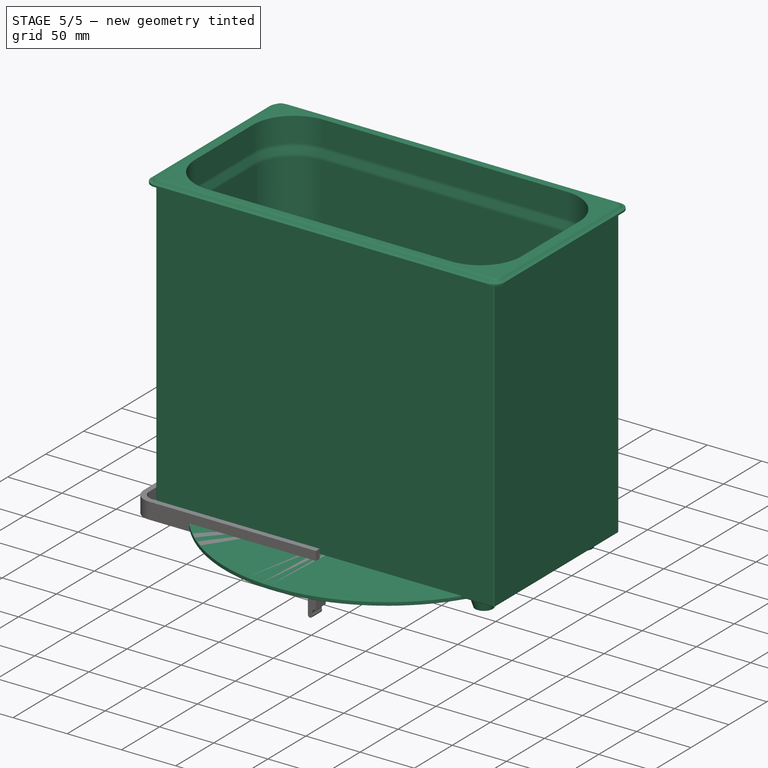
[diagram: stage 5 of 5 — iso view after this stage's code; geometry added in this stage tinted green]
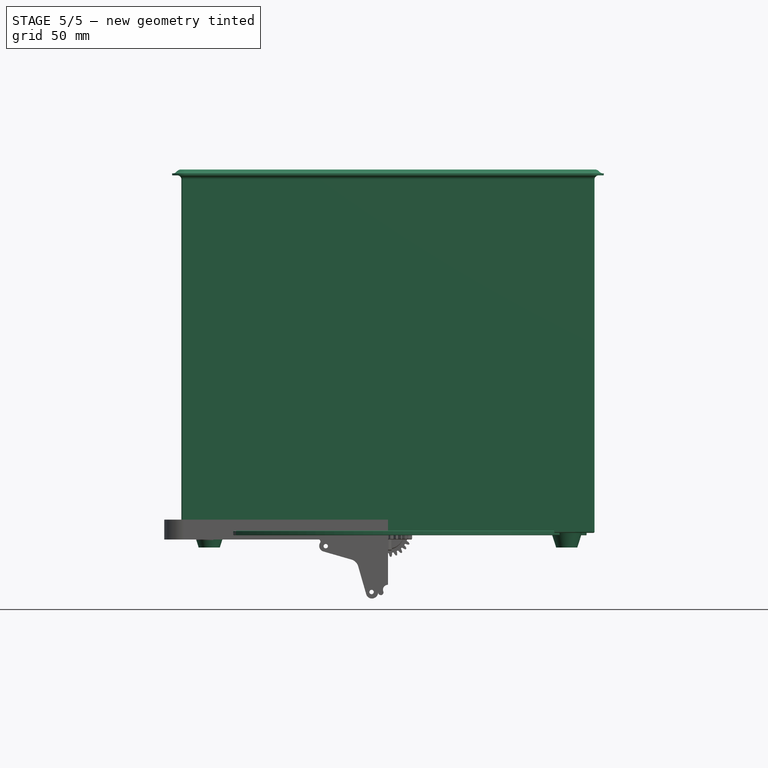
[diagram: stage 5 of 5 — front view after this stage's code; geometry added in this stage tinted green]
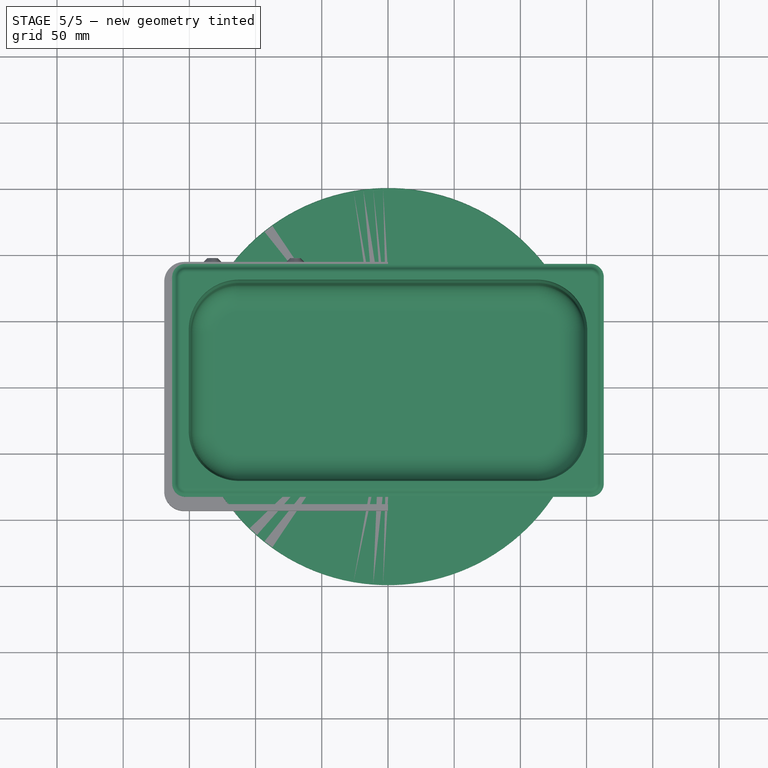
[diagram: stage 5 of 5 — top view after this stage's code; geometry added in this stage tinted green]
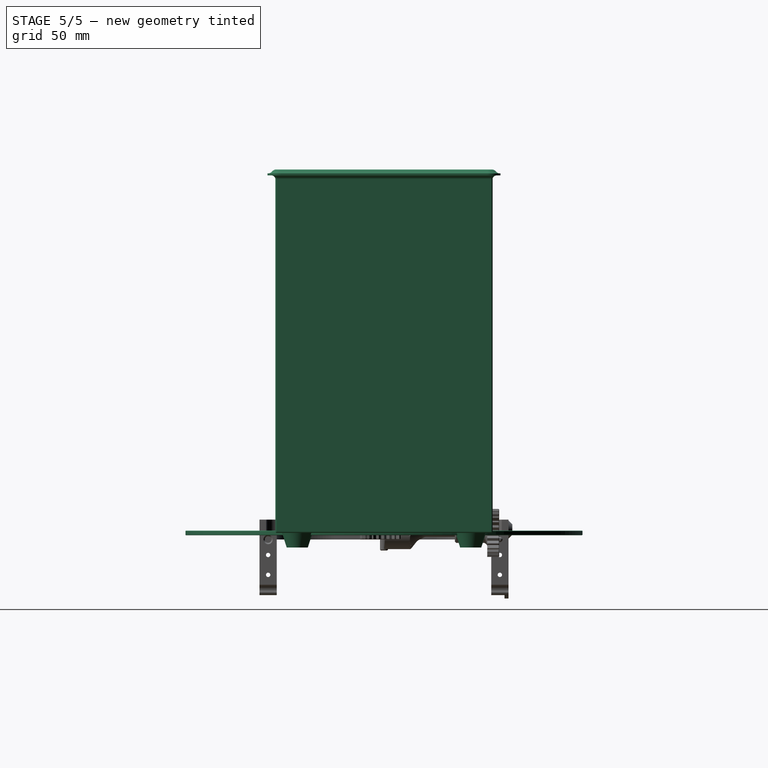
[diagram: stage 5 of 5 — right view after this stage's code; geometry added in this stage tinted green]
FEATURE [Sketcher::SketchObject] Sketch003
  ArcFitTolerance = 0
  AttachmentSupport = -> [Fillet001]
  ExternalBSplineMaxDegree = 0
  ExternalBSplineTolerance = 0
  ExternalGeometry = -> [Fillet001]
  FullyConstrained = false
  InternalTolerance = 1e-06
  InvalidShape = false
  MakeInternals = false
  MapMode = 5
  Placement = pos=(0,0,274.5) rot=(0,0,1;0rad)
  Support = -> [Fillet001]
  TreeRank = 0
  ValidateShape = false
  sketch-geometry (9):
    g0: ArcOfCircle CenterX=-112.315 CenterY=37.8146 CenterZ=0 NormalX=0 NormalY=0 NormalZ=1 AngleXU=0 Radius=38.1854 StartAngle=1.5708 EndAngle=3.14159
    g1: ArcOfCircle CenterX=-112.315 CenterY=-37.8146 CenterZ=0 NormalX=0 NormalY=0 NormalZ=1 AngleXU=0 Radius=38.1854 StartAngle=3.14159 EndAngle=4.71239
    g2: ArcOfCircle CenterX=112.315 CenterY=-37.8146 CenterZ=0 NormalX=0 NormalY=0 NormalZ=1 AngleXU=0 Radius=38.1854 StartAngle=4.71239 EndAngle=6.28319
    g3: ArcOfCircle CenterX=112.315 CenterY=37.8146 CenterZ=0 NormalX=0 NormalY=0 NormalZ=1 AngleXU=0 Radius=38.1854 StartAngle=0 EndAngle=1.5708
    g4: LineSegment StartX=-150.5 StartY=37.8146 StartZ=0 EndX=-150.5 EndY=-37.8146 EndZ=0
    g5: LineSegment StartX=-112.315 StartY=76 StartZ=0 EndX=112.315 EndY=76 EndZ=0
    g6: LineSegment StartX=-112.315 StartY=-76 StartZ=0 EndX=112.315 EndY=-76 EndZ=0
    g7: LineSegment StartX=150.5 StartY=-37.8146 StartZ=0 EndX=150.5 EndY=37.8146 EndZ=0
    g8: LineSegment [constr] StartX=160.115 StartY=85.0272 StartZ=0 EndX=139.482 EndY=64.6483 EndZ=0
  constraints (21):
    c: Symmetric(g7,g4,g-2)
    c: Symmetric(g4,g7,g-2)
    c: Symmetric(g4,g4,g-1)
    c: Symmetric(g6,g6,g-2)
    c: Symmetric(g6,g5,g-1)
    c: Symmetric(g5,g6,g-1)
    c: Tangent(g0,g4) = -1.5708
    c: Tangent(g0,g5) = 1.5708
    c: Tangent(g4,g1) = -1.5708
    c: Tangent(g1,g6) = -1.5708
    c: Coincident(g2,g7)
    c: Tangent(g3,g5) = 1.5708
    c: Tangent(g3,g7) = -1.5708
    c: DistanceY(g3,g-5) = 12
    c: DistanceX(g3,g-6) = 12.5
    c: PointOnObject(g8,g-7)
    c: PointOnObject(g8,g3)
    c: Perpendicular(g-7,g8)
    c: Perpendicular(g3,g8)
    c: Distance(g8) = 29
    c: Tangent(g2,g6) = -1.5708
FEATURE [PartDesign::Pocket] Pocket
  AddSubType = 1
  AllowMultiFace = false
  AutoTaperInnerAngle = true
  BaseFeature = -> Fillet001
  CheckUpToFaceLimits = true
  ClaimChildren = false
  Direction = (1,1,1)
  Fit = 0
  FitJoin = 0
  InnerFit = 0
  InnerFitJoin = 0
  InvalidShape = false
  Length = 24
  Length2 = 100
  NewSolid = false
  Profile = -> Sketch003
  Suppress = false
  TaperInnerAngle = 0
  TaperInnerAngleRev = 0
  TreeRank = 0
  Type = 0
  ValidateShape = true
  _ProfileBasedVersion = 0
  _Version = 0
FEATURE [Sketcher::SketchObject] Sketch004
  ArcFitTolerance = 0
  AttachmentSupport = -> [Pocket]
  ExternalBSplineMaxDegree = 0
  ExternalBSplineTolerance = 0
  ExternalGeometry = -> [Pocket]
  FullyConstrained = false
  InternalTolerance = 1e-06
  InvalidShape = false
  MakeInternals = false
  MapMode = 5
  Placement = pos=(0,0,250.5) rot=(0,0,1;0rad)
  Support = -> [Pocket]
  TreeRank = 0
  ValidateShape = false
  sketch-geometry (8):
    g0: ArcOfCircle CenterX=112.315 CenterY=-37.8146 CenterZ=0 NormalX=0 NormalY=0 NormalZ=1 AngleXU=0 Radius=38.1854 StartAngle=4.71239 EndAngle=6.28319
    g1: ArcOfCircle CenterX=112.315 CenterY=37.8146 CenterZ=0 NormalX=0 NormalY=0 NormalZ=1 AngleXU=0 Radius=38.1854 StartAngle=2e-16 EndAngle=1.5708
    g2: ArcOfCircle CenterX=-112.315 CenterY=37.8146 CenterZ=0 NormalX=0 NormalY=0 NormalZ=1 AngleXU=0 Radius=38.1854 StartAngle=1.5708 EndAngle=3.14159
    g3: ArcOfCircle CenterX=-112.315 CenterY=-37.8146 CenterZ=0 NormalX=0 NormalY=0 NormalZ=1 AngleXU=0 Radius=38.1854 StartAngle=3.14159 EndAngle=4.71239
    g4: LineSegment StartX=150.5 StartY=-37.8146 StartZ=0 EndX=150.5 EndY=37.8146 EndZ=0
    g5: LineSegment StartX=112.315 StartY=-76 StartZ=0 EndX=-112.315 EndY=-76 EndZ=0
    g6: LineSegment StartX=-150.5 StartY=-37.8146 StartZ=0 EndX=-150.5 EndY=37.8146 EndZ=0
    g7: LineSegment StartX=112.315 StartY=76 StartZ=0 EndX=-112.315 EndY=76 EndZ=0
  constraints (17):
    c: Symmetric(g4,g6,g-2)
    c: Symmetric(g6,g4,g-2)
    c: Symmetric(g4,g4,g-1)
    c: Symmetric(g5,g7,g-1)
    c: Symmetric(g5,g7,g-1)
    c: Symmetric(g5,g5,g-2)
    c: Tangent(g0,g4) = -1.5708
    c: Tangent(g4,g1) = -1.5708
    c: Tangent(g1,g7) = -1.5708
    c: Tangent(g2,g7) = -1.5708
    c: Tangent(g6,g2) = 1.5708
    c: Tangent(g3,g6) = 1.5708
    c: Tangent(g3,g5) = 1.5708
    c: Tangent(g0,g5) = 1.5708
    c: DistanceY(g-8,g0) = 0
    c: DistanceX(g0,g-7) = 0
    c: Vertical(g0,g-8)
FEATURE [Sketcher::SketchObject] Sketch005
  ArcFitTolerance = 0
  AttachmentSupport = -> [Plane]
  ExternalBSplineMaxDegree = 0
  ExternalBSplineTolerance = 0
  ExternalGeometry = -> [Pocket]
  FullyConstrained = false
  InternalTolerance = 1e-06
  InvalidShape = false
  MakeInternals = false
  MapMode = 5
  Placement = pos=(0,0,242.5) rot=(0,0,1;0rad)
  Support = -> [Plane]
  TreeRank = 0
  ValidateShape = false
  sketch-geometry (8):
    g0: ArcOfCircle CenterX=112.315 CenterY=-37.8146 CenterZ=0 NormalX=0 NormalY=0 NormalZ=1 AngleXU=0 Radius=36.1854 StartAngle=4.71239 EndAngle=6.28319
    g1: ArcOfCircle CenterX=112.315 CenterY=37.8146 CenterZ=0 NormalX=0 NormalY=0 NormalZ=1 AngleXU=0 Radius=36.1854 StartAngle=0 EndAngle=1.5708
    g2: ArcOfCircle CenterX=-112.315 CenterY=37.8146 CenterZ=0 NormalX=0 NormalY=0 NormalZ=1 AngleXU=0 Radius=36.1854 StartAngle=1.5708 EndAngle=3.14159
    g3: ArcOfCircle CenterX=-112.315 CenterY=-37.8146 CenterZ=0 NormalX=0 NormalY=0 NormalZ=1 AngleXU=0 Radius=36.1854 StartAngle=3.14159 EndAngle=4.71239
    g4: LineSegment StartX=148.5 StartY=-37.8146 StartZ=0 EndX=148.5 EndY=37.8146 EndZ=0
    g5: LineSegment StartX=112.315 StartY=-74 StartZ=0 EndX=-112.315 EndY=-74 EndZ=0
    g6: LineSegment StartX=-148.5 StartY=-37.8146 StartZ=0 EndX=-148.5 EndY=37.8146 EndZ=0
    g7: LineSegment StartX=112.315 StartY=74 StartZ=0 EndX=-112.315 EndY=74 EndZ=0
  constraints (17):
    c: Symmetric(g4,g6,g-2)
    c: Symmetric(g6,g4,g-2)
    c: Symmetric(g4,g4,g-1)
    c: Symmetric(g5,g7,g-1)
    c: Symmetric(g5,g7,g-1)
    c: Symmetric(g5,g5,g-2)
    c: Tangent(g0,g4) = -1.5708
    c: Tangent(g4,g1) = -1.5708
    c: Tangent(g1,g7) = -1.5708
    c: Tangent(g2,g7) = -1.5708
    c: Tangent(g6,g2) = 1.5708
    c: Tangent(g3,g6) = 1.5708
    c: Tangent(g3,g5) = 1.5708
    c: Tangent(g0,g5) = 1.5708
    c: Vertical(g0,g-8)
    c: DistanceX(g-11,g2) = 2
    c: DistanceY(g-9,g3) = 2
FEATURE [PartDesign::SubtractiveLoft] SubtractiveLoft
  AddSubType = 1
  AllowMultiFace = false
  BaseFeature = -> Pocket
  ClaimChildren = false
  Closed = false
  Fit = 0
  FitJoin = 0
  InnerFit = 0
  InnerFitJoin = 0
  InvalidShape = false
  MaxDegree = 5
  NewSolid = false
  Profile = -> CopySketch004
  Ruled = false
  Sections = -> [Sketch005]
  SplitProfile = false
  Suppress = false
  TreeRank = 0
  ValidateShape = true
  _ProfileBasedVersion = 0
FEATURE [Sketcher::SketchObject] CopySketch005
  ArcFitTolerance = 0
  ExternalBSplineMaxDegree = 0
  ExternalBSplineTolerance = 0
  FullyConstrained = false
  InternalTolerance = 1e-06
  InvalidShape = false
  MakeInternals = false
  Placement = pos=(0,0,242.5) rot=(0,0,1;0rad)
  TreeRank = 0
  ValidateShape = false
  sketch-geometry (8):
    g0: ArcOfCircle CenterX=112.315 CenterY=-37.8146 CenterZ=0 NormalX=0 NormalY=0 NormalZ=1 AngleXU=0 Radius=36.1854 StartAngle=4.71239 EndAngle=6.28319
    g1: ArcOfCircle CenterX=112.315 CenterY=37.8146 CenterZ=0 NormalX=0 NormalY=0 NormalZ=1 AngleXU=0 Radius=36.1854 StartAngle=0 EndAngle=1.5708
    g2: ArcOfCircle CenterX=-112.315 CenterY=37.8146 CenterZ=0 NormalX=0 NormalY=0 NormalZ=1 AngleXU=0 Radius=36.1854 StartAngle=1.5708 EndAngle=3.14159
    g3: ArcOfCircle CenterX=-112.315 CenterY=-37.8146 CenterZ=0 NormalX=0 NormalY=0 NormalZ=1 AngleXU=0 Radius=36.1854 StartAngle=3.14159 EndAngle=4.71239
    g4: LineSegment StartX=148.5 StartY=-37.8146 StartZ=0 EndX=148.5 EndY=37.8146 EndZ=0
    g5: LineSegment StartX=112.315 StartY=-74 StartZ=0 EndX=-112.315 EndY=-74 EndZ=0
    g6: LineSegment StartX=-148.5 StartY=-37.8146 StartZ=0 EndX=-148.5 EndY=37.8146 EndZ=0
    g7: LineSegment StartX=112.315 StartY=74 StartZ=0 EndX=-112.315 EndY=74 EndZ=0
  constraints (14):
    c: Symmetric(g4,g6,g-2)
    c: Symmetric(g6,g4,g-2)
    c: Symmetric(g4,g4,g-1)
    c: Symmetric(g5,g7,g-1)
    c: Symmetric(g5,g7,g-1)
    c: Symmetric(g5,g5,g-2)
    c: Tangent(g0,g4) = -1.5708
    c: Tangent(g4,g1) = -1.5708
    c: Tangent(g1,g7) = -1.5708
    c: Tangent(g2,g7) = -1.5708
    c: Tangent(g6,g2) = 1.5708
    c: Tangent(g3,g6) = 1.5708
    c: Tangent(g3,g5) = 1.5708
    c: Tangent(g0,g5) = 1.5708
FEATURE [Part::Plane] Plane001
  AttacherType = Attacher::AttachEngine3D
  InvalidShape = false
  Length = 300
  Placement = pos=(0,0,119.5) rot=(0,0,1;0rad)
  TreeRank = 0
  ValidateShape = false
  Width = 300
FEATURE [PartDesign::Pocket] Pocket001
  AddSubType = 1
  AllowMultiFace = false
  AutoTaperInnerAngle = true
  BaseFeature = -> SubtractiveLoft
  CheckUpToFaceLimits = true
  ClaimChildren = false
  Direction = (1,1,1)
  Fit = 0
  FitJoin = 0
  InnerFit = 0
  InnerFitJoin = 0
  InvalidShape = false
  Length = 0
  Length2 = 100
  NewSolid = false
  Profile = -> CopySketch005
  Suppress = false
  TaperInnerAngle = 0
  TaperInnerAngleRev = 0
  TreeRank = 0
  Type = 3
  UpToFace = -> Plane001 [Face1]
  ValidateShape = true
  _ProfileBasedVersion = 0
  _Version = 0
FEATURE [PartDesign::Fillet] Fillet002
  AddSubType = 0
  Base = -> Pocket001 [Face50,Face51,Face49,Face56,Face55,Face54,Face53,Face52]
  BaseFeature = -> Pocket001
  InvalidShape = false
  NewSolid = false
  Radius = 10
  SupportTransform = false
  Suppress = false
  TreeRank = 0
  UseAllEdges = false
  ValidateShape = true
FEATURE [PartDesign::Fillet] Fillet003
  AddSubType = 0
  Base = -> Fillet002 [Face58]
  BaseFeature = -> Fillet002
  InvalidShape = false
  NewSolid = false
  Radius = 20
  SupportTransform = false
  Suppress = false
  TreeRank = 0
  UseAllEdges = false
  ValidateShape = true
FEATURE [Sketcher::SketchObject] Sketch006
  ArcFitTolerance = 0
  AttachmentSupport = -> [Fillet003]
  ExternalBSplineMaxDegree = 0
  ExternalBSplineTolerance = 0
  FullyConstrained = false
  InternalTolerance = 1e-06
  InvalidShape = false
  MakeInternals = false
  MapMode = 5
  Placement = pos=(0,0,0) rot=(1,0,0;3.14159rad)
  Support = -> [Fillet003]
  TreeRank = 0
  ValidateShape = false
  sketch-geometry (4):
    g0: Circle [constr] CenterX=-135 CenterY=65.5 CenterZ=0 NormalX=0 NormalY=0 NormalZ=1 AngleXU=0 Radius=11.5
    g1: Circle [constr] CenterX=135 CenterY=65.5 CenterZ=0 NormalX=0 NormalY=0 NormalZ=1 AngleXU=0 Radius=11.5
    g2: Circle CenterX=135 CenterY=-65.5 CenterZ=0 NormalX=0 NormalY=0 NormalZ=1 AngleXU=0 Radius=11.5
    g3: Circle [constr] CenterX=-135 CenterY=-65.5 CenterZ=0 NormalX=0 NormalY=0 NormalZ=1 AngleXU=0 Radius=11.5
  constraints (9):
    c: Symmetric(g0,g1,g-2)
    c: Symmetric(g3,g2,g-2)
    c: Symmetric(g3,g0,g-1)
    c: Equal(g0,g1)
    c: Equal(g1,g2)
    c: Equal(g2,g3)
    c: Diameter(g1) = 23
    c: DistanceY(g2,g1) = 131
    c: DistanceX(g3,g2) = 270
FEATURE [PartDesign::AdditiveLoft] AdditiveLoft
  AddSubType = 0
  AllowMultiFace = false
  BaseFeature = -> Fillet003
  ClaimChildren = false
  Closed = false
  Fit = 0
  FitJoin = 0
  InnerFit = 0
  InnerFitJoin = 0
  InvalidShape = false
  MaxDegree = 5
  NewSolid = false
  Profile = -> Sketch006
  Ruled = false
  Sections = -> [Sketch007]
  SplitProfile = false
  Suppress = false
  TreeRank = 0
  ValidateShape = true
  _ProfileBasedVersion = 0
FEATURE [Sketcher::SketchObject] Sketch008
  ArcFitTolerance = 0
  AttachmentSupport = -> [AdditiveLoft]
  ExternalBSplineMaxDegree = 0
  ExternalBSplineTolerance = 0
  ExternalGeometry = -> [AdditiveLoft]
  FullyConstrained = false
  InternalTolerance = 1e-06
  InvalidShape = false
  MakeInternals = false
  MapMode = 5
  Placement = pos=(-8e-16,-1.4e-15,-11) rot=(1,0,0;3.14159rad)
  Support = -> [AdditiveLoft]
  TreeRank = 0
  ValidateShape = false
  sketch-geometry (1):
    g0: Circle CenterX=135 CenterY=-65.5 CenterZ=0 NormalX=0 NormalY=0 NormalZ=1 AngleXU=0 Radius=4
  constraints (2):
    c: Coincident(g0,g-3)
    c: Diameter(g0) = 8
FEATURE [PartDesign::Pocket] Pocket002
  AddSubType = 1
  AllowMultiFace = false
  AutoTaperInnerAngle = true
  BaseFeature = -> AdditiveLoft
  CheckUpToFaceLimits = true
  ClaimChildren = false
  Direction = (1,1,1)
  Fit = 0
  FitJoin = 0
  InnerFit = 0
  InnerFitJoin = 0
  InvalidShape = false
  Length = 7
  Length2 = 100
  NewSolid = false
  Profile = -> Sketch008
  Suppress = false
  TaperInnerAngle = 0
  TaperInnerAngleRev = 0
  TreeRank = 0
  Type = 0
  ValidateShape = true
  _ProfileBasedVersion = 0
  _Version = 0
FEATURE [PartDesign::Mirrored] Mirrored001
  AddSubType = 0
  CopyShape = true
  InvalidShape = false
  MirrorPlane = -> Sketch006 [H_Axis]
  NewSolid = false
  ParallelTransform = true
  SubTransform = true
  Suppress = false
  TreeRank = 0
  ValidateShape = true
  _Version = 0
FEATURE [PartDesign::Mirrored] Mirrored
  AddSubType = 0
  CopyShape = true
  InvalidShape = false
  MirrorPlane = -> Sketch006 [V_Axis]
  NewSolid = false
  ParallelTransform = true
  SubTransform = true
  Suppress = false
  TreeRank = 0
  ValidateShape = true
  _Version = 0
FEATURE [PartDesign::MultiTransform] MultiTransform
  AddSubType = 0
  BaseFeature = -> Pocket002
  CopyShape = true
  InvalidShape = false
  NewSolid = false
  OriginalSubs = -> [AdditiveLoft,Pocket002]
  Originals = -> [AdditiveLoft,Pocket002]
  ParallelTransform = true
  SubTransform = true
  Suppress = false
  Transformations = -> [Mirrored,Mirrored001]
  TreeRank = 0
  ValidateShape = true
  _Version = 0
FEATURE [PartDesign::Fillet] Fillet004
  AddSubType = 0
  Base = -> MultiTransform [Edge190,Edge189,Edge191,Edge193,Edge195,Edge196,Edge194,Edge192]
  BaseFeature = -> MultiTransform
  InvalidShape = false
  NewSolid = false
  Radius = 1
  SupportTransform = false
  Suppress = false
  TreeRank = 0
  UseAllEdges = false
  ValidateShape = true
FEATURE [PartDesign::Fillet] Fillet005
  AddSubType = 0
  Base = -> Fillet004 [Edge1,Edge3,Edge5,Edge7,Edge8,Edge6,Edge4,Edge2]
  BaseFeature = -> Fillet004
  InvalidShape = false
  NewSolid = false
  Radius = 3
  SupportTransform = false
  Suppress = false
  TreeRank = 0
  UseAllEdges = false
  ValidateShape = true
FEATURE [App::FeaturePython] Constraints006  # WARN: FeaturePython — macro-defined, semantics opaque (R4)
  TreeRank = 0
  _LinkVersion = 1
  _Version = 1
FEATURE [Part::Plane] Plane004  label="midplane"
  AttacherType = Attacher::AttachEngine3D
  InvalidShape = false
  Length = 1000
  Placement = pos=(0,0,0) rot=(0.57735,0.57735,0.57735;4.18879rad)
  TreeRank = 0
  ValidateShape = false
  Width = 1000
FEATURE [Part::FeaturePython] Parts  label="Parts001"  # WARN: FeaturePython — macro-defined, semantics opaque (R4)
  Group = -> [Body,Plane,Plane001,Plane002,Plane004]
  GroupMode = 0
  InvalidShape = false
  TreeRank = 0
  ValidateShape = false
  _LinkVersion = 1
FEATURE [Sketcher::SketchObject] Sketch044
  ArcFitTolerance = 0
  AttachmentSupport = -> [XY_Plane006]
  ExternalBSplineMaxDegree = 0
  ExternalBSplineTolerance = 0
  FullyConstrained = false
  InternalTolerance = 1e-06
  InvalidShape = false
  MakeInternals = false
  MapMode = 5
  Support = -> [XY_Plane006]
  TreeRank = 0
  ValidateShape = false
  sketch-geometry (2):
    g0: Circle CenterX=0 CenterY=0 CenterZ=0 NormalX=0 NormalY=0 NormalZ=1 AngleXU=0 Radius=150
    g1: Circle CenterX=0 CenterY=0 CenterZ=0 NormalX=0 NormalY=0 NormalZ=1 AngleXU=0 Radius=3.5
  constraints (4):
    c: Coincident(g0,g-1)
    c: Radius(g0) = 150
    c: Coincident(g1,g0)
    c: Diameter(g1) = 7
FEATURE [PartDesign::Pad] Pad023
  AddSubType = 0
  AllowMultiFace = false
  AutoTaperInnerAngle = true
  CheckUpToFaceLimits = true
  ClaimChildren = false
  Direction = (1,1,1)
  Fit = 0
  FitJoin = 0
  InnerFit = 0
  InnerFitJoin = 0
  InvalidShape = false
  Length = 3.5
  Length2 = 100
  Midplane = true
  NewSolid = false
  Profile = -> Sketch044
  Suppress = false
  TaperInnerAngle = 0
  TaperInnerAngleRev = 0
  TreeRank = 0
  Type = 0
  ValidateShape = true
  _ProfileBasedVersion = 0
FEATURE [PartDesign::Fillet] Fillet011
  AddSubType = 0
  Base = -> Pad023 [Face1]
  BaseFeature = -> Pad023
  InvalidShape = false
  NewSolid = false
  Radius = 0.5
  SupportTransform = false
  Suppress = false
  TreeRank = 0
  UseAllEdges = false
  ValidateShape = true
FEATURE [Sketcher::SketchObject] Sketch045
  ArcFitTolerance = 0
  ExternalBSplineMaxDegree = 0
  ExternalBSplineTolerance = 0
  FullyConstrained = false
  InternalTolerance = 1e-06
  InvalidShape = false
  MakeInternals = false
  MapMode = 5
  Placement = pos=(0,0,1.75) rot=(0,0,1;0rad)
  TreeRank = 0
  ValidateShape = false
  sketch-geometry (2):
    g0: Circle CenterX=0 CenterY=0 CenterZ=0 NormalX=0 NormalY=0 NormalZ=1 AngleXU=0 Radius=50
    g1: Circle CenterX=0 CenterY=0 CenterZ=0 NormalX=0 NormalY=0 NormalZ=1 AngleXU=0 Radius=60
  constraints (4):
    c: Coincident(g0,g-1)
    c: Coincident(g1,g0)
    c: Diameter(g0) = 100
    c: Diameter(g1) = 120
FEATURE [PartDesign::Pocket] Pocket024
  AddSubType = 1
  AllowMultiFace = false
  AutoTaperInnerAngle = true
  BaseFeature = -> Fillet011
  CheckUpToFaceLimits = true
  ClaimChildren = false
  Direction = (1,1,1)
  Fit = 0
  FitJoin = 0
  InnerFit = 0
  InnerFitJoin = 0
  InvalidShape = false
  Length = 0.5
  Length2 = 100
  NewSolid = false
  Profile = -> Sketch045
  Suppress = false
  TaperInnerAngle = 0
  TaperInnerAngleRev = 0
  TreeRank = 0
  Type = 0
  ValidateShape = true
  _ProfileBasedVersion = 0
  _Version = 0
FEATURE [PartDesign::Mirrored] Mirrored006
  AddSubType = 0
  BaseFeature = -> Pocket024
  CopyShape = true
  InvalidShape = false
  MirrorPlane = -> XY_Plane006
  NewSolid = false
  OriginalSubs = -> [Pocket024]
  Originals = -> [Pocket024]
  ParallelTransform = true
  SubTransform = true
  Suppress = false
  TreeRank = 0
  ValidateShape = true
  _Version = 0
FEATURE [PartDesign::Body] Body006
  AutoGroupSolids = false
  ClaimAllChildren = false
  ExportMode = 0
  Group = -> [Sketch044,Pad023,Fillet011,Sketch045,Pocket024,Mirrored006]
  InvalidShape = false
  Origin = -> Origin006
  SingleSolid = true
  Tip = -> Mirrored006
  TreeRank = 0
  ValidateShape = false
  _ExportChildren = -> [Pad023,Fillet011,Pocket024,Mirrored006]
  _GroupVersion = 1
FEATURE [Part::Plane] Plane005
  AttacherType = Attacher::AttachEngine3D
  InvalidShape = false
  Length = 1000
  TreeRank = 0
  ValidateShape = false
  Width = 1000
FEATURE [App::FeaturePython] Constraints007  # WARN: FeaturePython — macro-defined, semantics opaque (R4)
  TreeRank = 0
  _LinkVersion = 1
  _Version = 1
FEATURE [Part::FeaturePython] Parts007  # WARN: FeaturePython — macro-defined, semantics opaque (R4)
  Group = -> [Body006,Plane005]
  GroupMode = 0
  InvalidShape = false
  TreeRank = 0
  ValidateShape = false
  _LinkVersion = 1
FEATURE [PartDesign::ShapeBinder] CopyMirrored002
  InvalidShape = false
  TraceSupport = false
  TreeRank = 0
  ValidateShape = false
FEATURE [Sketcher::SketchObject] Sketch046
  ArcFitTolerance = 0
  AttachmentSupport = -> [CopyMirrored002]
  ExternalBSplineMaxDegree = 0
  ExternalBSplineTolerance = 0
  FullyConstrained = false
  InternalTolerance = 1e-06
  InvalidShape = false
  MakeInternals = false
  MapMode = 5
  Placement = pos=(0,0,1.75) rot=(0,0,1;0rad)
  Support = -> [CopyMirrored002]
  TreeRank = 0
  ValidateShape = false
  sketch-geometry (2):
    g0: Circle CenterX=0 CenterY=0 CenterZ=0 NormalX=0 NormalY=0 NormalZ=1 AngleXU=0 Radius=62
    g1: Circle [constr] CenterX=0 CenterY=0 CenterZ=0 NormalX=0 NormalY=0 NormalZ=1 AngleXU=0 Radius=52
  constraints (4):
    c: Coincident(g0,g-1)
    c: Radius(g0) = 62
    c: Coincident(g1,g0)
    c: Radius(g1) = 52
FEATURE [PartDesign::Pad] Pad024
  AddSubType = 0
  AllowMultiFace = false
  AutoTaperInnerAngle = true
  CheckUpToFaceLimits = true
  ClaimChildren = false
  Direction = (1,1,1)
  Fit = 0
  FitJoin = 0
  InnerFit = 0
  InnerFitJoin = 0
  InvalidShape = false
  Length = 6
  Length2 = 100
  NewSolid = false
  Profile = -> Sketch046
  Suppress = false
  TaperInnerAngle = 0
  TaperInnerAngleRev = 0
  TreeRank = 0
  Type = 0
  ValidateShape = true
  _ProfileBasedVersion = 0
FEATURE [Sketcher::SketchObject] Sketch047
  ArcFitTolerance = 0
  ExternalBSplineMaxDegree = 0
  ExternalBSplineTolerance = 0
  FullyConstrained = false
  InternalTolerance = 1e-06
  InvalidShape = false
  MakeInternals = false
  MapMode = 5
  Placement = pos=(0,0,-8.25) rot=(1,0,0;3.14159rad)
  TreeRank = 0
  ValidateShape = false
  sketch-geometry (1):
    g0: Circle CenterX=0 CenterY=0 CenterZ=0 NormalX=0 NormalY=0 NormalZ=1 AngleXU=0 Radius=4
  constraints (2):
    c: Coincident(g0,g-1)
    c: Diameter(g0) = 8
FEATURE [PartDesign::Pocket] Pocket026
  AddSubType = 1
  AllowMultiFace = false
  AutoTaperInnerAngle = true
  BaseFeature = -> Pad024
  CheckUpToFaceLimits = true
  ClaimChildren = false
  Direction = (1,1,1)
  Fit = 0
  FitJoin = 0
  InnerFit = 0
  InnerFitJoin = 0
  InvalidShape = false
  Length = 5
  Length2 = 100
  Midplane = true
  NewSolid = false
  Profile = -> Sketch047
  Reversed = true
  Suppress = false
  TaperInnerAngle = 0
  TaperInnerAngleRev = 0
  TreeRank = 0
  Type = 1
  ValidateShape = true
  _ProfileBasedVersion = 0
  _Version = 0
FEATURE [Sketcher::SketchObject] Sketch048
  ArcFitTolerance = 0
  ExternalBSplineMaxDegree = 0
  ExternalBSplineTolerance = 0
  FullyConstrained = false
  InternalTolerance = 1e-06
  InvalidShape = false
  MakeInternals = false
  MapMode = 5
  Placement = pos=(0,0,1.75) rot=(1,0,0;3.14159rad)
  TreeRank = 0
  ValidateShape = false
  sketch-geometry (2):
    g0: Circle CenterX=0 CenterY=0 CenterZ=0 NormalX=0 NormalY=0 NormalZ=1 AngleXU=0 Radius=53.5
    g1: Circle CenterX=0 CenterY=0 CenterZ=0 NormalX=0 NormalY=0 NormalZ=1 AngleXU=0 Radius=56.5
  constraints (4):
    c: Coincident(g0,g-1)
    c: Coincident(g1,g0)
    c: Diameter(g0) = 107
    c: Diameter(g1) = 113
FEATURE [PartDesign::Pocket] Pocket027
  AddSubType = 1
  AllowMultiFace = false
  AutoTaperInnerAngle = true
  BaseFeature = -> Pocket026
  CheckUpToFaceLimits = true
  ClaimChildren = false
  Direction = (1,1,1)
  Fit = 0
  FitJoin = 0
  InnerFit = 0
  InnerFitJoin = 0
  InvalidShape = false
  Length = 3
  Length2 = 100
  NewSolid = false
  Profile = -> Sketch048
  Suppress = false
  TaperInnerAngle = 0
  TaperInnerAngleRev = 0
  TreeRank = 0
  Type = 0
  ValidateShape = true
  _ProfileBasedVersion = 0
  _Version = 0
FEATURE [PartDesign::Draft] Draft003
  AddSubType = 0
  Angle = 5
  Base = -> Pocket027 [Face8]
  BaseFeature = -> Pocket027
  InvalidShape = false
  NeutralPlane = -> Pocket027 [Face3]
  NewSolid = false
  SupportTransform = false
  Suppress = false
  TreeRank = 0
  ValidateShape = true
FEATURE [PartDesign::Draft] Draft004
  AddSubType = 0
  Angle = 5
  Base = -> Draft003 [Face8]
  BaseFeature = -> Draft003
  InvalidShape = false
  NeutralPlane = -> Draft003 [Face7]
  NewSolid = false
  SupportTransform = false
  Suppress = false
  TreeRank = 0
  ValidateShape = true
FEATURE [PartDesign::Chamfer] Chamfer012
  AddSubType = 0
  Angle = 45
  Base = -> Draft004 [Face1]
  BaseFeature = -> Draft004
  ChamferType = 0
  FlipDirection = false
  InvalidShape = false
  NewSolid = false
  Size = 1
  Size2 = 1
  SupportTransform = true
  Suppress = false
  TreeRank = 0
  UseAllEdges = false
  ValidateShape = true
FEATURE [Sketcher::SketchObject] Sketch049
  ArcFitTolerance = 0
  AttachmentSupport = -> [YZ_Plane007]
  ExternalBSplineMaxDegree = 0
  ExternalBSplineTolerance = 0
  ExternalGeometry = -> [Chamfer012]
  FullyConstrained = false
  InternalTolerance = 1e-06
  InvalidShape = false
  MakeInternals = false
  MapMode = 5
  Placement = pos=(0,0,0) rot=(0.57735,0.57735,0.57735;2.0944rad)
  Support = -> [YZ_Plane007]
  TreeRank = 0
  ValidateShape = false
  sketch-geometry (9):
    g0: LineSegment StartX=4 StartY=7.75 StartZ=0 EndX=4 EndY=12.75 EndZ=0
    g1: LineSegment StartX=4 StartY=12.75 StartZ=0 EndX=5 EndY=12.75 EndZ=0
    g2: LineSegment StartX=5 StartY=12.75 StartZ=0 EndX=5 EndY=14.75 EndZ=0
    g3: LineSegment StartX=5 StartY=14.75 StartZ=0 EndX=4 EndY=14.75 EndZ=0
    g4: LineSegment StartX=4 StartY=14.75 StartZ=0 EndX=4 EndY=17.75 EndZ=0
    g5: LineSegment StartX=4 StartY=17.75 StartZ=0 EndX=12.5 EndY=17.75 EndZ=0
    g6: LineSegment StartX=12.5 StartY=17.75 StartZ=0 EndX=12.5 EndY=7.75 EndZ=0
    g7: LineSegment StartX=12.5 StartY=7.75 StartZ=0 EndX=4 EndY=7.75 EndZ=0
    g8: GeomPoint [constr] X=-12.5 Y=7.75 Z=0
  constraints (24):
    c: Vertical(g0)
    c: Coincident(g0,g1)
    c: Horizontal(g1)
    c: Coincident(g1,g2)
    c: Vertical(g2)
    c: Coincident(g2,g3)
    c: Horizontal(g3)
    c: Coincident(g3,g4)
    c: Vertical(g4)
    c: Coincident(g4,g5)
    c: Horizontal(g5)
    c: Coincident(g5,g6)
    c: Vertical(g6)
    c: Coincident(g6,g7)
    c: Coincident(g7,g0)
    c: Horizontal(g7)
    c: DistanceY(g6,g6) = 10
    c: Symmetric(g6,g8,g-2)
    c: DistanceX(g8,g6) = 25
    c: DistanceY(g0,g0) = 5
    c: DistanceY(g2,g2) = 2
    c: DistanceX(g1,g1) = 1
    c: Vertical(g3,g0)
    c: Coincident(g0,g-3)
FEATURE [PartDesign::Revolution] Revolution001
  AddSubType = 0
  Angle = 360
  Axis = (-2e-16,3e-16,1)
  Base = (0,0,0)
  BaseFeature = -> Chamfer012
  ClaimChildren = false
  Fit = 0
  FitJoin = 0
  InnerFit = 0
  InnerFitJoin = 0
  InvalidShape = false
  NewSolid = false
  Profile = -> Sketch049
  ReferenceAxis = -> Sketch049 [V_Axis]
  Reversed = true
  Suppress = false
  TreeRank = 0
  ValidateShape = true
  _ProfileBasedVersion = 0
FEATURE [PartDesign::Fillet] Fillet012
  AddSubType = 0
  Base = -> Revolution001 [Edge9]
  BaseFeature = -> Revolution001
  InvalidShape = false
  NewSolid = false
  Radius = 4
  SupportTransform = true
  Suppress = false
  TreeRank = 0
  UseAllEdges = false
  ValidateShape = true
FEATURE [Sketcher::SketchObject] Sketch050
  ArcFitTolerance = 0
  AttachmentSupport = -> [XZ_Plane007]
  ExternalBSplineMaxDegree = 0
  ExternalBSplineTolerance = 0
  FullyConstrained = false
  InternalTolerance = 1e-06
  InvalidShape = false
  MakeInternals = false
  MapMode = 5
  Placement = pos=(0,0,0) rot=(1,0,0;1.5708rad)
  Support = -> [XZ_Plane007]
  TreeRank = 0
  ValidateShape = false
  sketch-geometry (2):
    g0: Circle CenterX=14.5 CenterY=13 CenterZ=0 NormalX=0 NormalY=0 NormalZ=1 AngleXU=0 Radius=4.5
    g1: Circle CenterX=-14.5 CenterY=13 CenterZ=0 NormalX=0 NormalY=0 NormalZ=1 AngleXU=0 Radius=4.5
  constraints (5):
    c: Equal(g1,g0)
    c: Symmetric(g1,g0,g-2)
    c: DistanceY(g-1,g0) = 13
    c: DistanceX(g-1,g0) = 14.5
    c: Diameter(g0) = 9
FEATURE [PartDesign::Pocket] Pocket025
  AddSubType = 1
  AutoTaperInnerAngle = true
  BaseFeature = -> Fillet012
  CheckUpToFaceLimits = true
  ClaimChildren = false
  Direction = (1,1,1)
  Fit = 0
  FitJoin = 0
  InnerFit = 0
  InnerFitJoin = 0
  InvalidShape = false
  Length = 5
  Length2 = 100
  Midplane = true
  NewSolid = false
  Profile = -> Sketch050
  Suppress = false
  TaperInnerAngle = 0
  TaperInnerAngleRev = 0
  TreeRank = 0
  Type = 1
  ValidateShape = true
  _ProfileBasedVersion = 0
  _Version = 0
FEATURE [PartDesign::Chamfer] Chamfer010
  AddSubType = 0
  Angle = 45
  Base = -> Pocket025 [Face9]
  BaseFeature = -> Pocket025
  ChamferType = 0
  FlipDirection = false
  InvalidShape = false
  NewSolid = false
  Size = 0.5
  Size2 = 1
  SupportTransform = true
  Suppress = false
  TreeRank = 0
  UseAllEdges = false
  ValidateShape = true
FEATURE [PartDesign::Chamfer] Chamfer011
  AddSubType = 0
  Angle = 45
  Base = -> Chamfer010 [Face23,Edge32]
  BaseFeature = -> Chamfer010
  ChamferType = 0
  FlipDirection = false
  InvalidShape = false
  NewSolid = false
  Size = 0.5
  Size2 = 1
  SupportTransform = true
  Suppress = false
  TreeRank = 0
  UseAllEdges = false
  ValidateShape = true
FEATURE [PartDesign::Body] Body007
  AutoGroupSolids = false
  ClaimAllChildren = false
  ExportMode = 0
  Group = -> [CopyMirrored002,Sketch046,Pad024,Sketch047,Pocket026,Sketch048,Pocket027,Draft003,Draft004,Chamfer012,Sketch049,Revolution001,Fillet012,Sketch050,Pocket025,Chamfer010,Chamfer011]
  InvalidShape = false
  Origin = -> Origin007
  SingleSolid = true
  Tip = -> Chamfer011
  TreeRank = 0
  ValidateShape = false
  _ExportChildren = -> [CopyMirrored002,Pad024,Pocket026,Pocket027,Draft003,Draft004,Chamfer012,Revolution001,Fillet012,Pocket025,Chamfer010,Chamfer011]
  _GroupVersion = 1
FEATURE [App::FeaturePython] Constraints008  # WARN: FeaturePython — macro-defined, semantics opaque (R4)
  TreeRank = 0
  _LinkVersion = 1
  _Version = 1
FEATURE [Part::FeaturePython] Parts008  # WARN: FeaturePython — macro-defined, semantics opaque (R4)
  Group = -> [Body007]
  GroupMode = 0
  InvalidShape = false
  TreeRank = 0
  ValidateShape = false
  _LinkVersion = 1
FEATURE [Sketcher::SketchObject] Sketch051
  ArcFitTolerance = 0
  AttachmentSupport = -> [XY_Plane008]
  ExternalBSplineMaxDegree = 0
  ExternalBSplineTolerance = 0
  FullyConstrained = false
  InternalTolerance = 1e-06
  InvalidShape = false
  MakeInternals = false
  MapMode = 5
  Support = -> [XY_Plane008]
  TreeRank = 0
  ValidateShape = false
  sketch-geometry (4):
    g0: Circle [constr] CenterX=0 CenterY=0 CenterZ=0 NormalX=0 NormalY=0 NormalZ=1 AngleXU=0 Radius=3
    g1: Circle [constr] CenterX=0 CenterY=0 CenterZ=0 NormalX=0 NormalY=0 NormalZ=1 AngleXU=0 Radius=4
    g2: Circle CenterX=0 CenterY=0 CenterZ=0 NormalX=0 NormalY=0 NormalZ=1 AngleXU=0 Radius=3.125
    g3: Circle CenterX=0 CenterY=0 CenterZ=0 NormalX=0 NormalY=0 NormalZ=1 AngleXU=0 Radius=3.875
  constraints (8):
    c: Coincident(g0,g-1)
    c: Coincident(g1,g0)
    c: Diameter(g0) = 6
    c: Diameter(g1) = 8
    c: Coincident(g2,g-1)
    c: Coincident(g3,g2)
    c: Diameter(g2) = 6.25
    c: Diameter(g3) = 7.75
FEATURE [PartDesign::Pad] Pad025
  AddSubType = 0
  AutoTaperInnerAngle = true
  CheckUpToFaceLimits = true
  ClaimChildren = false
  Direction = (1,1,1)
  Fit = 0
  FitJoin = 0
  InnerFit = 0
  InnerFitJoin = 0
  InvalidShape = false
  Length = 16
  Length2 = 100
  NewSolid = false
  Profile = -> Sketch051
  Suppress = false
  TaperInnerAngle = 0
  TaperInnerAngleRev = 0
  TreeRank = 0
  Type = 0
  ValidateShape = true
  _ProfileBasedVersion = 0
FEATURE [Sketcher::SketchObject] Sketch052
  ArcFitTolerance = 0
  AttachmentSupport = -> [Pad025]
  ExternalBSplineMaxDegree = 0
  ExternalBSplineTolerance = 0
  ExternalGeometry = -> [Pad025]
  FullyConstrained = false
  InternalTolerance = 1e-06
  InvalidShape = false
  MakeInternals = false
  MapMode = 5
  Placement = pos=(0,0,16) rot=(0,0,1;0rad)
  Support = -> [Pad025]
  TreeRank = 0
  ValidateShape = false
  sketch-geometry (2):
    g0: Circle CenterX=0 CenterY=0 CenterZ=0 NormalX=0 NormalY=0 NormalZ=1 AngleXU=0 Radius=3.125
    g1: Circle CenterX=0 CenterY=0 CenterZ=0 NormalX=0 NormalY=0 NormalZ=1 AngleXU=0 Radius=12.5
  constraints (4):
    c: Coincident(g0,g-1)
    c: Coincident(g1,g0)
    c: Diameter(g1) = 25
    c: Equal(g-3,g0)
FEATURE [PartDesign::Pad] Pad026
  AddSubType = 0
  AutoTaperInnerAngle = true
  BaseFeature = -> Pad025
  CheckUpToFaceLimits = true
  ClaimChildren = false
  Direction = (1,1,1)
  Fit = 0
  FitJoin = 0
  InnerFit = 0
  InnerFitJoin = 0
  InvalidShape = false
  Length = 2
  Length2 = 100
  NewSolid = false
  Profile = -> Sketch052
  Suppress = false
  TaperInnerAngle = 0
  TaperInnerAngleRev = 0
  TreeRank = 0
  Type = 0
  ValidateShape = true
  _ProfileBasedVersion = 0
FEATURE [PartDesign::Body] Body008
  AutoGroupSolids = false
  ClaimAllChildren = false
  ExportMode = 0
  Group = -> [Sketch051,Pad025,Sketch052,Pad026]
  InvalidShape = false
  Origin = -> Origin008
  SingleSolid = true
  Tip = -> Pad026
  TreeRank = 0
  ValidateShape = false
  _ExportChildren = -> [Pad025,Pad026]
  _GroupVersion = 1
FEATURE [App::FeaturePython] Constraints009  # WARN: FeaturePython — macro-defined, semantics opaque (R4)
  TreeRank = 0
  _LinkVersion = 1
  _Version = 1
FEATURE [Part::FeaturePython] Parts009  # WARN: FeaturePython — macro-defined, semantics opaque (R4)
  Group = -> [Body008]
  GroupMode = 0
  InvalidShape = false
  TreeRank = 0
  ValidateShape = false
  _LinkVersion = 1
FEATURE [Sketcher::SketchObject] Sketch053
  ArcFitTolerance = 0
  ExternalBSplineMaxDegree = 0
  ExternalBSplineTolerance = 0
  FullyConstrained = false
  InternalTolerance = 1e-06
  InvalidShape = false
  MakeInternals = false
  MapMode = 5
  Placement = pos=(0,0,0) rot=(0,0.707107,0.707107;3.14159rad)
  TreeRank = 0
  ValidateShape = false
  sketch-geometry (10):
    g0: LineSegment [constr] StartX=0 StartY=0 StartZ=0 EndX=-55 EndY=0 EndZ=0
    g1: LineSegment [constr] StartX=-55 StartY=0 StartZ=0 EndX=-55 EndY=4.75 EndZ=0
    g2: LineSegment StartX=-52 StartY=0 StartZ=0 EndX=-58 EndY=0 EndZ=0
    g3: LineSegment StartX=-58 StartY=0 StartZ=0 EndX=-58 EndY=1.75 EndZ=0
    g4: LineSegment StartX=-52 StartY=0 StartZ=0 EndX=-52 EndY=1.75 EndZ=0
    g5: LineSegment StartX=-58 StartY=1.75 StartZ=0 EndX=-56 EndY=1.75 EndZ=0
    g6: LineSegment StartX=-52 StartY=1.75 StartZ=0 EndX=-54 EndY=1.75 EndZ=0
    g7: LineSegment StartX=-56 StartY=1.75 StartZ=0 EndX=-56 EndY=4.75 EndZ=0
    g8: LineSegment StartX=-56 StartY=4.75 StartZ=0 EndX=-54 EndY=4.75 EndZ=0
    g9: LineSegment StartX=-54 StartY=4.75 StartZ=0 EndX=-54 EndY=1.75 EndZ=0
  constraints (26):
    c: Coincident(g0,g-1)
    c: PointOnObject(g0,g-1)
    c: DistanceX(g0,g0) = 55
    c: Coincident(g1,g0)
    c: Vertical(g1)
    c: PointOnObject(g2,g0)
    c: Symmetric(g2,g2,g1)
    c: DistanceX(g2,g2) = 6
    c: Coincident(g3,g2)
    c: Coincident(g4,g2)
    c: Symmetric(g3,g4,g1)
    c: Vertical(g4)
    c: DistanceY(g3,g3) = 1.75
    c: Coincident(g5,g3)
    c: Coincident(g6,g4)
    c: Symmetric(g6,g5,g1)
    c: Horizontal(g5)
    c: DistanceX(g5,g5) = 2
    c: Coincident(g7,g5)
    c: Vertical(g7)
    c: Coincident(g8,g7)
    c: Coincident(g9,g8)
    c: Coincident(g9,g6)
    c: Symmetric(g7,g8,g1)
    c: DistanceY(g7,g7) = 3
    c: PointOnObject(g1,g8)
FEATURE [PartDesign::Revolution] Revolution002
  AddSubType = 0
  AllowMultiFace = false
  Angle = 360
  Axis = (-1e-16,2e-16,1)
  Base = (0,0,0)
  ClaimChildren = false
  Fit = 0
  FitJoin = 0
  InnerFit = 0
  InnerFitJoin = 0
  InvalidShape = false
  NewSolid = false
  Placement = pos=(0,0,0) rot=(0,0.707107,0.707107;3.14159rad)
  Profile = -> Sketch053
  ReferenceAxis = -> Sketch053 [V_Axis]
  Suppress = false
  TreeRank = 0
  ValidateShape = true
  _ProfileBasedVersion = 0
FEATURE [PartDesign::Draft] Draft005
  AddSubType = 0
  Angle = 5
  Base = -> Revolution002 [Face4,Face6]
  BaseFeature = -> Revolution002
  InvalidShape = false
  NeutralPlane = -> Revolution002 [Face3]
  NewSolid = false
  Placement = pos=(0,0,0) rot=(0,0.707107,0.707107;3.14159rad)
  Reversed = true
  SupportTransform = false
  Suppress = false
  TreeRank = 0
  ValidateShape = true
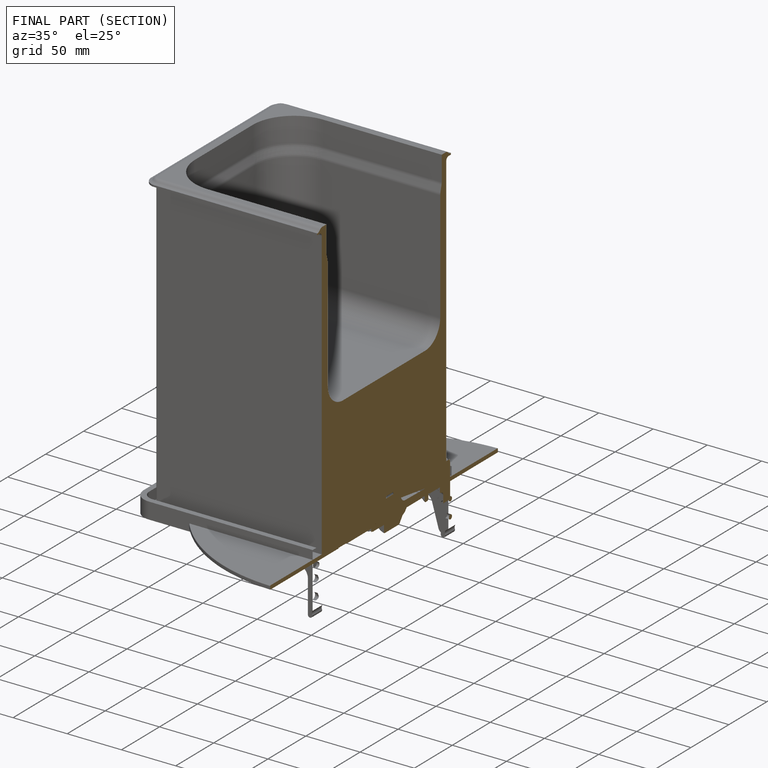
[diagram: finished part — half-section view (interior)]
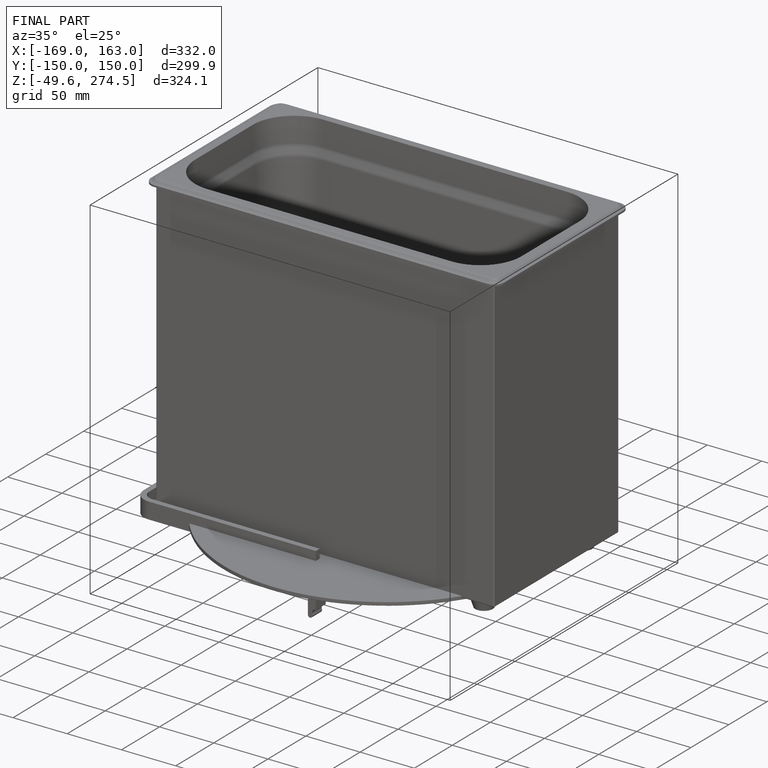
[diagram: finished part — iso view with bounding-box wireframe]
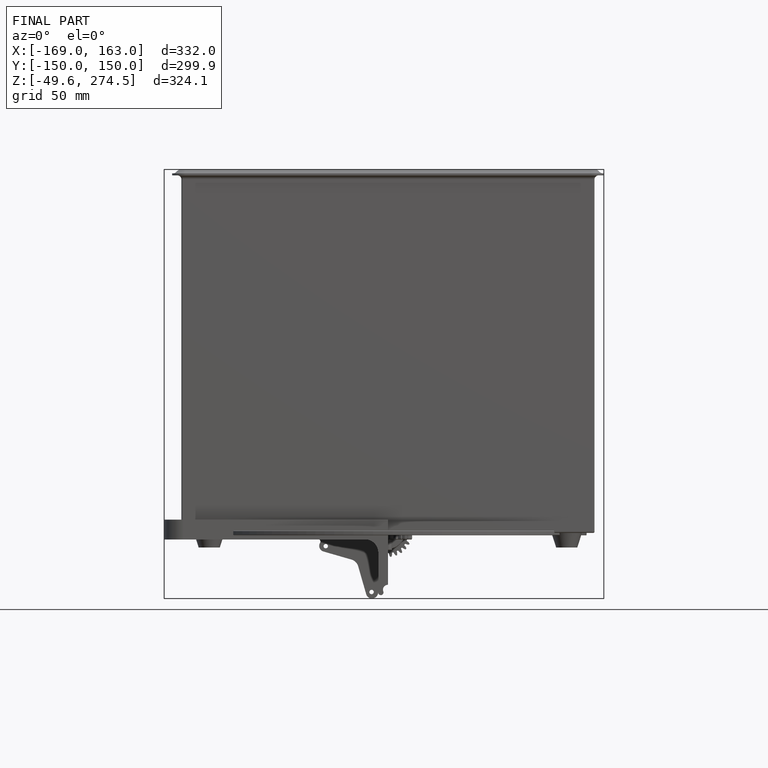
[diagram: finished part — front view with bounding-box wireframe]
